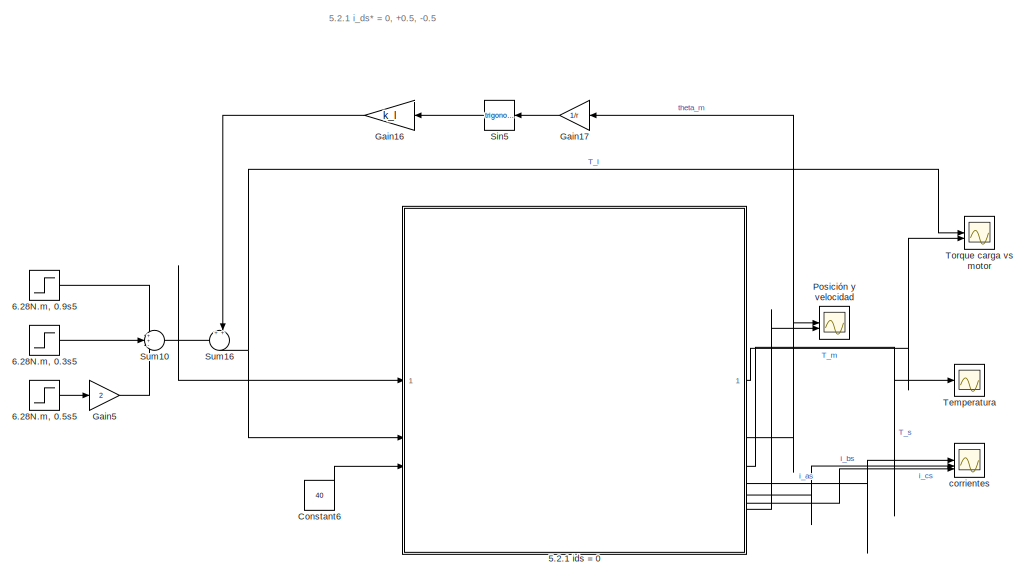
[diagram: root canvas - part 1/4, left side, full height]
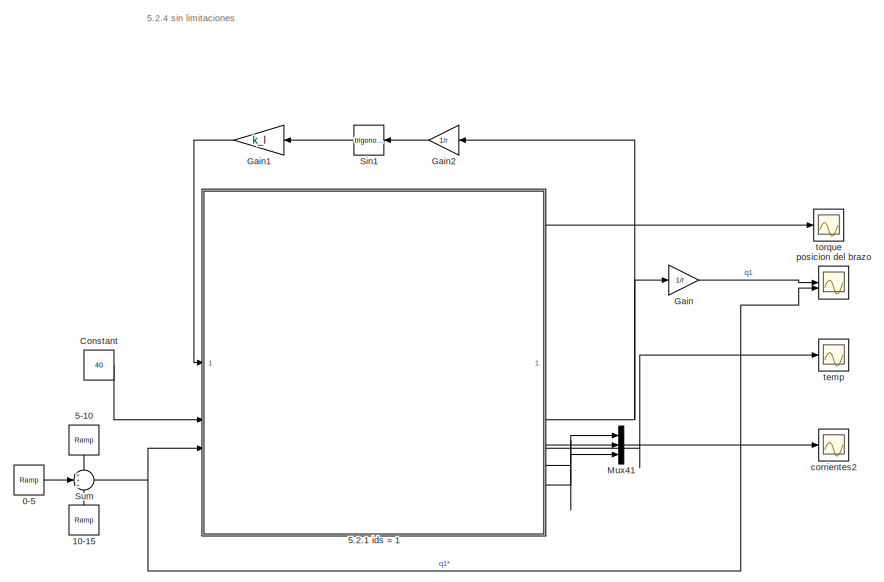
[diagram: root canvas - part 2/4, center side, full height]
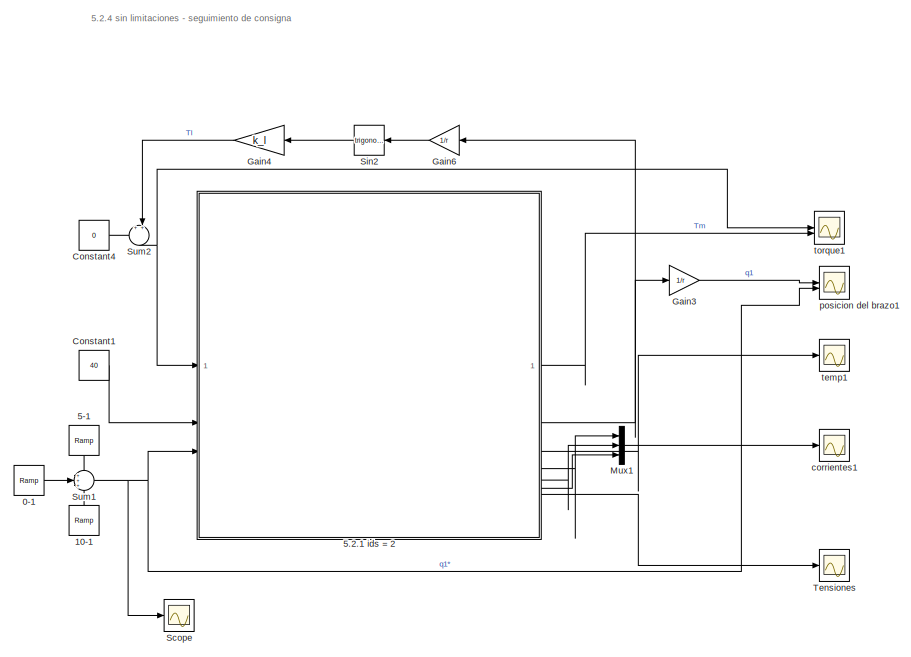
[diagram: root canvas - part 3/4, right side, full height]
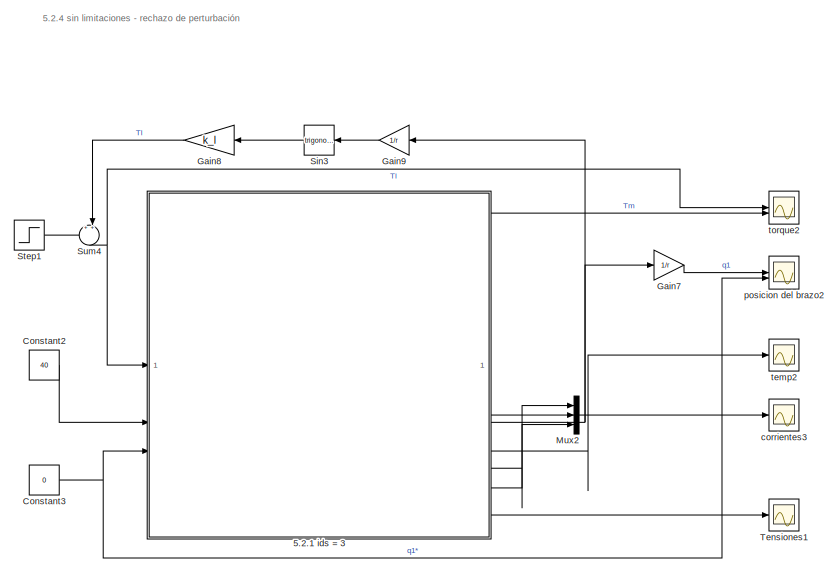
[diagram: root canvas - part 4/4, right side, full height]
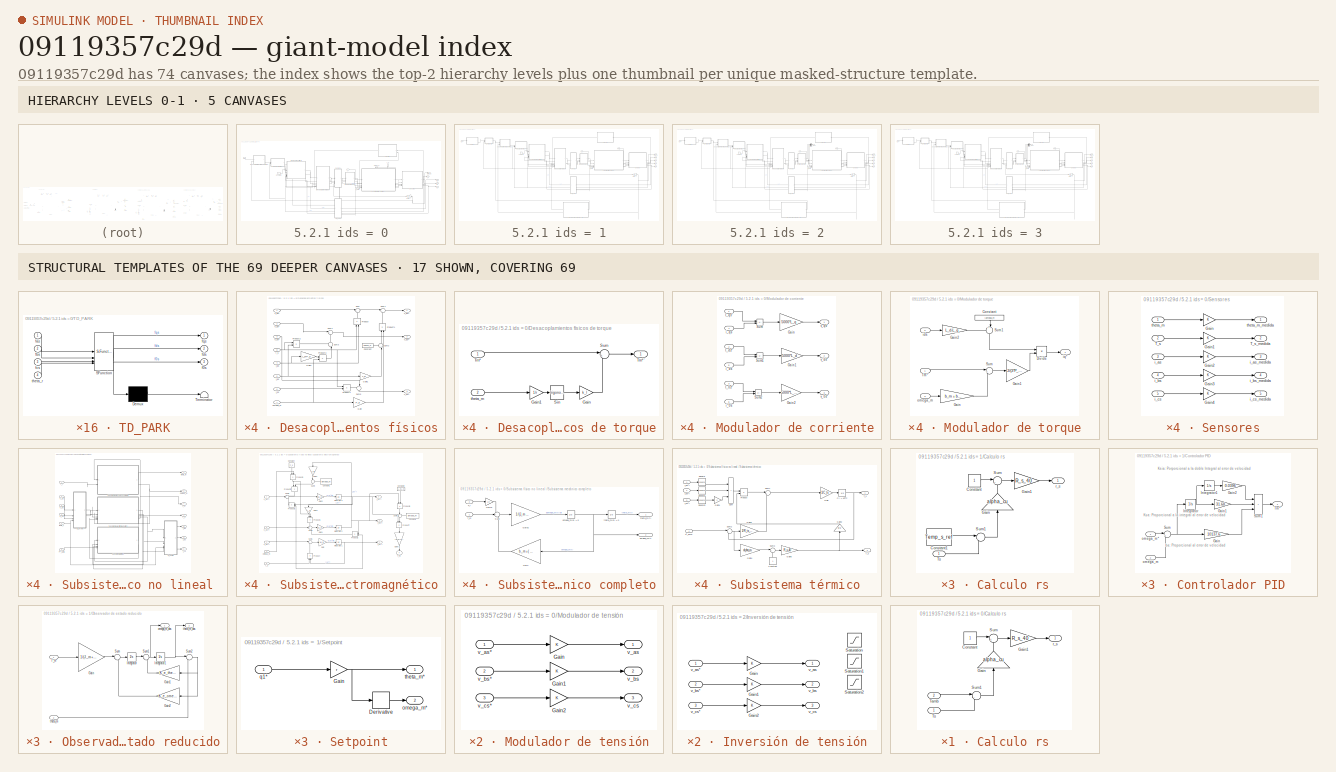
[diagram: thumbnail index - top-2 hierarchy levels (5 canvases) + 17 structural-template representatives of the remaining 69 canvases]
MODEL slx_09119357c29d
KIND model
CONFIG AbsTol = auto
CONFIG EnableMultiTasking = off
CONFIG FixedStep = auto
CONFIG InitFcn = parametros\n
CONFIG MaxStep = 1e-4
CONFIG MinStep = auto
CONFIG RelTol = 1e-3
CONFIG SampleTimeConstraint = Unconstrained
CONFIG SolverName = ode15s
CONFIG StartTime = 0.0
CONFIG StopTime = 15
BLOCK [Reference] 0-1  REF=simulink/Sources/Ramp
  Commented = on
  SourceBlock = simulink/Sources/Ramp
  SourceType = Ramp
BLOCK [Reference] 0-5  REF=simulink/Sources/Ramp
  Commented = on
  SourceBlock = simulink/Sources/Ramp
  SourceType = Ramp
BLOCK [Reference] 10-1  REF=simulink/Sources/Ramp
  Commented = on
  NameLocation = right
  SourceBlock = simulink/Sources/Ramp
  SourceType = Ramp
BLOCK [Reference] 10-15  REF=simulink/Sources/Ramp
  Commented = on
  NameLocation = right
  SourceBlock = simulink/Sources/Ramp
  SourceType = Ramp
BLOCK [Reference] 5-1  REF=simulink/Sources/Ramp
  Commented = on
  NameLocation = left
  SourceBlock = simulink/Sources/Ramp
  SourceType = Ramp
BLOCK [Reference] 5-10  REF=simulink/Sources/Ramp
  Commented = on
  NameLocation = left
  SourceBlock = simulink/Sources/Ramp
  SourceType = Ramp
BLOCK [SubSystem] 5.2.1 ids = 0
  Commented = on
BLOCK [SubSystem] 5.2.1 ids = 0/Calculo rs
  NameLocation = top
BLOCK [Constant] 5.2.1 ids = 0/Calculo rs/Constant
BLOCK [Gain] 5.2.1 ids = 0/Calculo rs/Gain
  Gain = alpha_cu
  NameLocation = right
BLOCK [Gain] 5.2.1 ids = 0/Calculo rs/Gain1
  Gain = R_s_40
BLOCK [Sum] 5.2.1 ids = 0/Calculo rs/Sum
  Inputs = |++
BLOCK [Sum] 5.2.1 ids = 0/Calculo rs/Sum1
  Inputs = |-+
BLOCK [Inport] 5.2.1 ids = 0/Calculo rs/Tamb
  Port = 2
BLOCK [Inport] 5.2.1 ids = 0/Calculo rs/Ts
BLOCK [Outport] 5.2.1 ids = 0/Calculo rs/r_s
BLOCK [Constant] 5.2.1 ids = 0/Constant5
  Value = 0
BLOCK [SubSystem] 5.2.1 ids = 0/Desacoplamientos físicos
BLOCK [SubSystem] 5.2.1 ids = 0/Desacoplamientos físicos de torque
BLOCK [Gain] 5.2.1 ids = 0/Desacoplamientos físicos de torque/Gain
  Gain = k_l
BLOCK [Gain] 5.2.1 ids = 0/Desacoplamientos físicos de torque/Gain1
  Gain = 1/r
BLOCK [Trigonometry] 5.2.1 ids = 0/Desacoplamientos físicos de torque/Sin
BLOCK [Sum] 5.2.1 ids = 0/Desacoplamientos físicos de torque/Sum
  Inputs = |++
BLOCK [Inport] 5.2.1 ids = 0/Desacoplamientos físicos de torque/Tm*
BLOCK [Outport] 5.2.1 ids = 0/Desacoplamientos físicos de torque/Tm*'
BLOCK [Inport] 5.2.1 ids = 0/Desacoplamientos físicos de torque/theta_m
  Port = 2
BLOCK [Constant] 5.2.1 ids = 0/Desacoplamientos físicos/Constant
  Value = lambda_m
BLOCK [Gain] 5.2.1 ids = 0/Desacoplamientos físicos/Gain
  Gain = P_p
BLOCK [Gain] 5.2.1 ids = 0/Desacoplamientos físicos/Gain1
  Gain = L_d
BLOCK [Gain] 5.2.1 ids = 0/Desacoplamientos físicos/Gain2
  Gain = L_q*P_p
BLOCK [Product] 5.2.1 ids = 0/Desacoplamientos físicos/Product
  NameLocation = right
BLOCK [Product] 5.2.1 ids = 0/Desacoplamientos físicos/Product1
  NameLocation = right
BLOCK [Product] 5.2.1 ids = 0/Desacoplamientos físicos/Product2
BLOCK [Product] 5.2.1 ids = 0/Desacoplamientos físicos/Product3
BLOCK [Product] 5.2.1 ids = 0/Desacoplamientos físicos/Product4
BLOCK [Sum] 5.2.1 ids = 0/Desacoplamientos físicos/Sum
  Inputs = |++
BLOCK [Sum] 5.2.1 ids = 0/Desacoplamientos físicos/Sum1
  Inputs = |++
BLOCK [Sum] 5.2.1 ids = 0/Desacoplamientos físicos/Sum2
  Inputs = ++|
  NameLocation = right
BLOCK [Sum] 5.2.1 ids = 0/Desacoplamientos físicos/Sum3
  Inputs = +-|
  NameLocation = right
BLOCK [Sum] 5.2.1 ids = 0/Desacoplamientos físicos/Sum4
  Inputs = |++
BLOCK [Sum] 5.2.1 ids = 0/Desacoplamientos físicos/Sum5
  Inputs = ++|
  NameLocation = left
BLOCK [Inport] 5.2.1 ids = 0/Desacoplamientos físicos/i_0s
  Port = 6
BLOCK [Inport] 5.2.1 ids = 0/Desacoplamientos físicos/i_ds
  Port = 5
BLOCK [Inport] 5.2.1 ids = 0/Desacoplamientos físicos/i_qs
  Port = 4
BLOCK [Inport] 5.2.1 ids = 0/Desacoplamientos físicos/omega_m
  Port = 7
BLOCK [Inport] 5.2.1 ids = 0/Desacoplamientos físicos/r_s
  Port = 8
BLOCK [Inport] 5.2.1 ids = 0/Desacoplamientos físicos/v_0s*
  Port = 3
BLOCK [Outport] 5.2.1 ids = 0/Desacoplamientos físicos/v_0s*'
  Port = 3
BLOCK [Inport] 5.2.1 ids = 0/Desacoplamientos físicos/v_ds*
  Port = 2
BLOCK [Outport] 5.2.1 ids = 0/Desacoplamientos físicos/v_ds*'
  Port = 2
BLOCK [Inport] 5.2.1 ids = 0/Desacoplamientos físicos/v_qs*
BLOCK [Outport] 5.2.1 ids = 0/Desacoplamientos físicos/v_qs*'
BLOCK [Gain] 5.2.1 ids = 0/Gain5
  Gain = P_p
  NameLocation = top
BLOCK [SubSystem] 5.2.1 ids = 0/Modulador de corriente
BLOCK [Gain] 5.2.1 ids = 0/Modulador de corriente/Gain
  Gain = 5000*L_q
BLOCK [Gain] 5.2.1 ids = 0/Modulador de corriente/Gain1
  Gain = 5000*L_d
BLOCK [Gain] 5.2.1 ids = 0/Modulador de corriente/Gain2
  Gain = 5000*L_ls
BLOCK [Inport] 5.2.1 ids = 0/Modulador de corriente/I_0s*
  Port = 3
BLOCK [Inport] 5.2.1 ids = 0/Modulador de corriente/I_ds*
  Port = 2
BLOCK [Inport] 5.2.1 ids = 0/Modulador de corriente/I_qs*
BLOCK [Sum] 5.2.1 ids = 0/Modulador de corriente/Sum
  IconShape = rectangular
  Inputs = +-
BLOCK [Sum] 5.2.1 ids = 0/Modulador de corriente/Sum1
  IconShape = rectangular
  Inputs = +-
BLOCK [Sum] 5.2.1 ids = 0/Modulador de corriente/Sum2
  IconShape = rectangular
  Inputs = +-
BLOCK [Inport] 5.2.1 ids = 0/Modulador de corriente/i_0s
  Port = 6
BLOCK [Inport] 5.2.1 ids = 0/Modulador de corriente/i_ds
  Port = 5
BLOCK [Inport] 5.2.1 ids = 0/Modulador de corriente/i_qs
  Port = 4
BLOCK [Outport] 5.2.1 ids = 0/Modulador de corriente/v_0s*
  Port = 3
BLOCK [Outport] 5.2.1 ids = 0/Modulador de corriente/v_ds*
  Port = 2
BLOCK [Outport] 5.2.1 ids = 0/Modulador de corriente/v_qs*
BLOCK [SubSystem] 5.2.1 ids = 0/Modulador de tensión
BLOCK [Gain] 5.2.1 ids = 0/Modulador de tensión/Gain
BLOCK [Gain] 5.2.1 ids = 0/Modulador de tensión/Gain1
BLOCK [Gain] 5.2.1 ids = 0/Modulador de tensión/Gain2
BLOCK [Outport] 5.2.1 ids = 0/Modulador de tensión/v_as
BLOCK [Inport] 5.2.1 ids = 0/Modulador de tensión/v_as*
BLOCK [Outport] 5.2.1 ids = 0/Modulador de tensión/v_bs
  Port = 2
BLOCK [Inport] 5.2.1 ids = 0/Modulador de tensión/v_bs*
  Port = 2
BLOCK [Outport] 5.2.1 ids = 0/Modulador de tensión/v_cs
  Port = 3
BLOCK [Inport] 5.2.1 ids = 0/Modulador de tensión/v_cs*
  Port = 3
BLOCK [SubSystem] 5.2.1 ids = 0/Modulador de torque
BLOCK [Constant] 5.2.1 ids = 0/Modulador de torque/Constant
  NameLocation = left
  Value = lambda_m
BLOCK [Product] 5.2.1 ids = 0/Modulador de torque/Divide
  Inputs = /*
BLOCK [Gain] 5.2.1 ids = 0/Modulador de torque/Gain
  Gain = b_m + b_l/r^2
BLOCK [Gain] 5.2.1 ids = 0/Modulador de torque/Gain1
  Gain = 2/(3*P_p)
BLOCK [Gain] 5.2.1 ids = 0/Modulador de torque/Gain2
  Gain = L_d-L_q
BLOCK [Sum] 5.2.1 ids = 0/Modulador de torque/Sum
  Inputs = |++
BLOCK [Sum] 5.2.1 ids = 0/Modulador de torque/Sum1
  Inputs = ++|
  NameLocation = right
BLOCK [Inport] 5.2.1 ids = 0/Modulador de torque/Tm*
BLOCK [Inport] 5.2.1 ids = 0/Modulador de torque/ids
  Port = 2
BLOCK [Outport] 5.2.1 ids = 0/Modulador de torque/iq*
BLOCK [Inport] 5.2.1 ids = 0/Modulador de torque/omega_m
  Port = 3
BLOCK [SubSystem] 5.2.1 ids = 0/Sensores
BLOCK [Gain] 5.2.1 ids = 0/Sensores/Gain
BLOCK [Gain] 5.2.1 ids = 0/Sensores/Gain1
BLOCK [Gain] 5.2.1 ids = 0/Sensores/Gain2
BLOCK [Gain] 5.2.1 ids = 0/Sensores/Gain3
BLOCK [Gain] 5.2.1 ids = 0/Sensores/Gain4
BLOCK [Inport] 5.2.1 ids = 0/Sensores/T_s
  Port = 2
BLOCK [Outport] 5.2.1 ids = 0/Sensores/T_s_medida
  Port = 2
BLOCK [Inport] 5.2.1 ids = 0/Sensores/i_as
  Port = 3
BLOCK [Outport] 5.2.1 ids = 0/Sensores/i_as_medida
  Port = 3
BLOCK [Inport] 5.2.1 ids = 0/Sensores/i_bs
  Port = 4
BLOCK [Outport] 5.2.1 ids = 0/Sensores/i_bs_medida
  Port = 4
BLOCK [Inport] 5.2.1 ids = 0/Sensores/i_cs
  Port = 5
BLOCK [Outport] 5.2.1 ids = 0/Sensores/i_cs_medida
  Port = 5
BLOCK [Inport] 5.2.1 ids = 0/Sensores/theta_m
BLOCK [Outport] 5.2.1 ids = 0/Sensores/theta_m_medida
BLOCK [SubSystem] 5.2.1 ids = 0/Subsistema físico no lineal 
  PortSchema = {"entries":[{"content":{"sides":[{"content":{"connectorIds":["In1","In2","In3","In4","In5","In6"]},"type":"ConnectorPlacement.EquallySpacedRectSide","uuid":"df16c937-5b0d-437b-9581-4e7e4443d731"},{"content":{"connectorIds":["Out1","Out2","Out3","Out4","Out5"],"side":"RIGHT"},"type":"ConnectorPlacement.EquallySpacedRectSide","uuid":"58799b56-1bb2-4861-ad63-3fa3f8181ad5"},{"content":{"connectorIds":...<+311ch>  <repeated x4 — deduplicated; at blocks: Subsistema físico no lineal>
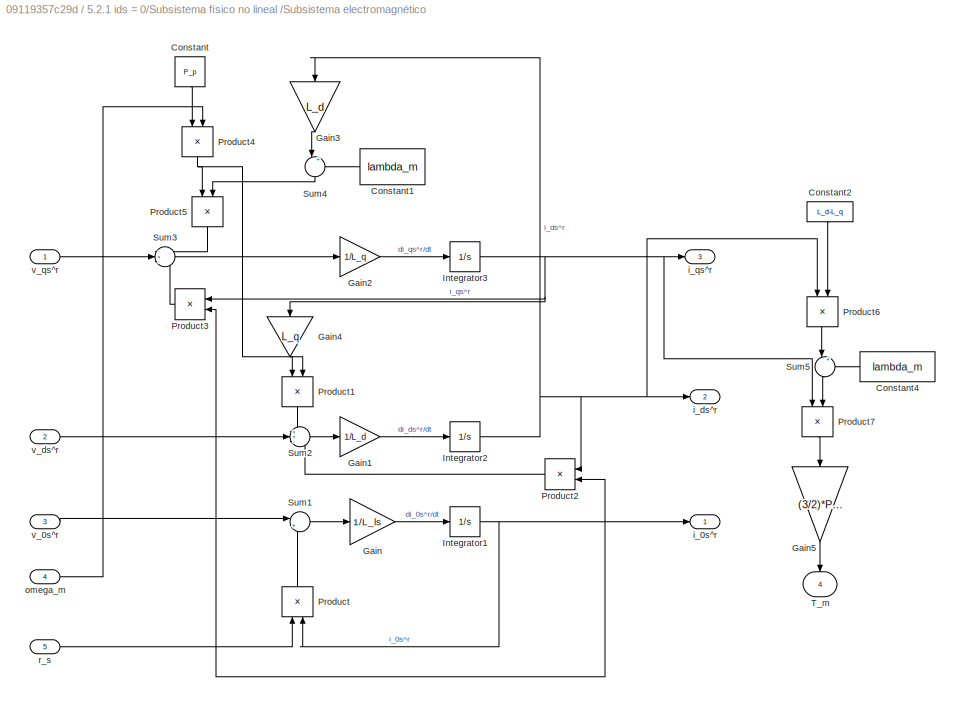
BLOCK [SubSystem] 5.2.1 ids = 0/Subsistema físico no lineal /Subsistema electromagnético
BLOCK [Constant] 5.2.1 ids = 0/Subsistema físico no lineal /Subsistema electromagnético/Constant
  NameLocation = left
  Value = P_p
BLOCK [Constant] 5.2.1 ids = 0/Subsistema físico no lineal /Subsistema electromagnético/Constant1
  NameLocation = top
  Value = lambda_m
BLOCK [Constant] 5.2.1 ids = 0/Subsistema físico no lineal /Subsistema electromagnético/Constant2
  NameLocation = left
  Value = L_d-L_q
BLOCK [Constant] 5.2.1 ids = 0/Subsistema físico no lineal /Subsistema electromagnético/Constant4
  NameLocation = top
  Value = lambda_m
BLOCK [Gain] 5.2.1 ids = 0/Subsistema físico no lineal /Subsistema electromagnético/Gain
  Gain = 1/L_ls
BLOCK [Gain] 5.2.1 ids = 0/Subsistema físico no lineal /Subsistema electromagnético/Gain1
  Gain = 1/L_d
BLOCK [Gain] 5.2.1 ids = 0/Subsistema físico no lineal /Subsistema electromagnético/Gain2
  Gain = 1/L_q
BLOCK [Gain] 5.2.1 ids = 0/Subsistema físico no lineal /Subsistema electromagnético/Gain3
  Gain = L_d
  NameLocation = left
BLOCK [Gain] 5.2.1 ids = 0/Subsistema físico no lineal /Subsistema electromagnético/Gain4
  Gain = L_q
  NameLocation = left
BLOCK [Gain] 5.2.1 ids = 0/Subsistema físico no lineal /Subsistema electromagnético/Gain5
  Gain = (3/2)*P_p
  NameLocation = left
BLOCK [Integrator] 5.2.1 ids = 0/Subsistema físico no lineal /Subsistema electromagnético/Integrator1
BLOCK [Integrator] 5.2.1 ids = 0/Subsistema físico no lineal /Subsistema electromagnético/Integrator2
BLOCK [Integrator] 5.2.1 ids = 0/Subsistema físico no lineal /Subsistema electromagnético/Integrator3
BLOCK [Product] 5.2.1 ids = 0/Subsistema físico no lineal /Subsistema electromagnético/Product
  NameLocation = right
BLOCK [Product] 5.2.1 ids = 0/Subsistema físico no lineal /Subsistema electromagnético/Product1
  NameLocation = left
BLOCK [Product] 5.2.1 ids = 0/Subsistema físico no lineal /Subsistema electromagnético/Product2
  NameLocation = top
BLOCK [Product] 5.2.1 ids = 0/Subsistema físico no lineal /Subsistema electromagnético/Product3
  NameLocation = top
BLOCK [Product] 5.2.1 ids = 0/Subsistema físico no lineal /Subsistema electromagnético/Product4
  NameLocation = left
BLOCK [Product] 5.2.1 ids = 0/Subsistema físico no lineal /Subsistema electromagnético/Product5
  NameLocation = left
BLOCK [Product] 5.2.1 ids = 0/Subsistema físico no lineal /Subsistema electromagnético/Product6
  NameLocation = left
BLOCK [Product] 5.2.1 ids = 0/Subsistema físico no lineal /Subsistema electromagnético/Product7
  NameLocation = left
BLOCK [Sum] 5.2.1 ids = 0/Subsistema físico no lineal /Subsistema electromagnético/Sum1
  Inputs = |+-
BLOCK [Sum] 5.2.1 ids = 0/Subsistema físico no lineal /Subsistema electromagnético/Sum2
  Inputs = ++-
BLOCK [Sum] 5.2.1 ids = 0/Subsistema físico no lineal /Subsistema electromagnético/Sum3
  Inputs = -+-
BLOCK [Sum] 5.2.1 ids = 0/Subsistema físico no lineal /Subsistema electromagnético/Sum4
  Inputs = |++
  NameLocation = left
BLOCK [Sum] 5.2.1 ids = 0/Subsistema físico no lineal /Subsistema electromagnético/Sum5
  Inputs = |++
  NameLocation = left
BLOCK [Outport] 5.2.1 ids = 0/Subsistema físico no lineal /Subsistema electromagnético/T_m
  NameLocation = left
  Port = 4
BLOCK [Outport] 5.2.1 ids = 0/Subsistema físico no lineal /Subsistema electromagnético/i_0s^r
BLOCK [Outport] 5.2.1 ids = 0/Subsistema físico no lineal /Subsistema electromagnético/i_ds^r
  Port = 2
BLOCK [Outport] 5.2.1 ids = 0/Subsistema físico no lineal /Subsistema electromagnético/i_qs^r
  Port = 3
BLOCK [Inport] 5.2.1 ids = 0/Subsistema físico no lineal /Subsistema electromagnético/omega_m
  Port = 4
BLOCK [Inport] 5.2.1 ids = 0/Subsistema físico no lineal /Subsistema electromagnético/r_s
  Port = 5
BLOCK [Inport] 5.2.1 ids = 0/Subsistema físico no lineal /Subsistema electromagnético/v_0s^r
  Port = 3
BLOCK [Inport] 5.2.1 ids = 0/Subsistema físico no lineal /Subsistema electromagnético/v_ds^r
  Port = 2
BLOCK [Inport] 5.2.1 ids = 0/Subsistema físico no lineal /Subsistema electromagnético/v_qs^r
BLOCK [SubSystem] 5.2.1 ids = 0/Subsistema físico no lineal /Subsistema mecánico completo
BLOCK [Gain] 5.2.1 ids = 0/Subsistema físico no lineal /Subsistema mecánico completo/Gain
  Gain = b_m +( b_l / (r^2))
  NameLocation = top
BLOCK [Gain] 5.2.1 ids = 0/Subsistema físico no lineal /Subsistema mecánico completo/Gain1
  Gain = 1/r
BLOCK [Gain] 5.2.1 ids = 0/Subsistema físico no lineal /Subsistema mecánico completo/Gain2
  Gain = 1/(J_m + J_l / (r^2))
BLOCK [Sum] 5.2.1 ids = 0/Subsistema físico no lineal /Subsistema mecánico completo/Sum
  Inputs = -+-
BLOCK [Inport] 5.2.1 ids = 0/Subsistema físico no lineal /Subsistema mecánico completo/T_l
  Port = 2
BLOCK [Inport] 5.2.1 ids = 0/Subsistema físico no lineal /Subsistema mecánico completo/T_m
BLOCK [Integrator] 5.2.1 ids = 0/Subsistema físico no lineal /Subsistema mecánico completo/omega_m(0) = 0
BLOCK [Outport] 5.2.1 ids = 0/Subsistema físico no lineal /Subsistema mecánico completo/omega_m(t)
  Port = 2
BLOCK [Integrator] 5.2.1 ids = 0/Subsistema físico no lineal /Subsistema mecánico completo/theta_m(0) = 0
BLOCK [Outport] 5.2.1 ids = 0/Subsistema físico no lineal /Subsistema mecánico completo/theta_m(t)
BLOCK [SubSystem] 5.2.1 ids = 0/Subsistema físico no lineal /Subsistema térmico
BLOCK [Integrator] 5.2.1 ids = 0/Subsistema físico no lineal /Subsistema térmico/CI = 40ºC
  InitialCondition = 40
BLOCK [Constant] 5.2.1 ids = 0/Subsistema físico no lineal /Subsistema térmico/Constant
  NameLocation = right
BLOCK [Gain] 5.2.1 ids = 0/Subsistema físico no lineal /Subsistema térmico/Gain
  Gain = 1/C_ts
BLOCK [Gain] 5.2.1 ids = 0/Subsistema físico no lineal /Subsistema térmico/Gain1
  Gain = 2
BLOCK [Gain] 5.2.1 ids = 0/Subsistema físico no lineal /Subsistema térmico/Gain2
  Gain = 3/2
  NameLocation = right
BLOCK [Gain] 5.2.1 ids = 0/Subsistema físico no lineal /Subsistema térmico/Gain3
  Gain = 1/R_ts_amb
BLOCK [Gain] 5.2.1 ids = 0/Subsistema físico no lineal /Subsistema térmico/Gain4
  Gain = alpha_cu
BLOCK [Gain] 5.2.1 ids = 0/Subsistema físico no lineal /Subsistema térmico/Gain5
  Gain = R_s_40
BLOCK [Product] 5.2.1 ids = 0/Subsistema físico no lineal /Subsistema térmico/Product
BLOCK [Math] 5.2.1 ids = 0/Subsistema físico no lineal /Subsistema térmico/Square
  Operator = square
BLOCK [Math] 5.2.1 ids = 0/Subsistema físico no lineal /Subsistema térmico/Square1
  Operator = square
BLOCK [Math] 5.2.1 ids = 0/Subsistema físico no lineal /Subsistema térmico/Square2
  Operator = square
BLOCK [Sum] 5.2.1 ids = 0/Subsistema físico no lineal /Subsistema térmico/Sum
  IconShape = rectangular
  Inputs = +++
BLOCK [Sum] 5.2.1 ids = 0/Subsistema físico no lineal /Subsistema térmico/Sum1
  Inputs = |+-
BLOCK [Sum] 5.2.1 ids = 0/Subsistema físico no lineal /Subsistema térmico/Sum2
  Inputs = |-+
BLOCK [Sum] 5.2.1 ids = 0/Subsistema físico no lineal /Subsistema térmico/Sum3
  Inputs = |++
BLOCK [Outport] 5.2.1 ids = 0/Subsistema físico no lineal /Subsistema térmico/T_s
BLOCK [Inport] 5.2.1 ids = 0/Subsistema físico no lineal /Subsistema térmico/Tº_amb
  Port = 4
BLOCK [Inport] 5.2.1 ids = 0/Subsistema físico no lineal /Subsistema térmico/i_0s^r
  Port = 3
BLOCK [Inport] 5.2.1 ids = 0/Subsistema físico no lineal /Subsistema térmico/i_ds^r
  Port = 2
BLOCK [Inport] 5.2.1 ids = 0/Subsistema físico no lineal /Subsistema térmico/i_qs^r
BLOCK [Outport] 5.2.1 ids = 0/Subsistema físico no lineal /Subsistema térmico/r_s
  Port = 2
BLOCK [SubSystem] 5.2.1 ids = 0/Subsistema físico no lineal /TD_PARK
  ErrorFcn = Stateflow.Translate.translate
  LibrarySourceBlock = simulink/User-Defined\nFunctions/MATLAB Function
  PermitHierarchicalResolution = ExplicitOnly
  SFBlockType = MATLAB Function
  TreatAsAtomicUnit = on
BLOCK [Demux] 5.2.1 ids = 0/Subsistema físico no lineal /TD_PARK/ Demux 
  Outputs = 1
BLOCK [S-Function] 5.2.1 ids = 0/Subsistema físico no lineal /TD_PARK/ SFunction 
  EnableBusSupport = on
  FunctionName = sf_sfun
  PortCounts = [4 4]
  SFcnIsStateOwnerBlock = off
  SFunctionDeploymentMode = off
  Tag = Stateflow S-Function 1
BLOCK [Terminator] 5.2.1 ids = 0/Subsistema físico no lineal /TD_PARK/ Terminator 
BLOCK [Outport] 5.2.1 ids = 0/Subsistema físico no lineal /TD_PARK/f0s
  Port = 3
BLOCK [Inport] 5.2.1 ids = 0/Subsistema físico no lineal /TD_PARK/fas
BLOCK [Inport] 5.2.1 ids = 0/Subsistema físico no lineal /TD_PARK/fbs
  Port = 2
BLOCK [Inport] 5.2.1 ids = 0/Subsistema físico no lineal /TD_PARK/fcs
  Port = 3
BLOCK [Outport] 5.2.1 ids = 0/Subsistema físico no lineal /TD_PARK/fds
  Port = 2
BLOCK [Outport] 5.2.1 ids = 0/Subsistema físico no lineal /TD_PARK/fqs
BLOCK [Inport] 5.2.1 ids = 0/Subsistema físico no lineal /TD_PARK/theta_r
  Port = 4
BLOCK [SubSystem] 5.2.1 ids = 0/Subsistema físico no lineal /TI_PARK
  ErrorFcn = Stateflow.Translate.translate
  LibrarySourceBlock = simulink/User-Defined\nFunctions/MATLAB Function
  PermitHierarchicalResolution = ExplicitOnly
  SFBlockType = MATLAB Function
  TreatAsAtomicUnit = on
BLOCK [Demux] 5.2.1 ids = 0/Subsistema físico no lineal /TI_PARK/ Demux 
  Outputs = 1
BLOCK [S-Function] 5.2.1 ids = 0/Subsistema físico no lineal /TI_PARK/ SFunction 
  EnableBusSupport = on
  FunctionName = sf_sfun
  PortCounts = [4 4]
  SFcnIsStateOwnerBlock = off
  SFunctionDeploymentMode = off
  Tag = Stateflow S-Function 2
BLOCK [Terminator] 5.2.1 ids = 0/Subsistema físico no lineal /TI_PARK/ Terminator 
BLOCK [Inport] 5.2.1 ids = 0/Subsistema físico no lineal /TI_PARK/f0s
  Port = 3
BLOCK [Outport] 5.2.1 ids = 0/Subsistema físico no lineal /TI_PARK/fas
BLOCK [Outport] 5.2.1 ids = 0/Subsistema físico no lineal /TI_PARK/fbs
  Port = 2
BLOCK [Outport] 5.2.1 ids = 0/Subsistema físico no lineal /TI_PARK/fcs
  Port = 3
BLOCK [Inport] 5.2.1 ids = 0/Subsistema físico no lineal /TI_PARK/fds
  Port = 2
BLOCK [Inport] 5.2.1 ids = 0/Subsistema físico no lineal /TI_PARK/fqs
BLOCK [Inport] 5.2.1 ids = 0/Subsistema físico no lineal /TI_PARK/theta_r
  Port = 4
BLOCK [Inport] 5.2.1 ids = 0/Subsistema físico no lineal /T_l
BLOCK [Outport] 5.2.1 ids = 0/Subsistema físico no lineal /T_m
  NameLocation = top
  Port = 7
BLOCK [Outport] 5.2.1 ids = 0/Subsistema físico no lineal /T_s
  NameLocation = top
  Port = 2
BLOCK [Inport] 5.2.1 ids = 0/Subsistema físico no lineal /Tº_amb
  Port = 6
BLOCK [Outport] 5.2.1 ids = 0/Subsistema físico no lineal /i_as
  Port = 3
BLOCK [Outport] 5.2.1 ids = 0/Subsistema físico no lineal /i_bs
  Port = 4
BLOCK [Outport] 5.2.1 ids = 0/Subsistema físico no lineal /i_cs
  Port = 5
BLOCK [Outport] 5.2.1 ids = 0/Subsistema físico no lineal /omega_m
  Port = 6
BLOCK [Outport] 5.2.1 ids = 0/Subsistema físico no lineal /theta_m
BLOCK [Inport] 5.2.1 ids = 0/Subsistema físico no lineal /theta_r
  Port = 5
BLOCK [Inport] 5.2.1 ids = 0/Subsistema físico no lineal /v_as
  Port = 2
BLOCK [Inport] 5.2.1 ids = 0/Subsistema físico no lineal /v_bs
  Port = 3
BLOCK [Inport] 5.2.1 ids = 0/Subsistema físico no lineal /v_cs
  Port = 4
BLOCK [SubSystem] 5.2.1 ids = 0/TD_PARK
  ErrorFcn = Stateflow.Translate.translate
  LibrarySourceBlock = simulink/User-Defined\nFunctions/MATLAB Function
  PermitHierarchicalResolution = ExplicitOnly
  SFBlockType = MATLAB Function
  TreatAsAtomicUnit = on
BLOCK [Demux] 5.2.1 ids = 0/TD_PARK/ Demux 
  Outputs = 1
BLOCK [S-Function] 5.2.1 ids = 0/TD_PARK/ SFunction 
  EnableBusSupport = on
  FunctionName = sf_sfun
  PortCounts = [4 4]
  SFcnIsStateOwnerBlock = off
  SFunctionDeploymentMode = off
  Tag = Stateflow S-Function 38
BLOCK [Terminator] 5.2.1 ids = 0/TD_PARK/ Terminator 
BLOCK [Outport] 5.2.1 ids = 0/TD_PARK/f0s
  Port = 3
BLOCK [Inport] 5.2.1 ids = 0/TD_PARK/fas
BLOCK [Inport] 5.2.1 ids = 0/TD_PARK/fbs
  Port = 2
BLOCK [Inport] 5.2.1 ids = 0/TD_PARK/fcs
  Port = 3
BLOCK [Outport] 5.2.1 ids = 0/TD_PARK/fds
  Port = 2
BLOCK [Outport] 5.2.1 ids = 0/TD_PARK/fqs
BLOCK [Inport] 5.2.1 ids = 0/TD_PARK/theta_r
  Port = 4
BLOCK [SubSystem] 5.2.1 ids = 0/TI_PARK1
  ErrorFcn = Stateflow.Translate.translate
  LibrarySourceBlock = simulink/User-Defined\nFunctions/MATLAB Function
  PermitHierarchicalResolution = ExplicitOnly
  SFBlockType = MATLAB Function
  TreatAsAtomicUnit = on
BLOCK [Demux] 5.2.1 ids = 0/TI_PARK1/ Demux 
  Outputs = 1
BLOCK [S-Function] 5.2.1 ids = 0/TI_PARK1/ SFunction 
  EnableBusSupport = on
  FunctionName = sf_sfun
  PortCounts = [4 4]
  SFcnIsStateOwnerBlock = off
  SFunctionDeploymentMode = off
  Tag = Stateflow S-Function 37
BLOCK [Terminator] 5.2.1 ids = 0/TI_PARK1/ Terminator 
BLOCK [Inport] 5.2.1 ids = 0/TI_PARK1/f0s
  Port = 3
BLOCK [Outport] 5.2.1 ids = 0/TI_PARK1/fas
BLOCK [Outport] 5.2.1 ids = 0/TI_PARK1/fbs
  Port = 2
BLOCK [Outport] 5.2.1 ids = 0/TI_PARK1/fcs
  Port = 3
BLOCK [Inport] 5.2.1 ids = 0/TI_PARK1/fds
  Port = 2
BLOCK [Inport] 5.2.1 ids = 0/TI_PARK1/fqs
BLOCK [Inport] 5.2.1 ids = 0/TI_PARK1/theta_r
  Port = 4
BLOCK [Inport] 5.2.1 ids = 0/T_l
  Port = 2
BLOCK [Outport] 5.2.1 ids = 0/T_m
  NameLocation = right
BLOCK [Outport] 5.2.1 ids = 0/T_s
  Port = 3
BLOCK [Inport] 5.2.1 ids = 0/Tm*
BLOCK [Inport] 5.2.1 ids = 0/Tº_amb
  Port = 3
BLOCK [Outport] 5.2.1 ids = 0/fas
  Port = 4
BLOCK [Outport] 5.2.1 ids = 0/fbs
  Port = 5
BLOCK [Outport] 5.2.1 ids = 0/fcs
  Port = 6
BLOCK [Outport] 5.2.1 ids = 0/omega_m
  Port = 7
BLOCK [Outport] 5.2.1 ids = 0/theta_m 
  Port = 2
BLOCK [SubSystem] 5.2.1 ids = 1
  Commented = on
BLOCK [SubSystem] 5.2.1 ids = 1/Calculo rs
  NameLocation = top
BLOCK [Constant] 5.2.1 ids = 1/Calculo rs/Constant
BLOCK [Constant] 5.2.1 ids = 1/Calculo rs/Constant1
  Value = Temp_s_ref
BLOCK [Gain] 5.2.1 ids = 1/Calculo rs/Gain
  Gain = alpha_cu
  NameLocation = right
BLOCK [Gain] 5.2.1 ids = 1/Calculo rs/Gain1
  Gain = R_s_40
BLOCK [Sum] 5.2.1 ids = 1/Calculo rs/Sum
  Inputs = |++
BLOCK [Sum] 5.2.1 ids = 1/Calculo rs/Sum1
  Inputs = |-+
BLOCK [Inport] 5.2.1 ids = 1/Calculo rs/Ts
BLOCK [Outport] 5.2.1 ids = 1/Calculo rs/r_s
BLOCK [Constant] 5.2.1 ids = 1/Constant5
  Value = 0
BLOCK [SubSystem] 5.2.1 ids = 1/Controlador PID
BLOCK [Gain] 5.2.1 ids = 1/Controlador PID/Gain
  Gain = 10137.6
BLOCK [Gain] 5.2.1 ids = 1/Controlador PID/Gain1
  Gain = 31.68
BLOCK [Gain] 5.2.1 ids = 1/Controlador PID/Gain2
  Gain = 0.0396
BLOCK [Integrator] 5.2.1 ids = 1/Controlador PID/Integrator
BLOCK [Integrator] 5.2.1 ids = 1/Controlador PID/Integrator1
BLOCK [Sum] 5.2.1 ids = 1/Controlador PID/Sum
  Inputs = |+-
BLOCK [Sum] 5.2.1 ids = 1/Controlador PID/Sum1
  IconShape = rectangular
  Inputs = +++
BLOCK [Outport] 5.2.1 ids = 1/Controlador PID/Tm*
BLOCK [Inport] 5.2.1 ids = 1/Controlador PID/omega_m
  Port = 2
BLOCK [Inport] 5.2.1 ids = 1/Controlador PID/omega_m*
BLOCK [SubSystem] 5.2.1 ids = 1/Desacoplamientos físicos
BLOCK [SubSystem] 5.2.1 ids = 1/Desacoplamientos físicos de torque
BLOCK [Gain] 5.2.1 ids = 1/Desacoplamientos físicos de torque/Gain
  Gain = k_l
BLOCK [Gain] 5.2.1 ids = 1/Desacoplamientos físicos de torque/Gain1
  Gain = 1/r
BLOCK [Trigonometry] 5.2.1 ids = 1/Desacoplamientos físicos de torque/Sin
BLOCK [Sum] 5.2.1 ids = 1/Desacoplamientos físicos de torque/Sum
  Inputs = |++
BLOCK [Inport] 5.2.1 ids = 1/Desacoplamientos físicos de torque/Tm*
BLOCK [Outport] 5.2.1 ids = 1/Desacoplamientos físicos de torque/Tm*'
BLOCK [Inport] 5.2.1 ids = 1/Desacoplamientos físicos de torque/theta_m
  Port = 2
BLOCK [Constant] 5.2.1 ids = 1/Desacoplamientos físicos/Constant
  Value = lambda_m
BLOCK [Gain] 5.2.1 ids = 1/Desacoplamientos físicos/Gain
  Gain = P_p
BLOCK [Gain] 5.2.1 ids = 1/Desacoplamientos físicos/Gain1
  Gain = L_d
BLOCK [Gain] 5.2.1 ids = 1/Desacoplamientos físicos/Gain2
  Gain = L_q*P_p
BLOCK [Product] 5.2.1 ids = 1/Desacoplamientos físicos/Product
  NameLocation = right
BLOCK [Product] 5.2.1 ids = 1/Desacoplamientos físicos/Product1
  NameLocation = right
BLOCK [Product] 5.2.1 ids = 1/Desacoplamientos físicos/Product2
BLOCK [Product] 5.2.1 ids = 1/Desacoplamientos físicos/Product3
BLOCK [Product] 5.2.1 ids = 1/Desacoplamientos físicos/Product4
BLOCK [Sum] 5.2.1 ids = 1/Desacoplamientos físicos/Sum
  Inputs = |++
BLOCK [Sum] 5.2.1 ids = 1/Desacoplamientos físicos/Sum1
  Inputs = |++
BLOCK [Sum] 5.2.1 ids = 1/Desacoplamientos físicos/Sum2
  Inputs = ++|
  NameLocation = right
BLOCK [Sum] 5.2.1 ids = 1/Desacoplamientos físicos/Sum3
  Inputs = +-|
  NameLocation = right
BLOCK [Sum] 5.2.1 ids = 1/Desacoplamientos físicos/Sum4
  Inputs = |++
BLOCK [Sum] 5.2.1 ids = 1/Desacoplamientos físicos/Sum5
  Inputs = ++|
  NameLocation = left
BLOCK [Inport] 5.2.1 ids = 1/Desacoplamientos físicos/i_0s
  Port = 6
BLOCK [Inport] 5.2.1 ids = 1/Desacoplamientos físicos/i_ds
  Port = 5
BLOCK [Inport] 5.2.1 ids = 1/Desacoplamientos físicos/i_qs
  Port = 4
BLOCK [Inport] 5.2.1 ids = 1/Desacoplamientos físicos/omega_m
  Port = 7
BLOCK [Inport] 5.2.1 ids = 1/Desacoplamientos físicos/r_s
  Port = 8
BLOCK [Inport] 5.2.1 ids = 1/Desacoplamientos físicos/v_0s*
  Port = 3
BLOCK [Outport] 5.2.1 ids = 1/Desacoplamientos físicos/v_0s*'
  Port = 3
BLOCK [Inport] 5.2.1 ids = 1/Desacoplamientos físicos/v_ds*
  Port = 2
BLOCK [Outport] 5.2.1 ids = 1/Desacoplamientos físicos/v_ds*'
  Port = 2
BLOCK [Inport] 5.2.1 ids = 1/Desacoplamientos físicos/v_qs*
BLOCK [Outport] 5.2.1 ids = 1/Desacoplamientos físicos/v_qs*'
BLOCK [Gain] 5.2.1 ids = 1/Gain5
  Gain = P_p
  NameLocation = top
BLOCK [SubSystem] 5.2.1 ids = 1/Modulador de corriente
BLOCK [Gain] 5.2.1 ids = 1/Modulador de corriente/Gain
  Gain = 5000*L_q
BLOCK [Gain] 5.2.1 ids = 1/Modulador de corriente/Gain1
  Gain = 5000*L_d
BLOCK [Gain] 5.2.1 ids = 1/Modulador de corriente/Gain2
  Gain = 5000*L_ls
BLOCK [Inport] 5.2.1 ids = 1/Modulador de corriente/I_0s*
  Port = 3
BLOCK [Inport] 5.2.1 ids = 1/Modulador de corriente/I_ds*
  Port = 2
BLOCK [Inport] 5.2.1 ids = 1/Modulador de corriente/I_qs*
BLOCK [Sum] 5.2.1 ids = 1/Modulador de corriente/Sum
  IconShape = rectangular
  Inputs = +-
BLOCK [Sum] 5.2.1 ids = 1/Modulador de corriente/Sum1
  IconShape = rectangular
  Inputs = +-
BLOCK [Sum] 5.2.1 ids = 1/Modulador de corriente/Sum2
  IconShape = rectangular
  Inputs = +-
BLOCK [Inport] 5.2.1 ids = 1/Modulador de corriente/i_0s
  Port = 6
BLOCK [Inport] 5.2.1 ids = 1/Modulador de corriente/i_ds
  Port = 5
BLOCK [Inport] 5.2.1 ids = 1/Modulador de corriente/i_qs
  Port = 4
BLOCK [Outport] 5.2.1 ids = 1/Modulador de corriente/v_0s*
  Port = 3
BLOCK [Outport] 5.2.1 ids = 1/Modulador de corriente/v_ds*
  Port = 2
BLOCK [Outport] 5.2.1 ids = 1/Modulador de corriente/v_qs*
BLOCK [SubSystem] 5.2.1 ids = 1/Modulador de tensión
BLOCK [Gain] 5.2.1 ids = 1/Modulador de tensión/Gain
BLOCK [Gain] 5.2.1 ids = 1/Modulador de tensión/Gain1
BLOCK [Gain] 5.2.1 ids = 1/Modulador de tensión/Gain2
BLOCK [Outport] 5.2.1 ids = 1/Modulador de tensión/v_as
BLOCK [Inport] 5.2.1 ids = 1/Modulador de tensión/v_as*
BLOCK [Outport] 5.2.1 ids = 1/Modulador de tensión/v_bs
  Port = 2
BLOCK [Inport] 5.2.1 ids = 1/Modulador de tensión/v_bs*
  Port = 2
BLOCK [Outport] 5.2.1 ids = 1/Modulador de tensión/v_cs
  Port = 3
BLOCK [Inport] 5.2.1 ids = 1/Modulador de tensión/v_cs*
  Port = 3
BLOCK [SubSystem] 5.2.1 ids = 1/Modulador de torque
BLOCK [Constant] 5.2.1 ids = 1/Modulador de torque/Constant
  NameLocation = left
  Value = lambda_m
BLOCK [Product] 5.2.1 ids = 1/Modulador de torque/Divide
  Inputs = /*
BLOCK [Gain] 5.2.1 ids = 1/Modulador de torque/Gain
  Gain = b_m + b_l/r^2
BLOCK [Gain] 5.2.1 ids = 1/Modulador de torque/Gain1
  Gain = 2/(3*P_p)
BLOCK [Gain] 5.2.1 ids = 1/Modulador de torque/Gain2
  Gain = L_d-L_q
BLOCK [Sum] 5.2.1 ids = 1/Modulador de torque/Sum
  Inputs = |++
BLOCK [Sum] 5.2.1 ids = 1/Modulador de torque/Sum1
  Inputs = ++|
  NameLocation = right
BLOCK [Inport] 5.2.1 ids = 1/Modulador de torque/Tm*
BLOCK [Inport] 5.2.1 ids = 1/Modulador de torque/ids
  Port = 2
BLOCK [Outport] 5.2.1 ids = 1/Modulador de torque/iq*
BLOCK [Inport] 5.2.1 ids = 1/Modulador de torque/omega_m
  Port = 3
BLOCK [SubSystem] 5.2.1 ids = 1/Observador de estado reducido
BLOCK [Gain] 5.2.1 ids = 1/Observador de estado reducido/Gain
  Gain = 1/(J_m+(J_l/r^2))
BLOCK [Gain] 5.2.1 ids = 1/Observador de estado reducido/Gain1
  Gain = K_e_theta
  NameLocation = top
BLOCK [Gain] 5.2.1 ids = 1/Observador de estado reducido/Gain2
  Gain = K_e_omega
  NameLocation = top
BLOCK [Integrator] 5.2.1 ids = 1/Observador de estado reducido/Integrator
BLOCK [Integrator] 5.2.1 ids = 1/Observador de estado reducido/Integrator1
BLOCK [Sum] 5.2.1 ids = 1/Observador de estado reducido/Sum
  Inputs = |++
BLOCK [Sum] 5.2.1 ids = 1/Observador de estado reducido/Sum1
  Inputs = |++
BLOCK [Sum] 5.2.1 ids = 1/Observador de estado reducido/Sum2
  Inputs = |-+
BLOCK [Inport] 5.2.1 ids = 1/Observador de estado reducido/T_m*
BLOCK [Outport] 5.2.1 ids = 1/Observador de estado reducido/omega_m_obs
BLOCK [Inport] 5.2.1 ids = 1/Observador de estado reducido/theta_m
  Port = 2
BLOCK [Outport] 5.2.1 ids = 1/Observador de estado reducido/theta_m_obs
  Port = 2
BLOCK [SubSystem] 5.2.1 ids = 1/Sensores
BLOCK [Gain] 5.2.1 ids = 1/Sensores/Gain
BLOCK [Gain] 5.2.1 ids = 1/Sensores/Gain1
BLOCK [Gain] 5.2.1 ids = 1/Sensores/Gain2
BLOCK [Gain] 5.2.1 ids = 1/Sensores/Gain3
BLOCK [Gain] 5.2.1 ids = 1/Sensores/Gain4
BLOCK [Inport] 5.2.1 ids = 1/Sensores/T_s
  Port = 2
BLOCK [Outport] 5.2.1 ids = 1/Sensores/T_s_medida
  Port = 2
BLOCK [Inport] 5.2.1 ids = 1/Sensores/i_as
  Port = 3
BLOCK [Outport] 5.2.1 ids = 1/Sensores/i_as_medida
  Port = 3
BLOCK [Inport] 5.2.1 ids = 1/Sensores/i_bs
  Port = 4
BLOCK [Outport] 5.2.1 ids = 1/Sensores/i_bs_medida
  Port = 4
BLOCK [Inport] 5.2.1 ids = 1/Sensores/i_cs
  Port = 5
BLOCK [Outport] 5.2.1 ids = 1/Sensores/i_cs_medida
  Port = 5
BLOCK [Inport] 5.2.1 ids = 1/Sensores/theta_m
BLOCK [Outport] 5.2.1 ids = 1/Sensores/theta_m_medida
BLOCK [SubSystem] 5.2.1 ids = 1/Setpoint
BLOCK [Derivative] 5.2.1 ids = 1/Setpoint/Derivative
BLOCK [Gain] 5.2.1 ids = 1/Setpoint/Gain
  Gain = r
BLOCK [Outport] 5.2.1 ids = 1/Setpoint/omega_m*
  Port = 2
BLOCK [Inport] 5.2.1 ids = 1/Setpoint/q1*
BLOCK [Outport] 5.2.1 ids = 1/Setpoint/theta_m*
BLOCK [SubSystem] 5.2.1 ids = 1/Subsistema físico no lineal 
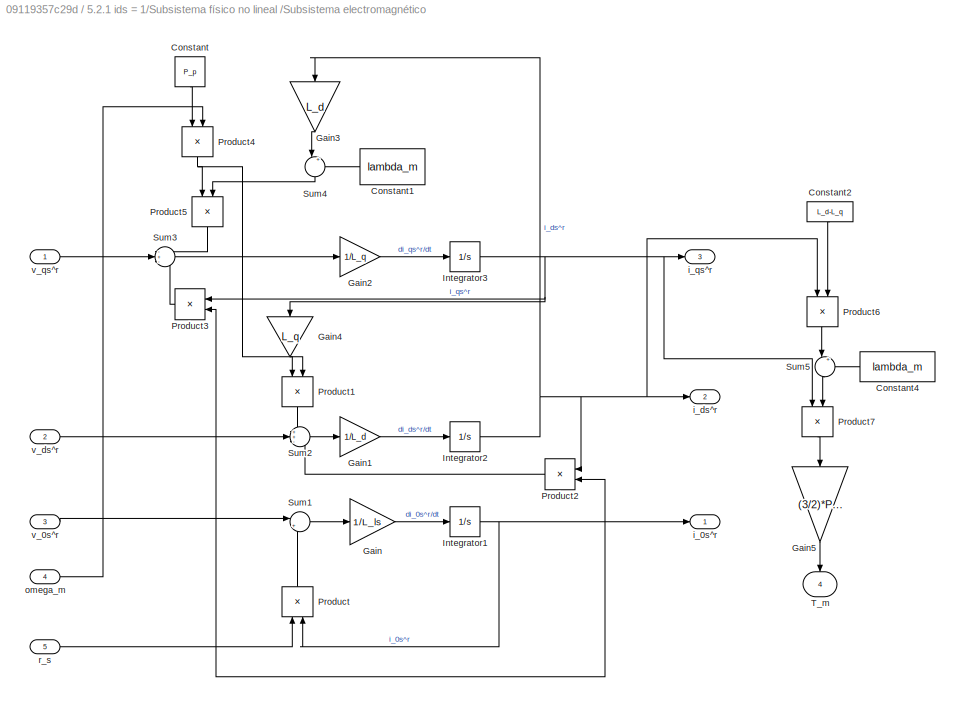
BLOCK [SubSystem] 5.2.1 ids = 1/Subsistema físico no lineal /Subsistema electromagnético
BLOCK [Constant] 5.2.1 ids = 1/Subsistema físico no lineal /Subsistema electromagnético/Constant
  NameLocation = left
  Value = P_p
BLOCK [Constant] 5.2.1 ids = 1/Subsistema físico no lineal /Subsistema electromagnético/Constant1
  NameLocation = top
  Value = lambda_m
BLOCK [Constant] 5.2.1 ids = 1/Subsistema físico no lineal /Subsistema electromagnético/Constant2
  NameLocation = left
  Value = L_d-L_q
BLOCK [Constant] 5.2.1 ids = 1/Subsistema físico no lineal /Subsistema electromagnético/Constant4
  NameLocation = top
  Value = lambda_m
BLOCK [Gain] 5.2.1 ids = 1/Subsistema físico no lineal /Subsistema electromagnético/Gain
  Gain = 1/L_ls
BLOCK [Gain] 5.2.1 ids = 1/Subsistema físico no lineal /Subsistema electromagnético/Gain1
  Gain = 1/L_d
BLOCK [Gain] 5.2.1 ids = 1/Subsistema físico no lineal /Subsistema electromagnético/Gain2
  Gain = 1/L_q
BLOCK [Gain] 5.2.1 ids = 1/Subsistema físico no lineal /Subsistema electromagnético/Gain3
  Gain = L_d
  NameLocation = left
BLOCK [Gain] 5.2.1 ids = 1/Subsistema físico no lineal /Subsistema electromagnético/Gain4
  Gain = L_q
  NameLocation = left
BLOCK [Gain] 5.2.1 ids = 1/Subsistema físico no lineal /Subsistema electromagnético/Gain5
  Gain = (3/2)*P_p
  NameLocation = left
BLOCK [Integrator] 5.2.1 ids = 1/Subsistema físico no lineal /Subsistema electromagnético/Integrator1
BLOCK [Integrator] 5.2.1 ids = 1/Subsistema físico no lineal /Subsistema electromagnético/Integrator2
BLOCK [Integrator] 5.2.1 ids = 1/Subsistema físico no lineal /Subsistema electromagnético/Integrator3
BLOCK [Product] 5.2.1 ids = 1/Subsistema físico no lineal /Subsistema electromagnético/Product
  NameLocation = right
BLOCK [Product] 5.2.1 ids = 1/Subsistema físico no lineal /Subsistema electromagnético/Product1
  NameLocation = left
BLOCK [Product] 5.2.1 ids = 1/Subsistema físico no lineal /Subsistema electromagnético/Product2
  NameLocation = top
BLOCK [Product] 5.2.1 ids = 1/Subsistema físico no lineal /Subsistema electromagnético/Product3
  NameLocation = top
BLOCK [Product] 5.2.1 ids = 1/Subsistema físico no lineal /Subsistema electromagnético/Product4
  NameLocation = left
BLOCK [Product] 5.2.1 ids = 1/Subsistema físico no lineal /Subsistema electromagnético/Product5
  NameLocation = left
BLOCK [Product] 5.2.1 ids = 1/Subsistema físico no lineal /Subsistema electromagnético/Product6
  NameLocation = left
BLOCK [Product] 5.2.1 ids = 1/Subsistema físico no lineal /Subsistema electromagnético/Product7
  NameLocation = left
BLOCK [Sum] 5.2.1 ids = 1/Subsistema físico no lineal /Subsistema electromagnético/Sum1
  Inputs = |+-
BLOCK [Sum] 5.2.1 ids = 1/Subsistema físico no lineal /Subsistema electromagnético/Sum2
  Inputs = ++-
BLOCK [Sum] 5.2.1 ids = 1/Subsistema físico no lineal /Subsistema electromagnético/Sum3
  Inputs = -+-
BLOCK [Sum] 5.2.1 ids = 1/Subsistema físico no lineal /Subsistema electromagnético/Sum4
  Inputs = |++
  NameLocation = left
BLOCK [Sum] 5.2.1 ids = 1/Subsistema físico no lineal /Subsistema electromagnético/Sum5
  Inputs = |++
  NameLocation = left
BLOCK [Outport] 5.2.1 ids = 1/Subsistema físico no lineal /Subsistema electromagnético/T_m
  NameLocation = left
  Port = 4
BLOCK [Outport] 5.2.1 ids = 1/Subsistema físico no lineal /Subsistema electromagnético/i_0s^r
BLOCK [Outport] 5.2.1 ids = 1/Subsistema físico no lineal /Subsistema electromagnético/i_ds^r
  Port = 2
BLOCK [Outport] 5.2.1 ids = 1/Subsistema físico no lineal /Subsistema electromagnético/i_qs^r
  Port = 3
BLOCK [Inport] 5.2.1 ids = 1/Subsistema físico no lineal /Subsistema electromagnético/omega_m
  Port = 4
BLOCK [Inport] 5.2.1 ids = 1/Subsistema físico no lineal /Subsistema electromagnético/r_s
  Port = 5
BLOCK [Inport] 5.2.1 ids = 1/Subsistema físico no lineal /Subsistema electromagnético/v_0s^r
  Port = 3
BLOCK [Inport] 5.2.1 ids = 1/Subsistema físico no lineal /Subsistema electromagnético/v_ds^r
  Port = 2
BLOCK [Inport] 5.2.1 ids = 1/Subsistema físico no lineal /Subsistema electromagnético/v_qs^r
BLOCK [SubSystem] 5.2.1 ids = 1/Subsistema físico no lineal /Subsistema mecánico completo
BLOCK [Gain] 5.2.1 ids = 1/Subsistema físico no lineal /Subsistema mecánico completo/Gain
  Gain = b_m +( b_l / (r^2))
  NameLocation = top
BLOCK [Gain] 5.2.1 ids = 1/Subsistema físico no lineal /Subsistema mecánico completo/Gain1
  Gain = 1/r
BLOCK [Gain] 5.2.1 ids = 1/Subsistema físico no lineal /Subsistema mecánico completo/Gain2
  Gain = 1/(J_m + J_l / (r^2))
BLOCK [Sum] 5.2.1 ids = 1/Subsistema físico no lineal /Subsistema mecánico completo/Sum
  Inputs = -+-
BLOCK [Inport] 5.2.1 ids = 1/Subsistema físico no lineal /Subsistema mecánico completo/T_l
  Port = 2
BLOCK [Inport] 5.2.1 ids = 1/Subsistema físico no lineal /Subsistema mecánico completo/T_m
BLOCK [Integrator] 5.2.1 ids = 1/Subsistema físico no lineal /Subsistema mecánico completo/omega_m(0) = 0
BLOCK [Outport] 5.2.1 ids = 1/Subsistema físico no lineal /Subsistema mecánico completo/omega_m(t)
  Port = 2
BLOCK [Integrator] 5.2.1 ids = 1/Subsistema físico no lineal /Subsistema mecánico completo/theta_m(0) = 0
BLOCK [Outport] 5.2.1 ids = 1/Subsistema físico no lineal /Subsistema mecánico completo/theta_m(t)
BLOCK [SubSystem] 5.2.1 ids = 1/Subsistema físico no lineal /Subsistema térmico
BLOCK [Integrator] 5.2.1 ids = 1/Subsistema físico no lineal /Subsistema térmico/CI = 40ºC
  InitialCondition = 40
BLOCK [Constant] 5.2.1 ids = 1/Subsistema físico no lineal /Subsistema térmico/Constant
  NameLocation = right
BLOCK [Gain] 5.2.1 ids = 1/Subsistema físico no lineal /Subsistema térmico/Gain
  Gain = 1/C_ts
BLOCK [Gain] 5.2.1 ids = 1/Subsistema físico no lineal /Subsistema térmico/Gain1
  Gain = 2
BLOCK [Gain] 5.2.1 ids = 1/Subsistema físico no lineal /Subsistema térmico/Gain2
  Gain = 3/2
  NameLocation = right
BLOCK [Gain] 5.2.1 ids = 1/Subsistema físico no lineal /Subsistema térmico/Gain3
  Gain = 1/R_ts_amb
BLOCK [Gain] 5.2.1 ids = 1/Subsistema físico no lineal /Subsistema térmico/Gain4
  Gain = alpha_cu
BLOCK [Gain] 5.2.1 ids = 1/Subsistema físico no lineal /Subsistema térmico/Gain5
  Gain = R_s_40
BLOCK [Product] 5.2.1 ids = 1/Subsistema físico no lineal /Subsistema térmico/Product
BLOCK [Math] 5.2.1 ids = 1/Subsistema físico no lineal /Subsistema térmico/Square
  Operator = square
BLOCK [Math] 5.2.1 ids = 1/Subsistema físico no lineal /Subsistema térmico/Square1
  Operator = square
BLOCK [Math] 5.2.1 ids = 1/Subsistema físico no lineal /Subsistema térmico/Square2
  Operator = square
BLOCK [Sum] 5.2.1 ids = 1/Subsistema físico no lineal /Subsistema térmico/Sum
  IconShape = rectangular
  Inputs = +++
BLOCK [Sum] 5.2.1 ids = 1/Subsistema físico no lineal /Subsistema térmico/Sum1
  Inputs = |+-
BLOCK [Sum] 5.2.1 ids = 1/Subsistema físico no lineal /Subsistema térmico/Sum2
  Inputs = |-+
BLOCK [Sum] 5.2.1 ids = 1/Subsistema físico no lineal /Subsistema térmico/Sum3
  Inputs = |++
BLOCK [Outport] 5.2.1 ids = 1/Subsistema físico no lineal /Subsistema térmico/T_s
BLOCK [Inport] 5.2.1 ids = 1/Subsistema físico no lineal /Subsistema térmico/Tº_amb
  Port = 4
BLOCK [Inport] 5.2.1 ids = 1/Subsistema físico no lineal /Subsistema térmico/i_0s^r
  Port = 3
BLOCK [Inport] 5.2.1 ids = 1/Subsistema físico no lineal /Subsistema térmico/i_ds^r
  Port = 2
BLOCK [Inport] 5.2.1 ids = 1/Subsistema físico no lineal /Subsistema térmico/i_qs^r
BLOCK [Outport] 5.2.1 ids = 1/Subsistema físico no lineal /Subsistema térmico/r_s
  Port = 2
BLOCK [SubSystem] 5.2.1 ids = 1/Subsistema físico no lineal /TD_PARK
  ErrorFcn = Stateflow.Translate.translate
  LibrarySourceBlock = simulink/User-Defined\nFunctions/MATLAB Function
  PermitHierarchicalResolution = ExplicitOnly
  SFBlockType = MATLAB Function
  TreatAsAtomicUnit = on
BLOCK [Demux] 5.2.1 ids = 1/Subsistema físico no lineal /TD_PARK/ Demux 
  Outputs = 1
BLOCK [S-Function] 5.2.1 ids = 1/Subsistema físico no lineal /TD_PARK/ SFunction 
  EnableBusSupport = on
  FunctionName = sf_sfun
  PortCounts = [4 4]
  SFcnIsStateOwnerBlock = off
  SFunctionDeploymentMode = off
  Tag = Stateflow S-Function 11
BLOCK [Terminator] 5.2.1 ids = 1/Subsistema físico no lineal /TD_PARK/ Terminator 
BLOCK [Outport] 5.2.1 ids = 1/Subsistema físico no lineal /TD_PARK/f0s
  Port = 3
BLOCK [Inport] 5.2.1 ids = 1/Subsistema físico no lineal /TD_PARK/fas
BLOCK [Inport] 5.2.1 ids = 1/Subsistema físico no lineal /TD_PARK/fbs
  Port = 2
BLOCK [Inport] 5.2.1 ids = 1/Subsistema físico no lineal /TD_PARK/fcs
  Port = 3
BLOCK [Outport] 5.2.1 ids = 1/Subsistema físico no lineal /TD_PARK/fds
  Port = 2
BLOCK [Outport] 5.2.1 ids = 1/Subsistema físico no lineal /TD_PARK/fqs
BLOCK [Inport] 5.2.1 ids = 1/Subsistema físico no lineal /TD_PARK/theta_r
  Port = 4
BLOCK [SubSystem] 5.2.1 ids = 1/Subsistema físico no lineal /TI_PARK
  ErrorFcn = Stateflow.Translate.translate
  LibrarySourceBlock = simulink/User-Defined\nFunctions/MATLAB Function
  PermitHierarchicalResolution = ExplicitOnly
  SFBlockType = MATLAB Function
  TreatAsAtomicUnit = on
BLOCK [Demux] 5.2.1 ids = 1/Subsistema físico no lineal /TI_PARK/ Demux 
  Outputs = 1
BLOCK [S-Function] 5.2.1 ids = 1/Subsistema físico no lineal /TI_PARK/ SFunction 
  EnableBusSupport = on
  FunctionName = sf_sfun
  PortCounts = [4 4]
  SFcnIsStateOwnerBlock = off
  SFunctionDeploymentMode = off
  Tag = Stateflow S-Function 12
BLOCK [Terminator] 5.2.1 ids = 1/Subsistema físico no lineal /TI_PARK/ Terminator 
BLOCK [Inport] 5.2.1 ids = 1/Subsistema físico no lineal /TI_PARK/f0s
  Port = 3
BLOCK [Outport] 5.2.1 ids = 1/Subsistema físico no lineal /TI_PARK/fas
BLOCK [Outport] 5.2.1 ids = 1/Subsistema físico no lineal /TI_PARK/fbs
  Port = 2
BLOCK [Outport] 5.2.1 ids = 1/Subsistema físico no lineal /TI_PARK/fcs
  Port = 3
BLOCK [Inport] 5.2.1 ids = 1/Subsistema físico no lineal /TI_PARK/fds
  Port = 2
BLOCK [Inport] 5.2.1 ids = 1/Subsistema físico no lineal /TI_PARK/fqs
BLOCK [Inport] 5.2.1 ids = 1/Subsistema físico no lineal /TI_PARK/theta_r
  Port = 4
BLOCK [Inport] 5.2.1 ids = 1/Subsistema físico no lineal /T_l
BLOCK [Outport] 5.2.1 ids = 1/Subsistema físico no lineal /T_m
  NameLocation = top
  Port = 7
BLOCK [Outport] 5.2.1 ids = 1/Subsistema físico no lineal /T_s
  NameLocation = top
  Port = 2
BLOCK [Inport] 5.2.1 ids = 1/Subsistema físico no lineal /Tº_amb
  Port = 6
BLOCK [Outport] 5.2.1 ids = 1/Subsistema físico no lineal /i_as
  Port = 3
BLOCK [Outport] 5.2.1 ids = 1/Subsistema físico no lineal /i_bs
  Port = 4
BLOCK [Outport] 5.2.1 ids = 1/Subsistema físico no lineal /i_cs
  Port = 5
BLOCK [Outport] 5.2.1 ids = 1/Subsistema físico no lineal /omega_m
  Port = 6
BLOCK [Outport] 5.2.1 ids = 1/Subsistema físico no lineal /theta_m
BLOCK [Inport] 5.2.1 ids = 1/Subsistema físico no lineal /theta_r
  Port = 5
BLOCK [Inport] 5.2.1 ids = 1/Subsistema físico no lineal /v_as
  Port = 2
BLOCK [Inport] 5.2.1 ids = 1/Subsistema físico no lineal /v_bs
  Port = 3
BLOCK [Inport] 5.2.1 ids = 1/Subsistema físico no lineal /v_cs
  Port = 4
BLOCK [SubSystem] 5.2.1 ids = 1/TD_PARK
  ErrorFcn = Stateflow.Translate.translate
  LibrarySourceBlock = simulink/User-Defined\nFunctions/MATLAB Function
  NameLocation = top
  PermitHierarchicalResolution = ExplicitOnly
  SFBlockType = MATLAB Function
  TreatAsAtomicUnit = on
BLOCK [Demux] 5.2.1 ids = 1/TD_PARK/ Demux 
  Outputs = 1
BLOCK [S-Function] 5.2.1 ids = 1/TD_PARK/ SFunction 
  EnableBusSupport = on
  FunctionName = sf_sfun
  PortCounts = [4 4]
  SFcnIsStateOwnerBlock = off
  SFunctionDeploymentMode = off
  Tag = Stateflow S-Function 41
BLOCK [Terminator] 5.2.1 ids = 1/TD_PARK/ Terminator 
BLOCK [Outport] 5.2.1 ids = 1/TD_PARK/f0s
  Port = 3
BLOCK [Inport] 5.2.1 ids = 1/TD_PARK/fas
BLOCK [Inport] 5.2.1 ids = 1/TD_PARK/fbs
  Port = 2
BLOCK [Inport] 5.2.1 ids = 1/TD_PARK/fcs
  Port = 3
BLOCK [Outport] 5.2.1 ids = 1/TD_PARK/fds
  Port = 2
BLOCK [Outport] 5.2.1 ids = 1/TD_PARK/fqs
BLOCK [Inport] 5.2.1 ids = 1/TD_PARK/theta_r
  Port = 4
BLOCK [SubSystem] 5.2.1 ids = 1/TI_PARK1
  ErrorFcn = Stateflow.Translate.translate
  LibrarySourceBlock = simulink/User-Defined\nFunctions/MATLAB Function
  PermitHierarchicalResolution = ExplicitOnly
  SFBlockType = MATLAB Function
  TreatAsAtomicUnit = on
BLOCK [Demux] 5.2.1 ids = 1/TI_PARK1/ Demux 
  Outputs = 1
BLOCK [S-Function] 5.2.1 ids = 1/TI_PARK1/ SFunction 
  EnableBusSupport = on
  FunctionName = sf_sfun
  PortCounts = [4 4]
  SFcnIsStateOwnerBlock = off
  SFunctionDeploymentMode = off
  Tag = Stateflow S-Function 42
BLOCK [Terminator] 5.2.1 ids = 1/TI_PARK1/ Terminator 
BLOCK [Inport] 5.2.1 ids = 1/TI_PARK1/f0s
  Port = 3
BLOCK [Outport] 5.2.1 ids = 1/TI_PARK1/fas
BLOCK [Outport] 5.2.1 ids = 1/TI_PARK1/fbs
  Port = 2
BLOCK [Outport] 5.2.1 ids = 1/TI_PARK1/fcs
  Port = 3
BLOCK [Inport] 5.2.1 ids = 1/TI_PARK1/fds
  Port = 2
BLOCK [Inport] 5.2.1 ids = 1/TI_PARK1/fqs
BLOCK [Inport] 5.2.1 ids = 1/TI_PARK1/theta_r
  Port = 4
BLOCK [Inport] 5.2.1 ids = 1/T_l
BLOCK [Outport] 5.2.1 ids = 1/T_m
BLOCK [Outport] 5.2.1 ids = 1/T_s
  Port = 3
BLOCK [Inport] 5.2.1 ids = 1/Tº_amb
  Port = 2
BLOCK [Outport] 5.2.1 ids = 1/fas
  Port = 4
BLOCK [Outport] 5.2.1 ids = 1/fbs
  Port = 5
BLOCK [Outport] 5.2.1 ids = 1/fcs
  Port = 6
BLOCK [Inport] 5.2.1 ids = 1/q1*
  Port = 3
BLOCK [Outport] 5.2.1 ids = 1/theta_m 
  Port = 2
BLOCK [SubSystem] 5.2.1 ids = 2
  Commented = on
BLOCK [SubSystem] 5.2.1 ids = 2/Calculo rs
  NameLocation = top
BLOCK [Constant] 5.2.1 ids = 2/Calculo rs/Constant
BLOCK [Constant] 5.2.1 ids = 2/Calculo rs/Constant1
  Value = Temp_s_ref
BLOCK [Gain] 5.2.1 ids = 2/Calculo rs/Gain
  Gain = alpha_cu
  NameLocation = right
BLOCK [Gain] 5.2.1 ids = 2/Calculo rs/Gain1
  Gain = R_s_40
BLOCK [Sum] 5.2.1 ids = 2/Calculo rs/Sum
  Inputs = |++
BLOCK [Sum] 5.2.1 ids = 2/Calculo rs/Sum1
  Inputs = |-+
BLOCK [Inport] 5.2.1 ids = 2/Calculo rs/Ts
BLOCK [Outport] 5.2.1 ids = 2/Calculo rs/r_s
BLOCK [Constant] 5.2.1 ids = 2/Constant5
  Value = 0
BLOCK [SubSystem] 5.2.1 ids = 2/Controlador PID
BLOCK [Gain] 5.2.1 ids = 2/Controlador PID/Gain
  Gain = 10137.6
BLOCK [Gain] 5.2.1 ids = 2/Controlador PID/Gain1
  Gain = 31.68
BLOCK [Gain] 5.2.1 ids = 2/Controlador PID/Gain2
  Gain = 0.0396
BLOCK [Integrator] 5.2.1 ids = 2/Controlador PID/Integrator
BLOCK [Integrator] 5.2.1 ids = 2/Controlador PID/Integrator1
BLOCK [Sum] 5.2.1 ids = 2/Controlador PID/Sum
  Inputs = |+-
BLOCK [Sum] 5.2.1 ids = 2/Controlador PID/Sum1
  IconShape = rectangular
  Inputs = +++
BLOCK [Outport] 5.2.1 ids = 2/Controlador PID/Tm*
BLOCK [Inport] 5.2.1 ids = 2/Controlador PID/omega_m
  Port = 2
BLOCK [Inport] 5.2.1 ids = 2/Controlador PID/omega_m*
BLOCK [SubSystem] 5.2.1 ids = 2/Desacoplamiento de torque de gravedad
BLOCK [Gain] 5.2.1 ids = 2/Desacoplamiento de torque de gravedad/Gain
  Gain = k_l
BLOCK [Gain] 5.2.1 ids = 2/Desacoplamiento de torque de gravedad/Gain1
  Gain = 1/r
BLOCK [Trigonometry] 5.2.1 ids = 2/Desacoplamiento de torque de gravedad/Sin
BLOCK [Sum] 5.2.1 ids = 2/Desacoplamiento de torque de gravedad/Sum
  Inputs = |++
BLOCK [Inport] 5.2.1 ids = 2/Desacoplamiento de torque de gravedad/Tm*
BLOCK [Outport] 5.2.1 ids = 2/Desacoplamiento de torque de gravedad/Tm*'
BLOCK [Inport] 5.2.1 ids = 2/Desacoplamiento de torque de gravedad/theta_m
  Port = 2
BLOCK [SubSystem] 5.2.1 ids = 2/Desacoplamientos físicos
BLOCK [Constant] 5.2.1 ids = 2/Desacoplamientos físicos/Constant
  Value = lambda_m
BLOCK [Gain] 5.2.1 ids = 2/Desacoplamientos físicos/Gain
  Gain = P_p
BLOCK [Gain] 5.2.1 ids = 2/Desacoplamientos físicos/Gain1
  Gain = L_d
BLOCK [Gain] 5.2.1 ids = 2/Desacoplamientos físicos/Gain2
  Gain = L_q*P_p
BLOCK [Product] 5.2.1 ids = 2/Desacoplamientos físicos/Product
  NameLocation = right
BLOCK [Product] 5.2.1 ids = 2/Desacoplamientos físicos/Product1
  NameLocation = right
BLOCK [Product] 5.2.1 ids = 2/Desacoplamientos físicos/Product2
BLOCK [Product] 5.2.1 ids = 2/Desacoplamientos físicos/Product3
BLOCK [Product] 5.2.1 ids = 2/Desacoplamientos físicos/Product4
BLOCK [Sum] 5.2.1 ids = 2/Desacoplamientos físicos/Sum
  Inputs = |++
BLOCK [Sum] 5.2.1 ids = 2/Desacoplamientos físicos/Sum1
  Inputs = |++
BLOCK [Sum] 5.2.1 ids = 2/Desacoplamientos físicos/Sum2
  Inputs = ++|
  NameLocation = right
BLOCK [Sum] 5.2.1 ids = 2/Desacoplamientos físicos/Sum3
  Inputs = +-|
  NameLocation = right
BLOCK [Sum] 5.2.1 ids = 2/Desacoplamientos físicos/Sum4
  Inputs = |++
BLOCK [Sum] 5.2.1 ids = 2/Desacoplamientos físicos/Sum5
  Inputs = ++|
  NameLocation = left
BLOCK [Inport] 5.2.1 ids = 2/Desacoplamientos físicos/i_0s
  Port = 6
BLOCK [Inport] 5.2.1 ids = 2/Desacoplamientos físicos/i_ds
  Port = 5
BLOCK [Inport] 5.2.1 ids = 2/Desacoplamientos físicos/i_qs
  Port = 4
BLOCK [Inport] 5.2.1 ids = 2/Desacoplamientos físicos/omega_m
  Port = 7
BLOCK [Inport] 5.2.1 ids = 2/Desacoplamientos físicos/r_s
  Port = 8
BLOCK [Inport] 5.2.1 ids = 2/Desacoplamientos físicos/v_0s*
  Port = 3
BLOCK [Outport] 5.2.1 ids = 2/Desacoplamientos físicos/v_0s*'
  Port = 3
BLOCK [Inport] 5.2.1 ids = 2/Desacoplamientos físicos/v_ds*
  Port = 2
BLOCK [Outport] 5.2.1 ids = 2/Desacoplamientos físicos/v_ds*'
  Port = 2
BLOCK [Inport] 5.2.1 ids = 2/Desacoplamientos físicos/v_qs*
BLOCK [Outport] 5.2.1 ids = 2/Desacoplamientos físicos/v_qs*'
BLOCK [Gain] 5.2.1 ids = 2/Gain5
  Gain = P_p
  NameLocation = top
BLOCK [SubSystem] 5.2.1 ids = 2/Inversión de tensión
BLOCK [Gain] 5.2.1 ids = 2/Inversión de tensión/Gain
BLOCK [Gain] 5.2.1 ids = 2/Inversión de tensión/Gain1
BLOCK [Gain] 5.2.1 ids = 2/Inversión de tensión/Gain2
BLOCK [Saturate] 5.2.1 ids = 2/Inversión de tensión/Saturation
  Commented = on
  LowerLimit = -20
  UpperLimit = 20
BLOCK [Saturate] 5.2.1 ids = 2/Inversión de tensión/Saturation1
  Commented = on
  LowerLimit = -20
  UpperLimit = 20
BLOCK [Saturate] 5.2.1 ids = 2/Inversión de tensión/Saturation2
  Commented = on
  LowerLimit = -20
  UpperLimit = 20
BLOCK [Outport] 5.2.1 ids = 2/Inversión de tensión/v_as
BLOCK [Inport] 5.2.1 ids = 2/Inversión de tensión/v_as*
BLOCK [Outport] 5.2.1 ids = 2/Inversión de tensión/v_bs
  Port = 2
BLOCK [Inport] 5.2.1 ids = 2/Inversión de tensión/v_bs*
  Port = 2
BLOCK [Outport] 5.2.1 ids = 2/Inversión de tensión/v_cs
  Port = 3
BLOCK [Inport] 5.2.1 ids = 2/Inversión de tensión/v_cs*
  Port = 3
BLOCK [SubSystem] 5.2.1 ids = 2/Modulador de corriente
BLOCK [Gain] 5.2.1 ids = 2/Modulador de corriente/Gain
  Gain = 5000*L_q
BLOCK [Gain] 5.2.1 ids = 2/Modulador de corriente/Gain1
  Gain = 5000*L_d
BLOCK [Gain] 5.2.1 ids = 2/Modulador de corriente/Gain2
  Gain = 5000*L_ls
BLOCK [Inport] 5.2.1 ids = 2/Modulador de corriente/I_0s*
  Port = 3
BLOCK [Inport] 5.2.1 ids = 2/Modulador de corriente/I_ds*
  Port = 2
BLOCK [Inport] 5.2.1 ids = 2/Modulador de corriente/I_qs*
BLOCK [Sum] 5.2.1 ids = 2/Modulador de corriente/Sum
  IconShape = rectangular
  Inputs = +-
BLOCK [Sum] 5.2.1 ids = 2/Modulador de corriente/Sum1
  IconShape = rectangular
  Inputs = +-
BLOCK [Sum] 5.2.1 ids = 2/Modulador de corriente/Sum2
  IconShape = rectangular
  Inputs = +-
BLOCK [Inport] 5.2.1 ids = 2/Modulador de corriente/i_0s
  Port = 6
BLOCK [Inport] 5.2.1 ids = 2/Modulador de corriente/i_ds
  Port = 5
BLOCK [Inport] 5.2.1 ids = 2/Modulador de corriente/i_qs
  Port = 4
BLOCK [Outport] 5.2.1 ids = 2/Modulador de corriente/v_0s*
  Port = 3
BLOCK [Outport] 5.2.1 ids = 2/Modulador de corriente/v_ds*
  Port = 2
BLOCK [Outport] 5.2.1 ids = 2/Modulador de corriente/v_qs*
BLOCK [SubSystem] 5.2.1 ids = 2/Modulador de torque
BLOCK [Constant] 5.2.1 ids = 2/Modulador de torque/Constant
  NameLocation = left
  Value = lambda_m
BLOCK [Product] 5.2.1 ids = 2/Modulador de torque/Divide
  Inputs = /*
BLOCK [Gain] 5.2.1 ids = 2/Modulador de torque/Gain
  Gain = b_m + b_l/r^2
BLOCK [Gain] 5.2.1 ids = 2/Modulador de torque/Gain1
  Gain = 2/(3*P_p)
BLOCK [Gain] 5.2.1 ids = 2/Modulador de torque/Gain2
  Gain = L_d-L_q
BLOCK [Sum] 5.2.1 ids = 2/Modulador de torque/Sum
  Inputs = |++
BLOCK [Sum] 5.2.1 ids = 2/Modulador de torque/Sum1
  Inputs = ++|
  NameLocation = right
BLOCK [Inport] 5.2.1 ids = 2/Modulador de torque/Tm*
BLOCK [Inport] 5.2.1 ids = 2/Modulador de torque/ids
  Port = 2
BLOCK [Outport] 5.2.1 ids = 2/Modulador de torque/iq*
BLOCK [Inport] 5.2.1 ids = 2/Modulador de torque/omega_m
  Port = 3
BLOCK [Mux] 5.2.1 ids = 2/Mux
  DisplayOption = bar
  Inputs = 3
BLOCK [SubSystem] 5.2.1 ids = 2/Observador de estado reducido
BLOCK [Gain] 5.2.1 ids = 2/Observador de estado reducido/Gain
  Gain = 1/(J_m+(J_l/r^2))
BLOCK [Gain] 5.2.1 ids = 2/Observador de estado reducido/Gain1
  Gain = K_e_theta
  NameLocation = top
BLOCK [Gain] 5.2.1 ids = 2/Observador de estado reducido/Gain2
  Gain = K_e_omega
  NameLocation = top
BLOCK [Integrator] 5.2.1 ids = 2/Observador de estado reducido/Integrator
BLOCK [Integrator] 5.2.1 ids = 2/Observador de estado reducido/Integrator1
BLOCK [Sum] 5.2.1 ids = 2/Observador de estado reducido/Sum
  Inputs = |++
BLOCK [Sum] 5.2.1 ids = 2/Observador de estado reducido/Sum1
  Inputs = |++
BLOCK [Sum] 5.2.1 ids = 2/Observador de estado reducido/Sum2
  Inputs = |-+
BLOCK [Inport] 5.2.1 ids = 2/Observador de estado reducido/T_m*
BLOCK [Outport] 5.2.1 ids = 2/Observador de estado reducido/omega_m_obs
BLOCK [Inport] 5.2.1 ids = 2/Observador de estado reducido/theta_m
  Port = 2
BLOCK [Outport] 5.2.1 ids = 2/Observador de estado reducido/theta_m_obs
  Port = 2
BLOCK [SubSystem] 5.2.1 ids = 2/Sensores
BLOCK [Gain] 5.2.1 ids = 2/Sensores/Gain
BLOCK [Gain] 5.2.1 ids = 2/Sensores/Gain1
BLOCK [Gain] 5.2.1 ids = 2/Sensores/Gain2
BLOCK [Gain] 5.2.1 ids = 2/Sensores/Gain3
BLOCK [Gain] 5.2.1 ids = 2/Sensores/Gain4
BLOCK [Inport] 5.2.1 ids = 2/Sensores/T_s
  Port = 2
BLOCK [Outport] 5.2.1 ids = 2/Sensores/T_s_medida
  Port = 2
BLOCK [Inport] 5.2.1 ids = 2/Sensores/i_as
  Port = 3
BLOCK [Outport] 5.2.1 ids = 2/Sensores/i_as_medida
  Port = 3
BLOCK [Inport] 5.2.1 ids = 2/Sensores/i_bs
  Port = 4
BLOCK [Outport] 5.2.1 ids = 2/Sensores/i_bs_medida
  Port = 4
BLOCK [Inport] 5.2.1 ids = 2/Sensores/i_cs
  Port = 5
BLOCK [Outport] 5.2.1 ids = 2/Sensores/i_cs_medida
  Port = 5
BLOCK [Inport] 5.2.1 ids = 2/Sensores/theta_m
BLOCK [Outport] 5.2.1 ids = 2/Sensores/theta_m_medida
BLOCK [SubSystem] 5.2.1 ids = 2/Setpoint
BLOCK [Derivative] 5.2.1 ids = 2/Setpoint/Derivative
BLOCK [Gain] 5.2.1 ids = 2/Setpoint/Gain
  Gain = r
BLOCK [Outport] 5.2.1 ids = 2/Setpoint/omega_m*
  Port = 2
BLOCK [Inport] 5.2.1 ids = 2/Setpoint/q1*
BLOCK [Outport] 5.2.1 ids = 2/Setpoint/theta_m*
BLOCK [SubSystem] 5.2.1 ids = 2/Subsistema físico no lineal 
BLOCK [SubSystem] 5.2.1 ids = 2/Subsistema físico no lineal /Subsistema electromagnético
BLOCK [Constant] 5.2.1 ids = 2/Subsistema físico no lineal /Subsistema electromagnético/Constant
  NameLocation = left
  Value = P_p
BLOCK [Constant] 5.2.1 ids = 2/Subsistema físico no lineal /Subsistema electromagnético/Constant1
  NameLocation = top
  Value = lambda_m
BLOCK [Constant] 5.2.1 ids = 2/Subsistema físico no lineal /Subsistema electromagnético/Constant2
  NameLocation = left
  Value = L_d-L_q
BLOCK [Constant] 5.2.1 ids = 2/Subsistema físico no lineal /Subsistema electromagnético/Constant4
  NameLocation = top
  Value = lambda_m
BLOCK [Gain] 5.2.1 ids = 2/Subsistema físico no lineal /Subsistema electromagnético/Gain
  Gain = 1/L_ls
BLOCK [Gain] 5.2.1 ids = 2/Subsistema físico no lineal /Subsistema electromagnético/Gain1
  Gain = 1/L_d
BLOCK [Gain] 5.2.1 ids = 2/Subsistema físico no lineal /Subsistema electromagnético/Gain2
  Gain = 1/L_q
BLOCK [Gain] 5.2.1 ids = 2/Subsistema físico no lineal /Subsistema electromagnético/Gain3
  Gain = L_d
  NameLocation = left
BLOCK [Gain] 5.2.1 ids = 2/Subsistema físico no lineal /Subsistema electromagnético/Gain4
  Gain = L_q
  NameLocation = left
BLOCK [Gain] 5.2.1 ids = 2/Subsistema físico no lineal /Subsistema electromagnético/Gain5
  Gain = (3/2)*P_p
  NameLocation = left
BLOCK [Integrator] 5.2.1 ids = 2/Subsistema físico no lineal /Subsistema electromagnético/Integrator1
BLOCK [Integrator] 5.2.1 ids = 2/Subsistema físico no lineal /Subsistema electromagnético/Integrator2
BLOCK [Integrator] 5.2.1 ids = 2/Subsistema físico no lineal /Subsistema electromagnético/Integrator3
BLOCK [Product] 5.2.1 ids = 2/Subsistema físico no lineal /Subsistema electromagnético/Product
  NameLocation = right
BLOCK [Product] 5.2.1 ids = 2/Subsistema físico no lineal /Subsistema electromagnético/Product1
  NameLocation = left
BLOCK [Product] 5.2.1 ids = 2/Subsistema físico no lineal /Subsistema electromagnético/Product2
  NameLocation = top
BLOCK [Product] 5.2.1 ids = 2/Subsistema físico no lineal /Subsistema electromagnético/Product3
  NameLocation = top
BLOCK [Product] 5.2.1 ids = 2/Subsistema físico no lineal /Subsistema electromagnético/Product4
  NameLocation = left
BLOCK [Product] 5.2.1 ids = 2/Subsistema físico no lineal /Subsistema electromagnético/Product5
  NameLocation = left
BLOCK [Product] 5.2.1 ids = 2/Subsistema físico no lineal /Subsistema electromagnético/Product6
  NameLocation = left
BLOCK [Product] 5.2.1 ids = 2/Subsistema físico no lineal /Subsistema electromagnético/Product7
  NameLocation = left
BLOCK [Sum] 5.2.1 ids = 2/Subsistema físico no lineal /Subsistema electromagnético/Sum1
  Inputs = |+-
BLOCK [Sum] 5.2.1 ids = 2/Subsistema físico no lineal /Subsistema electromagnético/Sum2
  Inputs = ++-
BLOCK [Sum] 5.2.1 ids = 2/Subsistema físico no lineal /Subsistema electromagnético/Sum3
  Inputs = -+-
BLOCK [Sum] 5.2.1 ids = 2/Subsistema físico no lineal /Subsistema electromagnético/Sum4
  Inputs = |++
  NameLocation = left
BLOCK [Sum] 5.2.1 ids = 2/Subsistema físico no lineal /Subsistema electromagnético/Sum5
  Inputs = |++
  NameLocation = left
BLOCK [Outport] 5.2.1 ids = 2/Subsistema físico no lineal /Subsistema electromagnético/T_m
  NameLocation = left
  Port = 4
BLOCK [Outport] 5.2.1 ids = 2/Subsistema físico no lineal /Subsistema electromagnético/i_0s^r
BLOCK [Outport] 5.2.1 ids = 2/Subsistema físico no lineal /Subsistema electromagnético/i_ds^r
  Port = 2
BLOCK [Outport] 5.2.1 ids = 2/Subsistema físico no lineal /Subsistema electromagnético/i_qs^r
  Port = 3
BLOCK [Inport] 5.2.1 ids = 2/Subsistema físico no lineal /Subsistema electromagnético/omega_m
  Port = 4
BLOCK [Inport] 5.2.1 ids = 2/Subsistema físico no lineal /Subsistema electromagnético/r_s
  Port = 5
BLOCK [Inport] 5.2.1 ids = 2/Subsistema físico no lineal /Subsistema electromagnético/v_0s^r
  Port = 3
BLOCK [Inport] 5.2.1 ids = 2/Subsistema físico no lineal /Subsistema electromagnético/v_ds^r
  Port = 2
BLOCK [Inport] 5.2.1 ids = 2/Subsistema físico no lineal /Subsistema electromagnético/v_qs^r
BLOCK [SubSystem] 5.2.1 ids = 2/Subsistema físico no lineal /Subsistema mecánico completo
BLOCK [Gain] 5.2.1 ids = 2/Subsistema físico no lineal /Subsistema mecánico completo/Gain
  Gain = b_m +( b_l / (r^2))
  NameLocation = top
BLOCK [Gain] 5.2.1 ids = 2/Subsistema físico no lineal /Subsistema mecánico completo/Gain1
  Gain = 1/r
BLOCK [Gain] 5.2.1 ids = 2/Subsistema físico no lineal /Subsistema mecánico completo/Gain2
  Gain = 1/(J_m + J_l / (r^2))
BLOCK [Sum] 5.2.1 ids = 2/Subsistema físico no lineal /Subsistema mecánico completo/Sum
  Inputs = -+-
BLOCK [Inport] 5.2.1 ids = 2/Subsistema físico no lineal /Subsistema mecánico completo/T_l
  Port = 2
BLOCK [Inport] 5.2.1 ids = 2/Subsistema físico no lineal /Subsistema mecánico completo/T_m
BLOCK [Integrator] 5.2.1 ids = 2/Subsistema físico no lineal /Subsistema mecánico completo/omega_m(0) = 0
BLOCK [Outport] 5.2.1 ids = 2/Subsistema físico no lineal /Subsistema mecánico completo/omega_m(t)
  Port = 2
BLOCK [Integrator] 5.2.1 ids = 2/Subsistema físico no lineal /Subsistema mecánico completo/theta_m(0) = 0
BLOCK [Outport] 5.2.1 ids = 2/Subsistema físico no lineal /Subsistema mecánico completo/theta_m(t)
BLOCK [SubSystem] 5.2.1 ids = 2/Subsistema físico no lineal /Subsistema térmico
BLOCK [Integrator] 5.2.1 ids = 2/Subsistema físico no lineal /Subsistema térmico/CI = 40ºC
  InitialCondition = 40
BLOCK [Constant] 5.2.1 ids = 2/Subsistema físico no lineal /Subsistema térmico/Constant
  NameLocation = right
BLOCK [Gain] 5.2.1 ids = 2/Subsistema físico no lineal /Subsistema térmico/Gain
  Gain = 1/C_ts
BLOCK [Gain] 5.2.1 ids = 2/Subsistema físico no lineal /Subsistema térmico/Gain1
  Gain = 2
BLOCK [Gain] 5.2.1 ids = 2/Subsistema físico no lineal /Subsistema térmico/Gain2
  Gain = 3/2
  NameLocation = right
BLOCK [Gain] 5.2.1 ids = 2/Subsistema físico no lineal /Subsistema térmico/Gain3
  Gain = 1/R_ts_amb
BLOCK [Gain] 5.2.1 ids = 2/Subsistema físico no lineal /Subsistema térmico/Gain4
  Gain = alpha_cu
BLOCK [Gain] 5.2.1 ids = 2/Subsistema físico no lineal /Subsistema térmico/Gain5
  Gain = R_s_40
BLOCK [Product] 5.2.1 ids = 2/Subsistema físico no lineal /Subsistema térmico/Product
BLOCK [Math] 5.2.1 ids = 2/Subsistema físico no lineal /Subsistema térmico/Square
  Operator = square
BLOCK [Math] 5.2.1 ids = 2/Subsistema físico no lineal /Subsistema térmico/Square1
  Operator = square
BLOCK [Math] 5.2.1 ids = 2/Subsistema físico no lineal /Subsistema térmico/Square2
  Operator = square
BLOCK [Sum] 5.2.1 ids = 2/Subsistema físico no lineal /Subsistema térmico/Sum
  IconShape = rectangular
  Inputs = +++
BLOCK [Sum] 5.2.1 ids = 2/Subsistema físico no lineal /Subsistema térmico/Sum1
  Inputs = |+-
BLOCK [Sum] 5.2.1 ids = 2/Subsistema físico no lineal /Subsistema térmico/Sum2
  Inputs = |-+
BLOCK [Sum] 5.2.1 ids = 2/Subsistema físico no lineal /Subsistema térmico/Sum3
  Inputs = |++
BLOCK [Outport] 5.2.1 ids = 2/Subsistema físico no lineal /Subsistema térmico/T_s
BLOCK [Inport] 5.2.1 ids = 2/Subsistema físico no lineal /Subsistema térmico/Tº_amb
  Port = 4
BLOCK [Inport] 5.2.1 ids = 2/Subsistema físico no lineal /Subsistema térmico/i_0s^r
  Port = 3
BLOCK [Inport] 5.2.1 ids = 2/Subsistema físico no lineal /Subsistema térmico/i_ds^r
  Port = 2
BLOCK [Inport] 5.2.1 ids = 2/Subsistema físico no lineal /Subsistema térmico/i_qs^r
BLOCK [Outport] 5.2.1 ids = 2/Subsistema físico no lineal /Subsistema térmico/r_s
  Port = 2
BLOCK [SubSystem] 5.2.1 ids = 2/Subsistema físico no lineal /TD_PARK
  ErrorFcn = Stateflow.Translate.translate
  LibrarySourceBlock = simulink/User-Defined\nFunctions/MATLAB Function
  PermitHierarchicalResolution = ExplicitOnly
  SFBlockType = MATLAB Function
  TreatAsAtomicUnit = on
BLOCK [Demux] 5.2.1 ids = 2/Subsistema físico no lineal /TD_PARK/ Demux 
  Outputs = 1
BLOCK [S-Function] 5.2.1 ids = 2/Subsistema físico no lineal /TD_PARK/ SFunction 
  EnableBusSupport = on
  FunctionName = sf_sfun
  PortCounts = [4 4]
  SFcnIsStateOwnerBlock = off
  SFunctionDeploymentMode = off
  Tag = Stateflow S-Function 3
BLOCK [Terminator] 5.2.1 ids = 2/Subsistema físico no lineal /TD_PARK/ Terminator 
BLOCK [Outport] 5.2.1 ids = 2/Subsistema físico no lineal /TD_PARK/f0s
  Port = 3
BLOCK [Inport] 5.2.1 ids = 2/Subsistema físico no lineal /TD_PARK/fas
BLOCK [Inport] 5.2.1 ids = 2/Subsistema físico no lineal /TD_PARK/fbs
  Port = 2
BLOCK [Inport] 5.2.1 ids = 2/Subsistema físico no lineal /TD_PARK/fcs
  Port = 3
BLOCK [Outport] 5.2.1 ids = 2/Subsistema físico no lineal /TD_PARK/fds
  Port = 2
BLOCK [Outport] 5.2.1 ids = 2/Subsistema físico no lineal /TD_PARK/fqs
BLOCK [Inport] 5.2.1 ids = 2/Subsistema físico no lineal /TD_PARK/theta_r
  Port = 4
BLOCK [SubSystem] 5.2.1 ids = 2/Subsistema físico no lineal /TI_PARK
  ErrorFcn = Stateflow.Translate.translate
  LibrarySourceBlock = simulink/User-Defined\nFunctions/MATLAB Function
  PermitHierarchicalResolution = ExplicitOnly
  SFBlockType = MATLAB Function
  TreatAsAtomicUnit = on
BLOCK [Demux] 5.2.1 ids = 2/Subsistema físico no lineal /TI_PARK/ Demux 
  Outputs = 1
BLOCK [S-Function] 5.2.1 ids = 2/Subsistema físico no lineal /TI_PARK/ SFunction 
  EnableBusSupport = on
  FunctionName = sf_sfun
  PortCounts = [4 4]
  SFcnIsStateOwnerBlock = off
  SFunctionDeploymentMode = off
  Tag = Stateflow S-Function 4
BLOCK [Terminator] 5.2.1 ids = 2/Subsistema físico no lineal /TI_PARK/ Terminator 
BLOCK [Inport] 5.2.1 ids = 2/Subsistema físico no lineal /TI_PARK/f0s
  Port = 3
BLOCK [Outport] 5.2.1 ids = 2/Subsistema físico no lineal /TI_PARK/fas
BLOCK [Outport] 5.2.1 ids = 2/Subsistema físico no lineal /TI_PARK/fbs
  Port = 2
BLOCK [Outport] 5.2.1 ids = 2/Subsistema físico no lineal /TI_PARK/fcs
  Port = 3
BLOCK [Inport] 5.2.1 ids = 2/Subsistema físico no lineal /TI_PARK/fds
  Port = 2
BLOCK [Inport] 5.2.1 ids = 2/Subsistema físico no lineal /TI_PARK/fqs
BLOCK [Inport] 5.2.1 ids = 2/Subsistema físico no lineal /TI_PARK/theta_r
  Port = 4
BLOCK [Inport] 5.2.1 ids = 2/Subsistema físico no lineal /T_l
BLOCK [Outport] 5.2.1 ids = 2/Subsistema físico no lineal /T_m
  NameLocation = top
  Port = 7
BLOCK [Outport] 5.2.1 ids = 2/Subsistema físico no lineal /T_s
  NameLocation = top
  Port = 2
BLOCK [Inport] 5.2.1 ids = 2/Subsistema físico no lineal /Tº_amb
  Port = 6
BLOCK [Outport] 5.2.1 ids = 2/Subsistema físico no lineal /i_as
  Port = 3
BLOCK [Outport] 5.2.1 ids = 2/Subsistema físico no lineal /i_bs
  Port = 4
BLOCK [Outport] 5.2.1 ids = 2/Subsistema físico no lineal /i_cs
  Port = 5
BLOCK [Outport] 5.2.1 ids = 2/Subsistema físico no lineal /omega_m
  Port = 6
BLOCK [Outport] 5.2.1 ids = 2/Subsistema físico no lineal /theta_m
BLOCK [Inport] 5.2.1 ids = 2/Subsistema físico no lineal /theta_r
  Port = 5
BLOCK [Inport] 5.2.1 ids = 2/Subsistema físico no lineal /v_as
  Port = 2
BLOCK [Inport] 5.2.1 ids = 2/Subsistema físico no lineal /v_bs
  Port = 3
BLOCK [Inport] 5.2.1 ids = 2/Subsistema físico no lineal /v_cs
  Port = 4
BLOCK [SubSystem] 5.2.1 ids = 2/TD_PARK
  ErrorFcn = Stateflow.Translate.translate
  LibrarySourceBlock = simulink/User-Defined\nFunctions/MATLAB Function
  NameLocation = top
  PermitHierarchicalResolution = ExplicitOnly
  SFBlockType = MATLAB Function
  TreatAsAtomicUnit = on
BLOCK [Demux] 5.2.1 ids = 2/TD_PARK/ Demux 
  Outputs = 1
BLOCK [S-Function] 5.2.1 ids = 2/TD_PARK/ SFunction 
  EnableBusSupport = on
  FunctionName = sf_sfun
  PortCounts = [4 4]
  SFcnIsStateOwnerBlock = off
  SFunctionDeploymentMode = off
  Tag = Stateflow S-Function 5
BLOCK [Terminator] 5.2.1 ids = 2/TD_PARK/ Terminator 
BLOCK [Outport] 5.2.1 ids = 2/TD_PARK/f0s
  Port = 3
BLOCK [Inport] 5.2.1 ids = 2/TD_PARK/fas
BLOCK [Inport] 5.2.1 ids = 2/TD_PARK/fbs
  Port = 2
BLOCK [Inport] 5.2.1 ids = 2/TD_PARK/fcs
  Port = 3
BLOCK [Outport] 5.2.1 ids = 2/TD_PARK/fds
  Port = 2
BLOCK [Outport] 5.2.1 ids = 2/TD_PARK/fqs
BLOCK [Inport] 5.2.1 ids = 2/TD_PARK/theta_r
  Port = 4
BLOCK [SubSystem] 5.2.1 ids = 2/TI_PARK1
  ErrorFcn = Stateflow.Translate.translate
  LibrarySourceBlock = simulink/User-Defined\nFunctions/MATLAB Function
  PermitHierarchicalResolution = ExplicitOnly
  SFBlockType = MATLAB Function
  TreatAsAtomicUnit = on
BLOCK [Demux] 5.2.1 ids = 2/TI_PARK1/ Demux 
  Outputs = 1
BLOCK [S-Function] 5.2.1 ids = 2/TI_PARK1/ SFunction 
  EnableBusSupport = on
  FunctionName = sf_sfun
  PortCounts = [4 4]
  SFcnIsStateOwnerBlock = off
  SFunctionDeploymentMode = off
  Tag = Stateflow S-Function 6
BLOCK [Terminator] 5.2.1 ids = 2/TI_PARK1/ Terminator 
BLOCK [Inport] 5.2.1 ids = 2/TI_PARK1/f0s
  Port = 3
BLOCK [Outport] 5.2.1 ids = 2/TI_PARK1/fas
BLOCK [Outport] 5.2.1 ids = 2/TI_PARK1/fbs
  Port = 2
BLOCK [Outport] 5.2.1 ids = 2/TI_PARK1/fcs
  Port = 3
BLOCK [Inport] 5.2.1 ids = 2/TI_PARK1/fds
  Port = 2
BLOCK [Inport] 5.2.1 ids = 2/TI_PARK1/fqs
BLOCK [Inport] 5.2.1 ids = 2/TI_PARK1/theta_r
  Port = 4
BLOCK [Inport] 5.2.1 ids = 2/T_l
BLOCK [Outport] 5.2.1 ids = 2/T_m
BLOCK [Outport] 5.2.1 ids = 2/T_s
  Port = 3
BLOCK [Inport] 5.2.1 ids = 2/Tº_amb
  Port = 2
BLOCK [Outport] 5.2.1 ids = 2/fas
  Port = 4
BLOCK [Outport] 5.2.1 ids = 2/fbs
  Port = 5
BLOCK [Outport] 5.2.1 ids = 2/fcs
  Port = 6
BLOCK [Inport] 5.2.1 ids = 2/q1*
  Port = 3
BLOCK [Outport] 5.2.1 ids = 2/theta_m 
  Port = 2
BLOCK [Outport] 5.2.1 ids = 2/v_abcs
  Port = 7
BLOCK [SubSystem] 5.2.1 ids = 3
BLOCK [SubSystem] 5.2.1 ids = 3/Calculo rs
  NameLocation = top
BLOCK [Constant] 5.2.1 ids = 3/Calculo rs/Constant
BLOCK [Constant] 5.2.1 ids = 3/Calculo rs/Constant1
  Value = Temp_s_ref
BLOCK [Gain] 5.2.1 ids = 3/Calculo rs/Gain
  Gain = alpha_cu
  NameLocation = right
BLOCK [Gain] 5.2.1 ids = 3/Calculo rs/Gain1
  Gain = R_s_40
BLOCK [Sum] 5.2.1 ids = 3/Calculo rs/Sum
  Inputs = |++
BLOCK [Sum] 5.2.1 ids = 3/Calculo rs/Sum1
  Inputs = |-+
BLOCK [Inport] 5.2.1 ids = 3/Calculo rs/Ts
BLOCK [Outport] 5.2.1 ids = 3/Calculo rs/r_s
BLOCK [Constant] 5.2.1 ids = 3/Constant5
  Value = 0
BLOCK [SubSystem] 5.2.1 ids = 3/Controlador PID
BLOCK [Gain] 5.2.1 ids = 3/Controlador PID/Gain
  Gain = 10137.6
BLOCK [Gain] 5.2.1 ids = 3/Controlador PID/Gain1
  Gain = 31.68
BLOCK [Gain] 5.2.1 ids = 3/Controlador PID/Gain2
  Gain = 0.0396
BLOCK [Integrator] 5.2.1 ids = 3/Controlador PID/Integrator
BLOCK [Integrator] 5.2.1 ids = 3/Controlador PID/Integrator1
BLOCK [Sum] 5.2.1 ids = 3/Controlador PID/Sum
  Inputs = |+-
BLOCK [Sum] 5.2.1 ids = 3/Controlador PID/Sum1
  IconShape = rectangular
  Inputs = +++
BLOCK [Outport] 5.2.1 ids = 3/Controlador PID/Tm*
BLOCK [Inport] 5.2.1 ids = 3/Controlador PID/omega_m
  Port = 2
BLOCK [Inport] 5.2.1 ids = 3/Controlador PID/omega_m*
BLOCK [SubSystem] 5.2.1 ids = 3/Desacoplamiento de torque de gravedad
BLOCK [Gain] 5.2.1 ids = 3/Desacoplamiento de torque de gravedad/Gain
  Gain = k_l
BLOCK [Gain] 5.2.1 ids = 3/Desacoplamiento de torque de gravedad/Gain1
  Gain = 1/r
BLOCK [Trigonometry] 5.2.1 ids = 3/Desacoplamiento de torque de gravedad/Sin
BLOCK [Sum] 5.2.1 ids = 3/Desacoplamiento de torque de gravedad/Sum
  Inputs = |++
BLOCK [Inport] 5.2.1 ids = 3/Desacoplamiento de torque de gravedad/Tm*
BLOCK [Outport] 5.2.1 ids = 3/Desacoplamiento de torque de gravedad/Tm*'
BLOCK [Inport] 5.2.1 ids = 3/Desacoplamiento de torque de gravedad/theta_m
  Port = 2
BLOCK [SubSystem] 5.2.1 ids = 3/Desacoplamientos físicos
BLOCK [Constant] 5.2.1 ids = 3/Desacoplamientos físicos/Constant
  Value = lambda_m
BLOCK [Gain] 5.2.1 ids = 3/Desacoplamientos físicos/Gain
  Gain = P_p
BLOCK [Gain] 5.2.1 ids = 3/Desacoplamientos físicos/Gain1
  Gain = L_d
BLOCK [Gain] 5.2.1 ids = 3/Desacoplamientos físicos/Gain2
  Gain = L_q*P_p
BLOCK [Product] 5.2.1 ids = 3/Desacoplamientos físicos/Product
  NameLocation = right
BLOCK [Product] 5.2.1 ids = 3/Desacoplamientos físicos/Product1
  NameLocation = right
BLOCK [Product] 5.2.1 ids = 3/Desacoplamientos físicos/Product2
BLOCK [Product] 5.2.1 ids = 3/Desacoplamientos físicos/Product3
BLOCK [Product] 5.2.1 ids = 3/Desacoplamientos físicos/Product4
BLOCK [Sum] 5.2.1 ids = 3/Desacoplamientos físicos/Sum
  Inputs = |++
BLOCK [Sum] 5.2.1 ids = 3/Desacoplamientos físicos/Sum1
  Inputs = |++
BLOCK [Sum] 5.2.1 ids = 3/Desacoplamientos físicos/Sum2
  Inputs = ++|
  NameLocation = right
BLOCK [Sum] 5.2.1 ids = 3/Desacoplamientos físicos/Sum3
  Inputs = +-|
  NameLocation = right
BLOCK [Sum] 5.2.1 ids = 3/Desacoplamientos físicos/Sum4
  Inputs = |++
BLOCK [Sum] 5.2.1 ids = 3/Desacoplamientos físicos/Sum5
  Inputs = ++|
  NameLocation = left
BLOCK [Inport] 5.2.1 ids = 3/Desacoplamientos físicos/i_0s
  Port = 6
BLOCK [Inport] 5.2.1 ids = 3/Desacoplamientos físicos/i_ds
  Port = 5
BLOCK [Inport] 5.2.1 ids = 3/Desacoplamientos físicos/i_qs
  Port = 4
BLOCK [Inport] 5.2.1 ids = 3/Desacoplamientos físicos/omega_m
  Port = 7
BLOCK [Inport] 5.2.1 ids = 3/Desacoplamientos físicos/r_s
  Port = 8
BLOCK [Inport] 5.2.1 ids = 3/Desacoplamientos físicos/v_0s*
  Port = 3
BLOCK [Outport] 5.2.1 ids = 3/Desacoplamientos físicos/v_0s*'
  Port = 3
BLOCK [Inport] 5.2.1 ids = 3/Desacoplamientos físicos/v_ds*
  Port = 2
BLOCK [Outport] 5.2.1 ids = 3/Desacoplamientos físicos/v_ds*'
  Port = 2
BLOCK [Inport] 5.2.1 ids = 3/Desacoplamientos físicos/v_qs*
BLOCK [Outport] 5.2.1 ids = 3/Desacoplamientos físicos/v_qs*'
BLOCK [Gain] 5.2.1 ids = 3/Gain5
  Gain = P_p
  NameLocation = top
BLOCK [SubSystem] 5.2.1 ids = 3/Inversión de tensión
BLOCK [Gain] 5.2.1 ids = 3/Inversión de tensión/Gain
BLOCK [Gain] 5.2.1 ids = 3/Inversión de tensión/Gain1
BLOCK [Gain] 5.2.1 ids = 3/Inversión de tensión/Gain2
BLOCK [Saturate] 5.2.1 ids = 3/Inversión de tensión/Saturation
  Commented = on
  LowerLimit = -20
  UpperLimit = 20
BLOCK [Saturate] 5.2.1 ids = 3/Inversión de tensión/Saturation1
  Commented = on
  LowerLimit = -20
  UpperLimit = 20
BLOCK [Saturate] 5.2.1 ids = 3/Inversión de tensión/Saturation2
  Commented = on
  LowerLimit = -20
  UpperLimit = 20
BLOCK [Outport] 5.2.1 ids = 3/Inversión de tensión/v_as
BLOCK [Inport] 5.2.1 ids = 3/Inversión de tensión/v_as*
BLOCK [Outport] 5.2.1 ids = 3/Inversión de tensión/v_bs
  Port = 2
BLOCK [Inport] 5.2.1 ids = 3/Inversión de tensión/v_bs*
  Port = 2
BLOCK [Outport] 5.2.1 ids = 3/Inversión de tensión/v_cs
  Port = 3
BLOCK [Inport] 5.2.1 ids = 3/Inversión de tensión/v_cs*
  Port = 3
BLOCK [SubSystem] 5.2.1 ids = 3/Modulador de corriente
BLOCK [Gain] 5.2.1 ids = 3/Modulador de corriente/Gain
  Gain = 5000*L_q
BLOCK [Gain] 5.2.1 ids = 3/Modulador de corriente/Gain1
  Gain = 5000*L_d
BLOCK [Gain] 5.2.1 ids = 3/Modulador de corriente/Gain2
  Gain = 5000*L_ls
BLOCK [Inport] 5.2.1 ids = 3/Modulador de corriente/I_0s*
  Port = 3
BLOCK [Inport] 5.2.1 ids = 3/Modulador de corriente/I_ds*
  Port = 2
BLOCK [Inport] 5.2.1 ids = 3/Modulador de corriente/I_qs*
BLOCK [Sum] 5.2.1 ids = 3/Modulador de corriente/Sum
  IconShape = rectangular
  Inputs = +-
BLOCK [Sum] 5.2.1 ids = 3/Modulador de corriente/Sum1
  IconShape = rectangular
  Inputs = +-
BLOCK [Sum] 5.2.1 ids = 3/Modulador de corriente/Sum2
  IconShape = rectangular
  Inputs = +-
BLOCK [Inport] 5.2.1 ids = 3/Modulador de corriente/i_0s
  Port = 6
BLOCK [Inport] 5.2.1 ids = 3/Modulador de corriente/i_ds
  Port = 5
BLOCK [Inport] 5.2.1 ids = 3/Modulador de corriente/i_qs
  Port = 4
BLOCK [Outport] 5.2.1 ids = 3/Modulador de corriente/v_0s*
  Port = 3
BLOCK [Outport] 5.2.1 ids = 3/Modulador de corriente/v_ds*
  Port = 2
BLOCK [Outport] 5.2.1 ids = 3/Modulador de corriente/v_qs*
BLOCK [SubSystem] 5.2.1 ids = 3/Modulador de torque
BLOCK [Constant] 5.2.1 ids = 3/Modulador de torque/Constant
  NameLocation = left
  Value = lambda_m
BLOCK [Product] 5.2.1 ids = 3/Modulador de torque/Divide
  Inputs = /*
BLOCK [Gain] 5.2.1 ids = 3/Modulador de torque/Gain
  Gain = b_m + b_l/r^2
BLOCK [Gain] 5.2.1 ids = 3/Modulador de torque/Gain1
  Gain = 2/(3*P_p)
BLOCK [Gain] 5.2.1 ids = 3/Modulador de torque/Gain2
  Gain = L_d-L_q
BLOCK [Sum] 5.2.1 ids = 3/Modulador de torque/Sum
  Inputs = |++
BLOCK [Sum] 5.2.1 ids = 3/Modulador de torque/Sum1
  Inputs = ++|
  NameLocation = right
BLOCK [Inport] 5.2.1 ids = 3/Modulador de torque/Tm*
BLOCK [Inport] 5.2.1 ids = 3/Modulador de torque/ids
  Port = 2
BLOCK [Outport] 5.2.1 ids = 3/Modulador de torque/iq*
BLOCK [Inport] 5.2.1 ids = 3/Modulador de torque/omega_m
  Port = 3
BLOCK [Mux] 5.2.1 ids = 3/Mux
  DisplayOption = bar
  Inputs = 3
BLOCK [SubSystem] 5.2.1 ids = 3/Observador de estado reducido
BLOCK [Gain] 5.2.1 ids = 3/Observador de estado reducido/Gain
  Gain = 1/(J_m+(J_l/r^2))
BLOCK [Gain] 5.2.1 ids = 3/Observador de estado reducido/Gain1
  Gain = K_e_theta
  NameLocation = top
BLOCK [Gain] 5.2.1 ids = 3/Observador de estado reducido/Gain2
  Gain = K_e_omega
  NameLocation = top
BLOCK [Integrator] 5.2.1 ids = 3/Observador de estado reducido/Integrator
BLOCK [Integrator] 5.2.1 ids = 3/Observador de estado reducido/Integrator1
BLOCK [Sum] 5.2.1 ids = 3/Observador de estado reducido/Sum
  Inputs = |++
BLOCK [Sum] 5.2.1 ids = 3/Observador de estado reducido/Sum1
  Inputs = |++
BLOCK [Sum] 5.2.1 ids = 3/Observador de estado reducido/Sum2
  Inputs = |-+
BLOCK [Inport] 5.2.1 ids = 3/Observador de estado reducido/T_m*
BLOCK [Outport] 5.2.1 ids = 3/Observador de estado reducido/omega_m_obs
BLOCK [Inport] 5.2.1 ids = 3/Observador de estado reducido/theta_m
  Port = 2
BLOCK [Outport] 5.2.1 ids = 3/Observador de estado reducido/theta_m_obs
  Port = 2
BLOCK [SubSystem] 5.2.1 ids = 3/Sensores
BLOCK [Gain] 5.2.1 ids = 3/Sensores/Gain
BLOCK [Gain] 5.2.1 ids = 3/Sensores/Gain1
BLOCK [Gain] 5.2.1 ids = 3/Sensores/Gain2
BLOCK [Gain] 5.2.1 ids = 3/Sensores/Gain3
BLOCK [Gain] 5.2.1 ids = 3/Sensores/Gain4
BLOCK [Inport] 5.2.1 ids = 3/Sensores/T_s
  Port = 2
BLOCK [Outport] 5.2.1 ids = 3/Sensores/T_s_medida
  Port = 2
BLOCK [Inport] 5.2.1 ids = 3/Sensores/i_as
  Port = 3
BLOCK [Outport] 5.2.1 ids = 3/Sensores/i_as_medida
  Port = 3
BLOCK [Inport] 5.2.1 ids = 3/Sensores/i_bs
  Port = 4
BLOCK [Outport] 5.2.1 ids = 3/Sensores/i_bs_medida
  Port = 4
BLOCK [Inport] 5.2.1 ids = 3/Sensores/i_cs
  Port = 5
BLOCK [Outport] 5.2.1 ids = 3/Sensores/i_cs_medida
  Port = 5
BLOCK [Inport] 5.2.1 ids = 3/Sensores/theta_m
BLOCK [Outport] 5.2.1 ids = 3/Sensores/theta_m_medida
BLOCK [SubSystem] 5.2.1 ids = 3/Setpoint
BLOCK [Derivative] 5.2.1 ids = 3/Setpoint/Derivative
BLOCK [Gain] 5.2.1 ids = 3/Setpoint/Gain
  Gain = r
BLOCK [Outport] 5.2.1 ids = 3/Setpoint/omega_m*
  Port = 2
BLOCK [Inport] 5.2.1 ids = 3/Setpoint/q1*
BLOCK [Outport] 5.2.1 ids = 3/Setpoint/theta_m*
BLOCK [SubSystem] 5.2.1 ids = 3/Subsistema físico no lineal 
BLOCK [SubSystem] 5.2.1 ids = 3/Subsistema físico no lineal /Subsistema electromagnético
BLOCK [Constant] 5.2.1 ids = 3/Subsistema físico no lineal /Subsistema electromagnético/Constant
  NameLocation = left
  Value = P_p
BLOCK [Constant] 5.2.1 ids = 3/Subsistema físico no lineal /Subsistema electromagnético/Constant1
  NameLocation = top
  Value = lambda_m
BLOCK [Constant] 5.2.1 ids = 3/Subsistema físico no lineal /Subsistema electromagnético/Constant2
  NameLocation = left
  Value = L_d-L_q
BLOCK [Constant] 5.2.1 ids = 3/Subsistema físico no lineal /Subsistema electromagnético/Constant4
  NameLocation = top
  Value = lambda_m
BLOCK [Gain] 5.2.1 ids = 3/Subsistema físico no lineal /Subsistema electromagnético/Gain
  Gain = 1/L_ls
BLOCK [Gain] 5.2.1 ids = 3/Subsistema físico no lineal /Subsistema electromagnético/Gain1
  Gain = 1/L_d
BLOCK [Gain] 5.2.1 ids = 3/Subsistema físico no lineal /Subsistema electromagnético/Gain2
  Gain = 1/L_q
BLOCK [Gain] 5.2.1 ids = 3/Subsistema físico no lineal /Subsistema electromagnético/Gain3
  Gain = L_d
  NameLocation = left
BLOCK [Gain] 5.2.1 ids = 3/Subsistema físico no lineal /Subsistema electromagnético/Gain4
  Gain = L_q
  NameLocation = left
BLOCK [Gain] 5.2.1 ids = 3/Subsistema físico no lineal /Subsistema electromagnético/Gain5
  Gain = (3/2)*P_p
  NameLocation = left
BLOCK [Integrator] 5.2.1 ids = 3/Subsistema físico no lineal /Subsistema electromagnético/Integrator1
BLOCK [Integrator] 5.2.1 ids = 3/Subsistema físico no lineal /Subsistema electromagnético/Integrator2
BLOCK [Integrator] 5.2.1 ids = 3/Subsistema físico no lineal /Subsistema electromagnético/Integrator3
BLOCK [Product] 5.2.1 ids = 3/Subsistema físico no lineal /Subsistema electromagnético/Product
  NameLocation = right
BLOCK [Product] 5.2.1 ids = 3/Subsistema físico no lineal /Subsistema electromagnético/Product1
  NameLocation = left
BLOCK [Product] 5.2.1 ids = 3/Subsistema físico no lineal /Subsistema electromagnético/Product2
  NameLocation = top
BLOCK [Product] 5.2.1 ids = 3/Subsistema físico no lineal /Subsistema electromagnético/Product3
  NameLocation = top
BLOCK [Product] 5.2.1 ids = 3/Subsistema físico no lineal /Subsistema electromagnético/Product4
  NameLocation = left
BLOCK [Product] 5.2.1 ids = 3/Subsistema físico no lineal /Subsistema electromagnético/Product5
  NameLocation = left
BLOCK [Product] 5.2.1 ids = 3/Subsistema físico no lineal /Subsistema electromagnético/Product6
  NameLocation = left
BLOCK [Product] 5.2.1 ids = 3/Subsistema físico no lineal /Subsistema electromagnético/Product7
  NameLocation = left
BLOCK [Sum] 5.2.1 ids = 3/Subsistema físico no lineal /Subsistema electromagnético/Sum1
  Inputs = |+-
BLOCK [Sum] 5.2.1 ids = 3/Subsistema físico no lineal /Subsistema electromagnético/Sum2
  Inputs = ++-
BLOCK [Sum] 5.2.1 ids = 3/Subsistema físico no lineal /Subsistema electromagnético/Sum3
  Inputs = -+-
BLOCK [Sum] 5.2.1 ids = 3/Subsistema físico no lineal /Subsistema electromagnético/Sum4
  Inputs = |++
  NameLocation = left
BLOCK [Sum] 5.2.1 ids = 3/Subsistema físico no lineal /Subsistema electromagnético/Sum5
  Inputs = |++
  NameLocation = left
BLOCK [Outport] 5.2.1 ids = 3/Subsistema físico no lineal /Subsistema electromagnético/T_m
  NameLocation = left
  Port = 4
BLOCK [Outport] 5.2.1 ids = 3/Subsistema físico no lineal /Subsistema electromagnético/i_0s^r
BLOCK [Outport] 5.2.1 ids = 3/Subsistema físico no lineal /Subsistema electromagnético/i_ds^r
  Port = 2
BLOCK [Outport] 5.2.1 ids = 3/Subsistema físico no lineal /Subsistema electromagnético/i_qs^r
  Port = 3
BLOCK [Inport] 5.2.1 ids = 3/Subsistema físico no lineal /Subsistema electromagnético/omega_m
  Port = 4
BLOCK [Inport] 5.2.1 ids = 3/Subsistema físico no lineal /Subsistema electromagnético/r_s
  Port = 5
BLOCK [Inport] 5.2.1 ids = 3/Subsistema físico no lineal /Subsistema electromagnético/v_0s^r
  Port = 3
BLOCK [Inport] 5.2.1 ids = 3/Subsistema físico no lineal /Subsistema electromagnético/v_ds^r
  Port = 2
BLOCK [Inport] 5.2.1 ids = 3/Subsistema físico no lineal /Subsistema electromagnético/v_qs^r
BLOCK [SubSystem] 5.2.1 ids = 3/Subsistema físico no lineal /Subsistema mecánico completo
BLOCK [Gain] 5.2.1 ids = 3/Subsistema físico no lineal /Subsistema mecánico completo/Gain
  Gain = b_m +( b_l / (r^2))
  NameLocation = top
BLOCK [Gain] 5.2.1 ids = 3/Subsistema físico no lineal /Subsistema mecánico completo/Gain1
  Gain = 1/r
BLOCK [Gain] 5.2.1 ids = 3/Subsistema físico no lineal /Subsistema mecánico completo/Gain2
  Gain = 1/(J_m + J_l / (r^2))
BLOCK [Sum] 5.2.1 ids = 3/Subsistema físico no lineal /Subsistema mecánico completo/Sum
  Inputs = -+-
BLOCK [Inport] 5.2.1 ids = 3/Subsistema físico no lineal /Subsistema mecánico completo/T_l
  Port = 2
BLOCK [Inport] 5.2.1 ids = 3/Subsistema físico no lineal /Subsistema mecánico completo/T_m
BLOCK [Integrator] 5.2.1 ids = 3/Subsistema físico no lineal /Subsistema mecánico completo/omega_m(0) = 0
BLOCK [Outport] 5.2.1 ids = 3/Subsistema físico no lineal /Subsistema mecánico completo/omega_m(t)
  Port = 2
BLOCK [Integrator] 5.2.1 ids = 3/Subsistema físico no lineal /Subsistema mecánico completo/theta_m(0) = 0
BLOCK [Outport] 5.2.1 ids = 3/Subsistema físico no lineal /Subsistema mecánico completo/theta_m(t)
BLOCK [SubSystem] 5.2.1 ids = 3/Subsistema físico no lineal /Subsistema térmico
BLOCK [Integrator] 5.2.1 ids = 3/Subsistema físico no lineal /Subsistema térmico/CI = 40ºC
  InitialCondition = 40
BLOCK [Constant] 5.2.1 ids = 3/Subsistema físico no lineal /Subsistema térmico/Constant
  NameLocation = right
BLOCK [Gain] 5.2.1 ids = 3/Subsistema físico no lineal /Subsistema térmico/Gain
  Gain = 1/C_ts
BLOCK [Gain] 5.2.1 ids = 3/Subsistema físico no lineal /Subsistema térmico/Gain1
  Gain = 2
BLOCK [Gain] 5.2.1 ids = 3/Subsistema físico no lineal /Subsistema térmico/Gain2
  Gain = 3/2
  NameLocation = right
BLOCK [Gain] 5.2.1 ids = 3/Subsistema físico no lineal /Subsistema térmico/Gain3
  Gain = 1/R_ts_amb
BLOCK [Gain] 5.2.1 ids = 3/Subsistema físico no lineal /Subsistema térmico/Gain4
  Gain = alpha_cu
BLOCK [Gain] 5.2.1 ids = 3/Subsistema físico no lineal /Subsistema térmico/Gain5
  Gain = R_s_40
BLOCK [Product] 5.2.1 ids = 3/Subsistema físico no lineal /Subsistema térmico/Product
BLOCK [Math] 5.2.1 ids = 3/Subsistema físico no lineal /Subsistema térmico/Square
  Operator = square
BLOCK [Math] 5.2.1 ids = 3/Subsistema físico no lineal /Subsistema térmico/Square1
  Operator = square
BLOCK [Math] 5.2.1 ids = 3/Subsistema físico no lineal /Subsistema térmico/Square2
  Operator = square
BLOCK [Sum] 5.2.1 ids = 3/Subsistema físico no lineal /Subsistema térmico/Sum
  IconShape = rectangular
  Inputs = +++
BLOCK [Sum] 5.2.1 ids = 3/Subsistema físico no lineal /Subsistema térmico/Sum1
  Inputs = |+-
BLOCK [Sum] 5.2.1 ids = 3/Subsistema físico no lineal /Subsistema térmico/Sum2
  Inputs = |-+
BLOCK [Sum] 5.2.1 ids = 3/Subsistema físico no lineal /Subsistema térmico/Sum3
  Inputs = |++
BLOCK [Outport] 5.2.1 ids = 3/Subsistema físico no lineal /Subsistema térmico/T_s
BLOCK [Inport] 5.2.1 ids = 3/Subsistema físico no lineal /Subsistema térmico/Tº_amb
  Port = 4
BLOCK [Inport] 5.2.1 ids = 3/Subsistema físico no lineal /Subsistema térmico/i_0s^r
  Port = 3
BLOCK [Inport] 5.2.1 ids = 3/Subsistema físico no lineal /Subsistema térmico/i_ds^r
  Port = 2
BLOCK [Inport] 5.2.1 ids = 3/Subsistema físico no lineal /Subsistema térmico/i_qs^r
BLOCK [Outport] 5.2.1 ids = 3/Subsistema físico no lineal /Subsistema térmico/r_s
  Port = 2
BLOCK [SubSystem] 5.2.1 ids = 3/Subsistema físico no lineal /TD_PARK
  ErrorFcn = Stateflow.Translate.translate
  LibrarySourceBlock = simulink/User-Defined\nFunctions/MATLAB Function
  PermitHierarchicalResolution = ExplicitOnly
  SFBlockType = MATLAB Function
  TreatAsAtomicUnit = on
BLOCK [Demux] 5.2.1 ids = 3/Subsistema físico no lineal /TD_PARK/ Demux 
  Outputs = 1
BLOCK [S-Function] 5.2.1 ids = 3/Subsistema físico no lineal /TD_PARK/ SFunction 
  EnableBusSupport = on
  FunctionName = sf_sfun
  PortCounts = [4 4]
  SFcnIsStateOwnerBlock = off
  SFunctionDeploymentMode = off
  Tag = Stateflow S-Function 7
BLOCK [Terminator] 5.2.1 ids = 3/Subsistema físico no lineal /TD_PARK/ Terminator 
BLOCK [Outport] 5.2.1 ids = 3/Subsistema físico no lineal /TD_PARK/f0s
  Port = 3
BLOCK [Inport] 5.2.1 ids = 3/Subsistema físico no lineal /TD_PARK/fas
BLOCK [Inport] 5.2.1 ids = 3/Subsistema físico no lineal /TD_PARK/fbs
  Port = 2
BLOCK [Inport] 5.2.1 ids = 3/Subsistema físico no lineal /TD_PARK/fcs
  Port = 3
BLOCK [Outport] 5.2.1 ids = 3/Subsistema físico no lineal /TD_PARK/fds
  Port = 2
BLOCK [Outport] 5.2.1 ids = 3/Subsistema físico no lineal /TD_PARK/fqs
BLOCK [Inport] 5.2.1 ids = 3/Subsistema físico no lineal /TD_PARK/theta_r
  Port = 4
BLOCK [SubSystem] 5.2.1 ids = 3/Subsistema físico no lineal /TI_PARK
  ErrorFcn = Stateflow.Translate.translate
  LibrarySourceBlock = simulink/User-Defined\nFunctions/MATLAB Function
  PermitHierarchicalResolution = ExplicitOnly
  SFBlockType = MATLAB Function
  TreatAsAtomicUnit = on
BLOCK [Demux] 5.2.1 ids = 3/Subsistema físico no lineal /TI_PARK/ Demux 
  Outputs = 1
BLOCK [S-Function] 5.2.1 ids = 3/Subsistema físico no lineal /TI_PARK/ SFunction 
  EnableBusSupport = on
  FunctionName = sf_sfun
  PortCounts = [4 4]
  SFcnIsStateOwnerBlock = off
  SFunctionDeploymentMode = off
  Tag = Stateflow S-Function 8
BLOCK [Terminator] 5.2.1 ids = 3/Subsistema físico no lineal /TI_PARK/ Terminator 
BLOCK [Inport] 5.2.1 ids = 3/Subsistema físico no lineal /TI_PARK/f0s
  Port = 3
BLOCK [Outport] 5.2.1 ids = 3/Subsistema físico no lineal /TI_PARK/fas
BLOCK [Outport] 5.2.1 ids = 3/Subsistema físico no lineal /TI_PARK/fbs
  Port = 2
BLOCK [Outport] 5.2.1 ids = 3/Subsistema físico no lineal /TI_PARK/fcs
  Port = 3
BLOCK [Inport] 5.2.1 ids = 3/Subsistema físico no lineal /TI_PARK/fds
  Port = 2
BLOCK [Inport] 5.2.1 ids = 3/Subsistema físico no lineal /TI_PARK/fqs
BLOCK [Inport] 5.2.1 ids = 3/Subsistema físico no lineal /TI_PARK/theta_r
  Port = 4
BLOCK [Inport] 5.2.1 ids = 3/Subsistema físico no lineal /T_l
BLOCK [Outport] 5.2.1 ids = 3/Subsistema físico no lineal /T_m
  NameLocation = top
  Port = 7
BLOCK [Outport] 5.2.1 ids = 3/Subsistema físico no lineal /T_s
  NameLocation = top
  Port = 2
BLOCK [Inport] 5.2.1 ids = 3/Subsistema físico no lineal /Tº_amb
  Port = 6
BLOCK [Outport] 5.2.1 ids = 3/Subsistema físico no lineal /i_as
  Port = 3
BLOCK [Outport] 5.2.1 ids = 3/Subsistema físico no lineal /i_bs
  Port = 4
BLOCK [Outport] 5.2.1 ids = 3/Subsistema físico no lineal /i_cs
  Port = 5
BLOCK [Outport] 5.2.1 ids = 3/Subsistema físico no lineal /omega_m
  Port = 6
BLOCK [Outport] 5.2.1 ids = 3/Subsistema físico no lineal /theta_m
BLOCK [Inport] 5.2.1 ids = 3/Subsistema físico no lineal /theta_r
  Port = 5
BLOCK [Inport] 5.2.1 ids = 3/Subsistema físico no lineal /v_as
  Port = 2
BLOCK [Inport] 5.2.1 ids = 3/Subsistema físico no lineal /v_bs
  Port = 3
BLOCK [Inport] 5.2.1 ids = 3/Subsistema físico no lineal /v_cs
  Port = 4
BLOCK [SubSystem] 5.2.1 ids = 3/TD_PARK
  ErrorFcn = Stateflow.Translate.translate
  LibrarySourceBlock = simulink/User-Defined\nFunctions/MATLAB Function
  NameLocation = top
  PermitHierarchicalResolution = ExplicitOnly
  SFBlockType = MATLAB Function
  TreatAsAtomicUnit = on
BLOCK [Demux] 5.2.1 ids = 3/TD_PARK/ Demux 
  Outputs = 1
BLOCK [S-Function] 5.2.1 ids = 3/TD_PARK/ SFunction 
  EnableBusSupport = on
  FunctionName = sf_sfun
  PortCounts = [4 4]
  SFcnIsStateOwnerBlock = off
  SFunctionDeploymentMode = off
  Tag = Stateflow S-Function 9
BLOCK [Terminator] 5.2.1 ids = 3/TD_PARK/ Terminator 
BLOCK [Outport] 5.2.1 ids = 3/TD_PARK/f0s
  Port = 3
BLOCK [Inport] 5.2.1 ids = 3/TD_PARK/fas
BLOCK [Inport] 5.2.1 ids = 3/TD_PARK/fbs
  Port = 2
BLOCK [Inport] 5.2.1 ids = 3/TD_PARK/fcs
  Port = 3
BLOCK [Outport] 5.2.1 ids = 3/TD_PARK/fds
  Port = 2
BLOCK [Outport] 5.2.1 ids = 3/TD_PARK/fqs
BLOCK [Inport] 5.2.1 ids = 3/TD_PARK/theta_r
  Port = 4
BLOCK [SubSystem] 5.2.1 ids = 3/TI_PARK1
  ErrorFcn = Stateflow.Translate.translate
  LibrarySourceBlock = simulink/User-Defined\nFunctions/MATLAB Function
  PermitHierarchicalResolution = ExplicitOnly
  SFBlockType = MATLAB Function
  TreatAsAtomicUnit = on
BLOCK [Demux] 5.2.1 ids = 3/TI_PARK1/ Demux 
  Outputs = 1
BLOCK [S-Function] 5.2.1 ids = 3/TI_PARK1/ SFunction 
  EnableBusSupport = on
  FunctionName = sf_sfun
  PortCounts = [4 4]
  SFcnIsStateOwnerBlock = off
  SFunctionDeploymentMode = off
  Tag = Stateflow S-Function 10
BLOCK [Terminator] 5.2.1 ids = 3/TI_PARK1/ Terminator 
BLOCK [Inport] 5.2.1 ids = 3/TI_PARK1/f0s
  Port = 3
BLOCK [Outport] 5.2.1 ids = 3/TI_PARK1/fas
BLOCK [Outport] 5.2.1 ids = 3/TI_PARK1/fbs
  Port = 2
BLOCK [Outport] 5.2.1 ids = 3/TI_PARK1/fcs
  Port = 3
BLOCK [Inport] 5.2.1 ids = 3/TI_PARK1/fds
  Port = 2
BLOCK [Inport] 5.2.1 ids = 3/TI_PARK1/fqs
BLOCK [Inport] 5.2.1 ids = 3/TI_PARK1/theta_r
  Port = 4
BLOCK [Inport] 5.2.1 ids = 3/T_l
BLOCK [Outport] 5.2.1 ids = 3/T_m
BLOCK [Outport] 5.2.1 ids = 3/T_s
  Port = 3
BLOCK [Inport] 5.2.1 ids = 3/Tº_amb
  Port = 2
BLOCK [Outport] 5.2.1 ids = 3/fas
  Port = 4
BLOCK [Outport] 5.2.1 ids = 3/fbs
  Port = 5
BLOCK [Outport] 5.2.1 ids = 3/fcs
  Port = 6
BLOCK [Inport] 5.2.1 ids = 3/q1*
  Port = 3
BLOCK [Outport] 5.2.1 ids = 3/theta_m 
  Port = 2
BLOCK [Outport] 5.2.1 ids = 3/v_abcs
  Port = 7
BLOCK [Step] 6.28N.m, 0.3s5
  After = 6.28
  Commented = on
  SampleTime = 0
  Time = 0.3
BLOCK [Step] 6.28N.m, 0.5s5
  After = 6.28
  Commented = on
  SampleTime = 0
  Time = .5
BLOCK [Step] 6.28N.m, 0.9s5
  After = 6.28
  Commented = on
  SampleTime = 0
  Time = .9
BLOCK [Constant] Constant
  Commented = on
  Value = 40
BLOCK [Constant] Constant1
  Commented = on
  Value = 40
BLOCK [Constant] Constant2
  Value = 40
BLOCK [Constant] Constant3
  Value = 0
BLOCK [Constant] Constant4
  Commented = on
  Value = 0
BLOCK [Constant] Constant6
  Commented = on
  Value = 40
BLOCK [Gain] Gain
  Commented = on
  Gain = 1/r
BLOCK [Gain] Gain1
  Commented = on
  Gain = k_l
  NameLocation = top
BLOCK [Gain] Gain16
  Commented = on
  Gain = k_l
  NameLocation = top
BLOCK [Gain] Gain17
  Commented = on
  Gain = 1/r
  NameLocation = top
BLOCK [Gain] Gain2
  Commented = on
  Gain = 1/r
  NameLocation = top
BLOCK [Gain] Gain3
  Commented = on
  Gain = 1/r
BLOCK [Gain] Gain4
  Commented = on
  Gain = k_l
  NameLocation = top
BLOCK [Gain] Gain5
  Commented = on
  Gain = 2
BLOCK [Gain] Gain6
  Commented = on
  Gain = 1/r
  NameLocation = top
BLOCK [Gain] Gain7
  Gain = 1/r
BLOCK [Gain] Gain8
  Gain = k_l
  NameLocation = top
BLOCK [Gain] Gain9
  Gain = 1/r
  NameLocation = top
BLOCK [Mux] Mux1
  Commented = on
  DisplayOption = bar
  Inputs = 3
BLOCK [Mux] Mux2
  DisplayOption = bar
  Inputs = 3
BLOCK [Mux] Mux41
  Commented = on
  DisplayOption = bar
  Inputs = 3
BLOCK [Scope] Posición y velocidad
  Commented = on
  Floating = off
  NumInputPorts = 2
  ScopeSpecificationString = Simulink.scopes.TimeScopeBlockCfg('CurrentConfiguration', extmgr.ConfigurationSet(extmgr.Configuration('Core','General UI',true),extmgr.Configuration('Core','Source UI',true),extmgr.Configuration('Sources','WiredSimulink',true,'DataLoggingVariableName','ScopeData4'),extmgr.Configuration('Visuals','Time Domain',true,'SerializedDisplays',{struct('MinYLimReal','-91845.12325','MaxYLimReal','88115.5921...<+1560ch>
BLOCK [Scope] Scope
  Commented = on
  Floating = off
  NumInputPorts = 1
  ScopeSpecificationString = Simulink.scopes.TimeScopeBlockCfg('CurrentConfiguration', extmgr.ConfigurationSet(extmgr.Configuration('Core','General UI',true),extmgr.Configuration('Core','Source UI',true),extmgr.Configuration('Sources','WiredSimulink',true,'DataLoggingVariableName','ScopeData2'),extmgr.Configuration('Visuals','Time Domain',true,'SerializedDisplays',{struct('MinYLimReal','-0.125','MaxYLimReal','1.125','YLabelRe...<+1463ch>
BLOCK [Trigonometry] Sin1
  Commented = on
  NameLocation = top
BLOCK [Trigonometry] Sin2
  Commented = on
  NameLocation = top
BLOCK [Trigonometry] Sin3
  NameLocation = top
BLOCK [Trigonometry] Sin5
  Commented = on
  NameLocation = top
BLOCK [Step] Step1
  After = 2*pi
  SampleTime = 0
  Time = 7.5
BLOCK [Sum] Sum
  Commented = on
  Inputs = +++
BLOCK [Sum] Sum1
  Commented = on
  Inputs = +++
BLOCK [Sum] Sum10
  Commented = on
  Inputs = ++-
BLOCK [Sum] Sum16
  Commented = on
  Inputs = ++|
  NameLocation = left
BLOCK [Sum] Sum2
  Commented = on
  Inputs = ++|
  NameLocation = left
BLOCK [Sum] Sum4
  Inputs = ++|
  NameLocation = left
BLOCK [Scope] Temperatura
  Commented = on
  Floating = off
  NumInputPorts = 1
  ScopeSpecificationString = Simulink.scopes.TimeScopeBlockCfg('CurrentConfiguration', extmgr.ConfigurationSet(extmgr.Configuration('Core','General UI',true),extmgr.Configuration('Core','Source UI',true),extmgr.Configuration('Sources','WiredSimulink',true,'DataLoggingVariableName','ScopeData5'),extmgr.Configuration('Visuals','Time Domain',true,'SerializedDisplays',{struct('MinYLimReal','7.92964','MaxYLimReal','328.63325','YLa...<+1457ch>
BLOCK [Scope] Tensiones
  Commented = on
  Floating = off
  NumInputPorts = 1
  ScopeSpecificationString = Simulink.scopes.TimeScopeBlockCfg('CurrentConfiguration', extmgr.ConfigurationSet(extmgr.Configuration('Core','General UI',true),extmgr.Configuration('Core','Source UI',true),extmgr.Configuration('Sources','WiredSimulink',true,'DataLoggingVariableName','ScopeData1'),extmgr.Configuration('Visuals','Time Domain',true,'SerializedDisplays',{struct('MinYLimReal','-121352544.40344','MaxYLimReal','122368...<+1618ch>
BLOCK [Scope] Tensiones1
  Floating = off
  NumInputPorts = 1
  ScopeSpecificationString = Simulink.scopes.TimeScopeBlockCfg('CurrentConfiguration', extmgr.ConfigurationSet(extmgr.Configuration('Core','General UI',true),extmgr.Configuration('Core','Source UI',true),extmgr.Configuration('Sources','WiredSimulink',true,'DataLoggingVariableName','ScopeData2'),extmgr.Configuration('Visuals','Time Domain',true,'SerializedDisplays',{struct('MinYLimReal','-121352544.40344','MaxYLimReal','122368...<+1618ch>
BLOCK [Scope] Torque carga vs motor
  Commented = on
  Floating = off
  NumInputPorts = 2
  ScopeSpecificationString = Simulink.scopes.TimeScopeBlockCfg('CurrentConfiguration', extmgr.ConfigurationSet(extmgr.Configuration('Core','General UI',true),extmgr.Configuration('Core','Source UI',true),extmgr.Configuration('Sources','WiredSimulink',true,'DataLoggingVariableName','ScopeData6'),extmgr.Configuration('Visuals','Time Domain',true,'SerializedDisplays',{struct('MinYLimReal','-11.93978','MaxYLimReal','11.75356','YL...<+1531ch>
BLOCK [Scope] corrientes
  Commented = on
  Floating = off
  NumInputPorts = 3
  ScopeSpecificationString = Simulink.scopes.TimeScopeBlockCfg('CurrentConfiguration', extmgr.ConfigurationSet(extmgr.Configuration('Core','General UI',true),extmgr.Configuration('Core','Source UI',true),extmgr.Configuration('Sources','WiredSimulink',true),extmgr.Configuration('Visuals','Time Domain',true,'SerializedDisplays',{struct('MinYLimReal','-144.10656','MaxYLimReal','144.38814','YLabelReal','','MinYLimMag',' 0.00000',...<+3023ch>
BLOCK [Scope] corrientes1
  Commented = on
  Floating = off
  NumInputPorts = 1
  ScopeSpecificationString = Simulink.scopes.TimeScopeBlockCfg('CurrentConfiguration', extmgr.ConfigurationSet(extmgr.Configuration('Core','General UI',true),extmgr.Configuration('Core','Source UI',true),extmgr.Configuration('Sources','WiredSimulink',true,'DataLoggingVariableName','ScopeData2'),extmgr.Configuration('Visuals','Time Domain',true,'SerializedDisplays',{struct('MinYLimReal','-41.58308','MaxYLimReal','42.59875','YL...<+1575ch>
BLOCK [Scope] corrientes2
  Commented = on
  Floating = off
  NumInputPorts = 1
  ScopeSpecificationString = Simulink.scopes.TimeScopeBlockCfg('CurrentConfiguration', extmgr.ConfigurationSet(extmgr.Configuration('Core','General UI',true),extmgr.Configuration('Core','Source UI',true),extmgr.Configuration('Sources','WiredSimulink',true,'DataLoggingVariableName','ScopeData2'),extmgr.Configuration('Visuals','Time Domain',true,'SerializedDisplays',{struct('MinYLimReal','-235.82448','MaxYLimReal','130.91187','...<+1583ch>
BLOCK [Scope] corrientes3
  Floating = off
  NumInputPorts = 1
  ScopeSpecificationString = Simulink.scopes.TimeScopeBlockCfg('CurrentConfiguration', extmgr.ConfigurationSet(extmgr.Configuration('Core','General UI',true),extmgr.Configuration('Core','Source UI',true),extmgr.Configuration('Sources','WiredSimulink',true,'DataLoggingVariableName','ScopeData3'),extmgr.Configuration('Visuals','Time Domain',true,'SerializedDisplays',{struct('MinYLimReal','-41.58308','MaxYLimReal','42.59875','YL...<+1575ch>
BLOCK [Scope] posicion del brazo
  Commented = on
  Floating = off
  NumInputPorts = 2
  ScopeSpecificationString = Simulink.scopes.TimeScopeBlockCfg('CurrentConfiguration', extmgr.ConfigurationSet(extmgr.Configuration('Core','General UI',true),extmgr.Configuration('Core','Source UI',true),extmgr.Configuration('Sources','WiredSimulink',true,'DataLoggingVariableName','ScopeData1'),extmgr.Configuration('Visuals','Time Domain',true,'SerializedDisplays',{struct('MinYLimReal','6.28263','MaxYLimReal','6.28325','YLabe...<+1568ch>
BLOCK [Scope] posicion del brazo1
  Commented = on
  Floating = off
  NumInputPorts = 2
  ScopeSpecificationString = Simulink.scopes.TimeScopeBlockCfg('CurrentConfiguration', extmgr.ConfigurationSet(extmgr.Configuration('Core','General UI',true),extmgr.Configuration('Core','Source UI',true),extmgr.Configuration('Sources','WiredSimulink',true,'DataLoggingVariableName','ScopeData3'),extmgr.Configuration('Visuals','Time Domain',true,'SerializedDisplays',{struct('MinYLimReal','-0.12501','MaxYLimReal','1.12512','YLab...<+1569ch>
BLOCK [Scope] posicion del brazo2
  Floating = off
  NumInputPorts = 2
  ScopeSpecificationString = Simulink.scopes.TimeScopeBlockCfg('CurrentConfiguration', extmgr.ConfigurationSet(extmgr.Configuration('Core','General UI',true),extmgr.Configuration('Core','Source UI',true),extmgr.Configuration('Sources','WiredSimulink',true,'DataLoggingVariableName','ScopeData4'),extmgr.Configuration('Visuals','Time Domain',true,'SerializedDisplays',{struct('MinYLimReal','-0.0000027','MaxYLimReal','0.0000003','...<+1585ch>
BLOCK [Scope] temp
  Commented = on
  Floating = off
  NumInputPorts = 1
  ScopeSpecificationString = Simulink.scopes.TimeScopeBlockCfg('CurrentConfiguration', extmgr.ConfigurationSet(extmgr.Configuration('Core','General UI',true),extmgr.Configuration('Core','Source UI',true),extmgr.Configuration('Sources','WiredSimulink',true,'DataLoggingVariableName','ScopeData3'),extmgr.Configuration('Visuals','Time Domain',true,'SerializedDisplays',{struct('MinYLimReal','28.81381','MaxYLimReal','140.67575','YL...<+1498ch>
BLOCK [Scope] temp1
  Commented = on
  Floating = off
  NumInputPorts = 1
  ScopeSpecificationString = Simulink.scopes.TimeScopeBlockCfg('CurrentConfiguration', extmgr.ConfigurationSet(extmgr.Configuration('Core','General UI',true),extmgr.Configuration('Core','Source UI',true),extmgr.Configuration('Sources','WiredSimulink',true,'DataLoggingVariableName','ScopeData4'),extmgr.Configuration('Visuals','Time Domain',true,'SerializedDisplays',{struct('MinYLimReal','28.81385','MaxYLimReal','140.67536','YL...<+1498ch>
BLOCK [Scope] temp2
  Floating = off
  NumInputPorts = 1
  ScopeSpecificationString = Simulink.scopes.TimeScopeBlockCfg('CurrentConfiguration', extmgr.ConfigurationSet(extmgr.Configuration('Core','General UI',true),extmgr.Configuration('Core','Source UI',true),extmgr.Configuration('Sources','WiredSimulink',true,'DataLoggingVariableName','ScopeData5'),extmgr.Configuration('Visuals','Time Domain',true,'SerializedDisplays',{struct('MinYLimReal','39.08802','MaxYLimReal','48.20786','YLa...<+1494ch>
BLOCK [Scope] torque
  Commented = on
  Floating = off
  NumInputPorts = 1
  ScopeSpecificationString = Simulink.scopes.TimeScopeBlockCfg('CurrentConfiguration', extmgr.ConfigurationSet(extmgr.Configuration('Core','General UI',true),extmgr.Configuration('Core','Source UI',true),extmgr.Configuration('Sources','WiredSimulink',true,'DataLoggingVariableName','ScopeData1'),extmgr.Configuration('Visuals','Time Domain',true,'SerializedDisplays',{struct('MinYLimReal','-18.64705','MaxYLimReal','18.65488','YL...<+1469ch>
BLOCK [Scope] torque1
  Commented = on
  Floating = off
  NumInputPorts = 2
  ScopeSpecificationString = Simulink.scopes.TimeScopeBlockCfg('CurrentConfiguration', extmgr.ConfigurationSet(extmgr.Configuration('Core','General UI',true),extmgr.Configuration('Core','Source UI',true),extmgr.Configuration('Sources','WiredSimulink',true,'DataLoggingVariableName','ScopeData5'),extmgr.Configuration('Visuals','Time Domain',true,'SerializedDisplays',{struct('MinYLimReal','-3.77738','MaxYLimReal','9.69339','YLab...<+1525ch>
BLOCK [Scope] torque2
  Floating = off
  NumInputPorts = 2
  ScopeSpecificationString = Simulink.scopes.TimeScopeBlockCfg('CurrentConfiguration', extmgr.ConfigurationSet(extmgr.Configuration('Core','General UI',true),extmgr.Configuration('Core','Source UI',true),extmgr.Configuration('Sources','WiredSimulink',true,'DataLoggingVariableName','ScopeData6'),extmgr.Configuration('Visuals','Time Domain',true,'SerializedDisplays',{struct('MinYLimReal','-3.77738','MaxYLimReal','9.69339','YLab...<+1527ch>
ANNOTATION (root): 5.2.1 i_ds* = 0, +0.5, -0.5
ANNOTATION (root): 5.2.4 sin limitaciones - rechazo de perturbación
ANNOTATION (root): 5.2.4 sin limitaciones - seguimiento de consigna
ANNOTATION (root): 5.2.4 sin limitaciones
ANNOTATION 5.2.1 ids = 1/Controlador PID: Ksa: Proporcional a la integral al error de velocidad
ANNOTATION 5.2.1 ids = 1/Controlador PID: Ksia: Porporcional a la doble Integral al error de velocidad
ANNOTATION 5.2.1 ids = 1/Controlador PID: ba: Proporcional al error de velocidad
ANNOTATION 5.2.1 ids = 2/Controlador PID: Ksa: Proporcional a la integral al error de velocidad
ANNOTATION 5.2.1 ids = 2/Controlador PID: Ksia: Porporcional a la doble Integral al error de velocidad
ANNOTATION 5.2.1 ids = 2/Controlador PID: ba: Proporcional al error de velocidad
ANNOTATION 5.2.1 ids = 3/Controlador PID: Ksa: Proporcional a la integral al error de velocidad
ANNOTATION 5.2.1 ids = 3/Controlador PID: Ksia: Porporcional a la doble Integral al error de velocidad
ANNOTATION 5.2.1 ids = 3/Controlador PID: ba: Proporcional al error de velocidad
LINE 0-1:1 -> Sum1:2
LINE 0-5:1 -> Sum:2
LINE 10-15:1 -> Sum:3
LINE 10-1:1 -> Sum1:3
LINE 5-10:1 -> Sum:1
LINE 5-1:1 -> Sum1:1
LINE 5.2.1 ids = 0/Calculo rs/Constant:1 -> 5.2.1 ids = 0/Calculo rs/Sum:1
LINE 5.2.1 ids = 0/Calculo rs/Gain1:1 -> 5.2.1 ids = 0/Calculo rs/r_s:1
LINE 5.2.1 ids = 0/Calculo rs/Gain:1 -> 5.2.1 ids = 0/Calculo rs/Sum:2
LINE 5.2.1 ids = 0/Calculo rs/Sum1:1 -> 5.2.1 ids = 0/Calculo rs/Gain:1
LINE 5.2.1 ids = 0/Calculo rs/Sum:1 -> 5.2.1 ids = 0/Calculo rs/Gain1:1
LINE 5.2.1 ids = 0/Calculo rs/Tamb:1 -> 5.2.1 ids = 0/Calculo rs/Sum1:1
LINE 5.2.1 ids = 0/Calculo rs/Ts:1 -> 5.2.1 ids = 0/Calculo rs/Sum1:2
LINE 5.2.1 ids = 0/Calculo rs:1 -> 5.2.1 ids = 0/Desacoplamientos físicos:8
NET 5.2.1 ids = 0/Constant5:1 -> 5.2.1 ids = 0/Modulador de corriente:2, 5.2.1 ids = 0/Modulador de corriente:3
LINE 5.2.1 ids = 0/Desacoplamientos físicos de torque/Gain1:1 -> 5.2.1 ids = 0/Desacoplamientos físicos de torque/Sin:1
LINE 5.2.1 ids = 0/Desacoplamientos físicos de torque/Gain:1 -> 5.2.1 ids = 0/Desacoplamientos físicos de torque/Sum:2
LINE 5.2.1 ids = 0/Desacoplamientos físicos de torque/Sin:1 -> 5.2.1 ids = 0/Desacoplamientos físicos de torque/Gain:1
LINE 5.2.1 ids = 0/Desacoplamientos físicos de torque/Sum:1 -> 5.2.1 ids = 0/Desacoplamientos físicos de torque/Tm*':1
LINE 5.2.1 ids = 0/Desacoplamientos físicos de torque/Tm*:1 -> 5.2.1 ids = 0/Desacoplamientos físicos de torque/Sum:1
LINE 5.2.1 ids = 0/Desacoplamientos físicos de torque/theta_m:1 -> 5.2.1 ids = 0/Desacoplamientos físicos de torque/Gain1:1
LINE 5.2.1 ids = 0/Desacoplamientos físicos de torque:1 -> 5.2.1 ids = 0/Modulador de torque:1
LINE 5.2.1 ids = 0/Desacoplamientos físicos/Constant:1 -> 5.2.1 ids = 0/Desacoplamientos físicos/Sum2:1
LINE 5.2.1 ids = 0/Desacoplamientos físicos/Gain1:1 -> 5.2.1 ids = 0/Desacoplamientos físicos/Sum2:2
LINE 5.2.1 ids = 0/Desacoplamientos físicos/Gain2:1 -> 5.2.1 ids = 0/Desacoplamientos físicos/Product3:1
LINE 5.2.1 ids = 0/Desacoplamientos físicos/Gain:1 -> 5.2.1 ids = 0/Desacoplamientos físicos/Product1:2
LINE 5.2.1 ids = 0/Desacoplamientos físicos/Product1:1 -> 5.2.1 ids = 0/Desacoplamientos físicos/Sum1:2
LINE 5.2.1 ids = 0/Desacoplamientos físicos/Product2:1 -> 5.2.1 ids = 0/Desacoplamientos físicos/Sum3:1
LINE 5.2.1 ids = 0/Desacoplamientos físicos/Product3:1 -> 5.2.1 ids = 0/Desacoplamientos físicos/Sum3:2
LINE 5.2.1 ids = 0/Desacoplamientos físicos/Product4:1 -> 5.2.1 ids = 0/Desacoplamientos físicos/Sum5:1
LINE 5.2.1 ids = 0/Desacoplamientos físicos/Product:1 -> 5.2.1 ids = 0/Desacoplamientos físicos/Sum:2
LINE 5.2.1 ids = 0/Desacoplamientos físicos/Sum1:1 -> 5.2.1 ids = 0/Desacoplamientos físicos/v_qs*':1
LINE 5.2.1 ids = 0/Desacoplamientos físicos/Sum2:1 -> 5.2.1 ids = 0/Desacoplamientos físicos/Product1:1
LINE 5.2.1 ids = 0/Desacoplamientos físicos/Sum3:1 -> 5.2.1 ids = 0/Desacoplamientos físicos/Sum4:2
LINE 5.2.1 ids = 0/Desacoplamientos físicos/Sum4:1 -> 5.2.1 ids = 0/Desacoplamientos físicos/v_ds*':1
LINE 5.2.1 ids = 0/Desacoplamientos físicos/Sum5:1 -> 5.2.1 ids = 0/Desacoplamientos físicos/v_0s*':1
LINE 5.2.1 ids = 0/Desacoplamientos físicos/Sum:1 -> 5.2.1 ids = 0/Desacoplamientos físicos/Sum1:1
LINE 5.2.1 ids = 0/Desacoplamientos físicos/i_0s:1 -> 5.2.1 ids = 0/Desacoplamientos físicos/Product4:2
NET 5.2.1 ids = 0/Desacoplamientos físicos/i_ds:1 -> 5.2.1 ids = 0/Desacoplamientos físicos/Gain1:1, 5.2.1 ids = 0/Desacoplamientos físicos/Product2:2
NET 5.2.1 ids = 0/Desacoplamientos físicos/i_qs:1 -> 5.2.1 ids = 0/Desacoplamientos físicos/Gain2:1, 5.2.1 ids = 0/Desacoplamientos físicos/Product:2
NET 5.2.1 ids = 0/Desacoplamientos físicos/omega_m:1 -> 5.2.1 ids = 0/Desacoplamientos físicos/Gain:1, 5.2.1 ids = 0/Desacoplamientos físicos/Product3:2
NET 5.2.1 ids = 0/Desacoplamientos físicos/r_s:1 -> 5.2.1 ids = 0/Desacoplamientos físicos/Product2:1, 5.2.1 ids = 0/Desacoplamientos físicos/Product4:1, 5.2.1 ids = 0/Desacoplamientos físicos/Product:1
LINE 5.2.1 ids = 0/Desacoplamientos físicos/v_0s*:1 -> 5.2.1 ids = 0/Desacoplamientos físicos/Sum5:2
LINE 5.2.1 ids = 0/Desacoplamientos físicos/v_ds*:1 -> 5.2.1 ids = 0/Desacoplamientos físicos/Sum4:1
LINE 5.2.1 ids = 0/Desacoplamientos físicos/v_qs*:1 -> 5.2.1 ids = 0/Desacoplamientos físicos/Sum:1
LINE 5.2.1 ids = 0/Desacoplamientos físicos:1 -> 5.2.1 ids = 0/TI_PARK1:1
LINE 5.2.1 ids = 0/Desacoplamientos físicos:2 -> 5.2.1 ids = 0/TI_PARK1:2
LINE 5.2.1 ids = 0/Desacoplamientos físicos:3 -> 5.2.1 ids = 0/TI_PARK1:3
NET 5.2.1 ids = 0/Gain5:1 -> 5.2.1 ids = 0/Subsistema físico no lineal :5, 5.2.1 ids = 0/TD_PARK:4, 5.2.1 ids = 0/TI_PARK1:4
LINE 5.2.1 ids = 0/Modulador de corriente/Gain1:1 -> 5.2.1 ids = 0/Modulador de corriente/v_ds*:1
LINE 5.2.1 ids = 0/Modulador de corriente/Gain2:1 -> 5.2.1 ids = 0/Modulador de corriente/v_0s*:1
LINE 5.2.1 ids = 0/Modulador de corriente/Gain:1 -> 5.2.1 ids = 0/Modulador de corriente/v_qs*:1
LINE 5.2.1 ids = 0/Modulador de corriente/I_0s*:1 -> 5.2.1 ids = 0/Modulador de corriente/Sum2:1
LINE 5.2.1 ids = 0/Modulador de corriente/I_ds*:1 -> 5.2.1 ids = 0/Modulador de corriente/Sum1:1
LINE 5.2.1 ids = 0/Modulador de corriente/I_qs*:1 -> 5.2.1 ids = 0/Modulador de corriente/Sum:1
LINE 5.2.1 ids = 0/Modulador de corriente/Sum1:1 -> 5.2.1 ids = 0/Modulador de corriente/Gain1:1
LINE 5.2.1 ids = 0/Modulador de corriente/Sum2:1 -> 5.2.1 ids = 0/Modulador de corriente/Gain2:1
LINE 5.2.1 ids = 0/Modulador de corriente/Sum:1 -> 5.2.1 ids = 0/Modulador de corriente/Gain:1
LINE 5.2.1 ids = 0/Modulador de corriente/i_0s:1 -> 5.2.1 ids = 0/Modulador de corriente/Sum2:2
LINE 5.2.1 ids = 0/Modulador de corriente/i_ds:1 -> 5.2.1 ids = 0/Modulador de corriente/Sum1:2
LINE 5.2.1 ids = 0/Modulador de corriente/i_qs:1 -> 5.2.1 ids = 0/Modulador de corriente/Sum:2
LINE 5.2.1 ids = 0/Modulador de corriente:1 -> 5.2.1 ids = 0/Desacoplamientos físicos:1
LINE 5.2.1 ids = 0/Modulador de corriente:2 -> 5.2.1 ids = 0/Desacoplamientos físicos:2
LINE 5.2.1 ids = 0/Modulador de corriente:3 -> 5.2.1 ids = 0/Desacoplamientos físicos:3
LINE 5.2.1 ids = 0/Modulador de tensión/Gain1:1 -> 5.2.1 ids = 0/Modulador de tensión/v_bs:1
LINE 5.2.1 ids = 0/Modulador de tensión/Gain2:1 -> 5.2.1 ids = 0/Modulador de tensión/v_cs:1
LINE 5.2.1 ids = 0/Modulador de tensión/Gain:1 -> 5.2.1 ids = 0/Modulador de tensión/v_as:1
LINE 5.2.1 ids = 0/Modulador de tensión/v_as*:1 -> 5.2.1 ids = 0/Modulador de tensión/Gain:1
LINE 5.2.1 ids = 0/Modulador de tensión/v_bs*:1 -> 5.2.1 ids = 0/Modulador de tensión/Gain1:1
LINE 5.2.1 ids = 0/Modulador de tensión/v_cs*:1 -> 5.2.1 ids = 0/Modulador de tensión/Gain2:1
LINE 5.2.1 ids = 0/Modulador de tensión:1 -> 5.2.1 ids = 0/Subsistema físico no lineal :2
LINE 5.2.1 ids = 0/Modulador de tensión:2 -> 5.2.1 ids = 0/Subsistema físico no lineal :3
LINE 5.2.1 ids = 0/Modulador de tensión:3 -> 5.2.1 ids = 0/Subsistema físico no lineal :4
LINE 5.2.1 ids = 0/Modulador de torque/Constant:1 -> 5.2.1 ids = 0/Modulador de torque/Sum1:2
LINE 5.2.1 ids = 0/Modulador de torque/Divide:1 -> 5.2.1 ids = 0/Modulador de torque/iq*:1
LINE 5.2.1 ids = 0/Modulador de torque/Gain1:1 -> 5.2.1 ids = 0/Modulador de torque/Divide:2
LINE 5.2.1 ids = 0/Modulador de torque/Gain2:1 -> 5.2.1 ids = 0/Modulador de torque/Sum1:1
LINE 5.2.1 ids = 0/Modulador de torque/Gain:1 -> 5.2.1 ids = 0/Modulador de torque/Sum:2
LINE 5.2.1 ids = 0/Modulador de torque/Sum1:1 -> 5.2.1 ids = 0/Modulador de torque/Divide:1
LINE 5.2.1 ids = 0/Modulador de torque/Sum:1 -> 5.2.1 ids = 0/Modulador de torque/Gain1:1
LINE 5.2.1 ids = 0/Modulador de torque/Tm*:1 -> 5.2.1 ids = 0/Modulador de torque/Sum:1
LINE 5.2.1 ids = 0/Modulador de torque/ids:1 -> 5.2.1 ids = 0/Modulador de torque/Gain2:1
LINE 5.2.1 ids = 0/Modulador de torque/omega_m:1 -> 5.2.1 ids = 0/Modulador de torque/Gain:1
LINE 5.2.1 ids = 0/Modulador de torque:1 -> 5.2.1 ids = 0/Modulador de corriente:1
LINE 5.2.1 ids = 0/Sensores/Gain1:1 -> 5.2.1 ids = 0/Sensores/T_s_medida:1
LINE 5.2.1 ids = 0/Sensores/Gain2:1 -> 5.2.1 ids = 0/Sensores/i_as_medida:1
LINE 5.2.1 ids = 0/Sensores/Gain3:1 -> 5.2.1 ids = 0/Sensores/i_bs_medida:1
LINE 5.2.1 ids = 0/Sensores/Gain4:1 -> 5.2.1 ids = 0/Sensores/i_cs_medida:1
LINE 5.2.1 ids = 0/Sensores/Gain:1 -> 5.2.1 ids = 0/Sensores/theta_m_medida:1
LINE 5.2.1 ids = 0/Sensores/T_s:1 -> 5.2.1 ids = 0/Sensores/Gain1:1
LINE 5.2.1 ids = 0/Sensores/i_as:1 -> 5.2.1 ids = 0/Sensores/Gain2:1
LINE 5.2.1 ids = 0/Sensores/i_bs:1 -> 5.2.1 ids = 0/Sensores/Gain3:1
LINE 5.2.1 ids = 0/Sensores/i_cs:1 -> 5.2.1 ids = 0/Sensores/Gain4:1
LINE 5.2.1 ids = 0/Sensores/theta_m:1 -> 5.2.1 ids = 0/Sensores/Gain:1
NET 5.2.1 ids = 0/Sensores:1 -> 5.2.1 ids = 0/Desacoplamientos físicos de torque:2, 5.2.1 ids = 0/Gain5:1, 5.2.1 ids = 0/theta_m :1
NET 5.2.1 ids = 0/Sensores:2 -> 5.2.1 ids = 0/Calculo rs:1, 5.2.1 ids = 0/T_s:1
NET 5.2.1 ids = 0/Sensores:3 -> 5.2.1 ids = 0/TD_PARK:1, 5.2.1 ids = 0/fas:1
NET 5.2.1 ids = 0/Sensores:4 -> 5.2.1 ids = 0/TD_PARK:2, 5.2.1 ids = 0/fbs:1
NET 5.2.1 ids = 0/Sensores:5 -> 5.2.1 ids = 0/TD_PARK:3, 5.2.1 ids = 0/fcs:1
LINE 5.2.1 ids = 0/Subsistema físico no lineal /Subsistema electromagnético/Constant1:1 -> 5.2.1 ids = 0/Subsistema físico no lineal /Subsistema electromagnético/Sum4:2
LINE 5.2.1 ids = 0/Subsistema físico no lineal /Subsistema electromagnético/Constant2:1 -> 5.2.1 ids = 0/Subsistema físico no lineal /Subsistema electromagnético/Product6:2
LINE 5.2.1 ids = 0/Subsistema físico no lineal /Subsistema electromagnético/Constant4:1 -> 5.2.1 ids = 0/Subsistema físico no lineal /Subsistema electromagnético/Sum5:2
LINE 5.2.1 ids = 0/Subsistema físico no lineal /Subsistema electromagnético/Constant:1 -> 5.2.1 ids = 0/Subsistema físico no lineal /Subsistema electromagnético/Product4:1
LINE 5.2.1 ids = 0/Subsistema físico no lineal /Subsistema electromagnético/Gain1:1 -> 5.2.1 ids = 0/Subsistema físico no lineal /Subsistema electromagnético/Integrator2:1
LINE 5.2.1 ids = 0/Subsistema físico no lineal /Subsistema electromagnético/Gain2:1 -> 5.2.1 ids = 0/Subsistema físico no lineal /Subsistema electromagnético/Integrator3:1
LINE 5.2.1 ids = 0/Subsistema físico no lineal /Subsistema electromagnético/Gain3:1 -> 5.2.1 ids = 0/Subsistema físico no lineal /Subsistema electromagnético/Sum4:1
LINE 5.2.1 ids = 0/Subsistema físico no lineal /Subsistema electromagnético/Gain4:1 -> 5.2.1 ids = 0/Subsistema físico no lineal /Subsistema electromagnético/Product1:1
LINE 5.2.1 ids = 0/Subsistema físico no lineal /Subsistema electromagnético/Gain5:1 -> 5.2.1 ids = 0/Subsistema físico no lineal /Subsistema electromagnético/T_m:1
LINE 5.2.1 ids = 0/Subsistema físico no lineal /Subsistema electromagnético/Gain:1 -> 5.2.1 ids = 0/Subsistema físico no lineal /Subsistema electromagnético/Integrator1:1
NET 5.2.1 ids = 0/Subsistema físico no lineal /Subsistema electromagnético/Integrator1:1 -> 5.2.1 ids = 0/Subsistema físico no lineal /Subsistema electromagnético/Product:2, 5.2.1 ids = 0/Subsistema físico no lineal /Subsistema electromagnético/i_0s^r:1
NET 5.2.1 ids = 0/Subsistema físico no lineal /Subsistema electromagnético/Integrator2:1 -> 5.2.1 ids = 0/Subsistema físico no lineal /Subsistema electromagnético/Gain3:1, 5.2.1 ids = 0/Subsistema físico no lineal /Subsistema electromagnético/Product2:1, 5.2.1 ids = 0/Subsistema físico no lineal /Subsistema electromagnético/Product6:1, 5.2.1 ids = 0/Subsistema físico no lineal /Subsistema electromagnético/i_ds^r:1
NET 5.2.1 ids = 0/Subsistema físico no lineal /Subsistema electromagnético/Integrator3:1 -> 5.2.1 ids = 0/Subsistema físico no lineal /Subsistema electromagnético/Gain4:1, 5.2.1 ids = 0/Subsistema físico no lineal /Subsistema electromagnético/Product3:1, 5.2.1 ids = 0/Subsistema físico no lineal /Subsistema electromagnético/Product7:1, 5.2.1 ids = 0/Subsistema físico no lineal /Subsistema electromagnético/i_qs^r:1
LINE 5.2.1 ids = 0/Subsistema físico no lineal /Subsistema electromagnético/Product1:1 -> 5.2.1 ids = 0/Subsistema físico no lineal /Subsistema electromagnético/Sum2:1
LINE 5.2.1 ids = 0/Subsistema físico no lineal /Subsistema electromagnético/Product2:1 -> 5.2.1 ids = 0/Subsistema físico no lineal /Subsistema electromagnético/Sum2:3
LINE 5.2.1 ids = 0/Subsistema físico no lineal /Subsistema electromagnético/Product3:1 -> 5.2.1 ids = 0/Subsistema físico no lineal /Subsistema electromagnético/Sum3:3
NET 5.2.1 ids = 0/Subsistema físico no lineal /Subsistema electromagnético/Product4:1 -> 5.2.1 ids = 0/Subsistema físico no lineal /Subsistema electromagnético/Product1:2, 5.2.1 ids = 0/Subsistema físico no lineal /Subsistema electromagnético/Product5:1
LINE 5.2.1 ids = 0/Subsistema físico no lineal /Subsistema electromagnético/Product5:1 -> 5.2.1 ids = 0/Subsistema físico no lineal /Subsistema electromagnético/Sum3:1
LINE 5.2.1 ids = 0/Subsistema físico no lineal /Subsistema electromagnético/Product6:1 -> 5.2.1 ids = 0/Subsistema físico no lineal /Subsistema electromagnético/Sum5:1
LINE 5.2.1 ids = 0/Subsistema físico no lineal /Subsistema electromagnético/Product7:1 -> 5.2.1 ids = 0/Subsistema físico no lineal /Subsistema electromagnético/Gain5:1
LINE 5.2.1 ids = 0/Subsistema físico no lineal /Subsistema electromagnético/Product:1 -> 5.2.1 ids = 0/Subsistema físico no lineal /Subsistema electromagnético/Sum1:2
LINE 5.2.1 ids = 0/Subsistema físico no lineal /Subsistema electromagnético/Sum1:1 -> 5.2.1 ids = 0/Subsistema físico no lineal /Subsistema electromagnético/Gain:1
LINE 5.2.1 ids = 0/Subsistema físico no lineal /Subsistema electromagnético/Sum2:1 -> 5.2.1 ids = 0/Subsistema físico no lineal /Subsistema electromagnético/Gain1:1
LINE 5.2.1 ids = 0/Subsistema físico no lineal /Subsistema electromagnético/Sum3:1 -> 5.2.1 ids = 0/Subsistema físico no lineal /Subsistema electromagnético/Gain2:1
LINE 5.2.1 ids = 0/Subsistema físico no lineal /Subsistema electromagnético/Sum4:1 -> 5.2.1 ids = 0/Subsistema físico no lineal /Subsistema electromagnético/Product5:2
LINE 5.2.1 ids = 0/Subsistema físico no lineal /Subsistema electromagnético/Sum5:1 -> 5.2.1 ids = 0/Subsistema físico no lineal /Subsistema electromagnético/Product7:2
LINE 5.2.1 ids = 0/Subsistema físico no lineal /Subsistema electromagnético/omega_m:1 -> 5.2.1 ids = 0/Subsistema físico no lineal /Subsistema electromagnético/Product4:2
NET 5.2.1 ids = 0/Subsistema físico no lineal /Subsistema electromagnético/r_s:1 -> 5.2.1 ids = 0/Subsistema físico no lineal /Subsistema electromagnético/Product2:2, 5.2.1 ids = 0/Subsistema físico no lineal /Subsistema electromagnético/Product3:2, 5.2.1 ids = 0/Subsistema físico no lineal /Subsistema electromagnético/Product:1
LINE 5.2.1 ids = 0/Subsistema físico no lineal /Subsistema electromagnético/v_0s^r:1 -> 5.2.1 ids = 0/Subsistema físico no lineal /Subsistema electromagnético/Sum1:1
LINE 5.2.1 ids = 0/Subsistema físico no lineal /Subsistema electromagnético/v_ds^r:1 -> 5.2.1 ids = 0/Subsistema físico no lineal /Subsistema electromagnético/Sum2:2
LINE 5.2.1 ids = 0/Subsistema físico no lineal /Subsistema electromagnético/v_qs^r:1 -> 5.2.1 ids = 0/Subsistema físico no lineal /Subsistema electromagnético/Sum3:2
NET 5.2.1 ids = 0/Subsistema físico no lineal /Subsistema electromagnético:1 -> 5.2.1 ids = 0/Subsistema físico no lineal /Subsistema térmico:3, 5.2.1 ids = 0/Subsistema físico no lineal /TI_PARK:3
NET 5.2.1 ids = 0/Subsistema físico no lineal /Subsistema electromagnético:2 -> 5.2.1 ids = 0/Subsistema físico no lineal /Subsistema térmico:2, 5.2.1 ids = 0/Subsistema físico no lineal /TI_PARK:2
NET 5.2.1 ids = 0/Subsistema físico no lineal /Subsistema electromagnético:3 -> 5.2.1 ids = 0/Subsistema físico no lineal /Subsistema térmico:1, 5.2.1 ids = 0/Subsistema físico no lineal /TI_PARK:1
NET 5.2.1 ids = 0/Subsistema físico no lineal /Subsistema electromagnético:4 -> 5.2.1 ids = 0/Subsistema físico no lineal /Subsistema mecánico completo:1, 5.2.1 ids = 0/Subsistema físico no lineal /T_m:1
LINE 5.2.1 ids = 0/Subsistema físico no lineal /Subsistema mecánico completo/Gain1:1 -> 5.2.1 ids = 0/Subsistema físico no lineal /Subsistema mecánico completo/Sum:1
LINE 5.2.1 ids = 0/Subsistema físico no lineal /Subsistema mecánico completo/Gain2:1 -> 5.2.1 ids = 0/Subsistema físico no lineal /Subsistema mecánico completo/omega_m(0) = 0:1
LINE 5.2.1 ids = 0/Subsistema físico no lineal /Subsistema mecánico completo/Gain:1 -> 5.2.1 ids = 0/Subsistema físico no lineal /Subsistema mecánico completo/Sum:3
LINE 5.2.1 ids = 0/Subsistema físico no lineal /Subsistema mecánico completo/Sum:1 -> 5.2.1 ids = 0/Subsistema físico no lineal /Subsistema mecánico completo/Gain2:1
LINE 5.2.1 ids = 0/Subsistema físico no lineal /Subsistema mecánico completo/T_l:1 -> 5.2.1 ids = 0/Subsistema físico no lineal /Subsistema mecánico completo/Gain1:1
LINE 5.2.1 ids = 0/Subsistema físico no lineal /Subsistema mecánico completo/T_m:1 -> 5.2.1 ids = 0/Subsistema físico no lineal /Subsistema mecánico completo/Sum:2
NET 5.2.1 ids = 0/Subsistema físico no lineal /Subsistema mecánico completo/omega_m(0) = 0:1 -> 5.2.1 ids = 0/Subsistema físico no lineal /Subsistema mecánico completo/Gain:1, 5.2.1 ids = 0/Subsistema físico no lineal /Subsistema mecánico completo/omega_m(t):1, 5.2.1 ids = 0/Subsistema físico no lineal /Subsistema mecánico completo/theta_m(0) = 0:1
LINE 5.2.1 ids = 0/Subsistema físico no lineal /Subsistema mecánico completo/theta_m(0) = 0:1 -> 5.2.1 ids = 0/Subsistema físico no lineal /Subsistema mecánico completo/theta_m(t):1
LINE 5.2.1 ids = 0/Subsistema físico no lineal /Subsistema mecánico completo:1 -> 5.2.1 ids = 0/Subsistema físico no lineal /theta_m:1
NET 5.2.1 ids = 0/Subsistema físico no lineal /Subsistema mecánico completo:2 -> 5.2.1 ids = 0/Subsistema físico no lineal /Subsistema electromagnético:4, 5.2.1 ids = 0/Subsistema físico no lineal /omega_m:1
NET 5.2.1 ids = 0/Subsistema físico no lineal /Subsistema térmico/CI = 40ºC:1 -> 5.2.1 ids = 0/Subsistema físico no lineal /Subsistema térmico/Sum2:2, 5.2.1 ids = 0/Subsistema físico no lineal /Subsistema térmico/T_s:1
LINE 5.2.1 ids = 0/Subsistema físico no lineal /Subsistema térmico/Constant:1 -> 5.2.1 ids = 0/Subsistema físico no lineal /Subsistema térmico/Sum3:2
LINE 5.2.1 ids = 0/Subsistema físico no lineal /Subsistema térmico/Gain1:1 -> 5.2.1 ids = 0/Subsistema físico no lineal /Subsistema térmico/Sum:3
LINE 5.2.1 ids = 0/Subsistema físico no lineal /Subsistema térmico/Gain2:1 -> 5.2.1 ids = 0/Subsistema físico no lineal /Subsistema térmico/Product:2
LINE 5.2.1 ids = 0/Subsistema físico no lineal /Subsistema térmico/Gain3:1 -> 5.2.1 ids = 0/Subsistema físico no lineal /Subsistema térmico/Sum1:2
LINE 5.2.1 ids = 0/Subsistema físico no lineal /Subsistema térmico/Gain4:1 -> 5.2.1 ids = 0/Subsistema físico no lineal /Subsistema térmico/Sum3:1
NET 5.2.1 ids = 0/Subsistema físico no lineal /Subsistema térmico/Gain5:1 -> 5.2.1 ids = 0/Subsistema físico no lineal /Subsistema térmico/Gain2:1, 5.2.1 ids = 0/Subsistema físico no lineal /Subsistema térmico/r_s:1
LINE 5.2.1 ids = 0/Subsistema físico no lineal /Subsistema térmico/Gain:1 -> 5.2.1 ids = 0/Subsistema físico no lineal /Subsistema térmico/CI = 40ºC:1
LINE 5.2.1 ids = 0/Subsistema físico no lineal /Subsistema térmico/Product:1 -> 5.2.1 ids = 0/Subsistema físico no lineal /Subsistema térmico/Sum1:1
LINE 5.2.1 ids = 0/Subsistema físico no lineal /Subsistema térmico/Square1:1 -> 5.2.1 ids = 0/Subsistema físico no lineal /Subsistema térmico/Sum:2
LINE 5.2.1 ids = 0/Subsistema físico no lineal /Subsistema térmico/Square2:1 -> 5.2.1 ids = 0/Subsistema físico no lineal /Subsistema térmico/Gain1:1
LINE 5.2.1 ids = 0/Subsistema físico no lineal /Subsistema térmico/Square:1 -> 5.2.1 ids = 0/Subsistema físico no lineal /Subsistema térmico/Sum:1
LINE 5.2.1 ids = 0/Subsistema físico no lineal /Subsistema térmico/Sum1:1 -> 5.2.1 ids = 0/Subsistema físico no lineal /Subsistema térmico/Gain:1
NET 5.2.1 ids = 0/Subsistema físico no lineal /Subsistema térmico/Sum2:1 -> 5.2.1 ids = 0/Subsistema físico no lineal /Subsistema térmico/Gain3:1, 5.2.1 ids = 0/Subsistema físico no lineal /Subsistema térmico/Gain4:1
LINE 5.2.1 ids = 0/Subsistema físico no lineal /Subsistema térmico/Sum3:1 -> 5.2.1 ids = 0/Subsistema físico no lineal /Subsistema térmico/Gain5:1
LINE 5.2.1 ids = 0/Subsistema físico no lineal /Subsistema térmico/Sum:1 -> 5.2.1 ids = 0/Subsistema físico no lineal /Subsistema térmico/Product:1
LINE 5.2.1 ids = 0/Subsistema físico no lineal /Subsistema térmico/Tº_amb:1 -> 5.2.1 ids = 0/Subsistema físico no lineal /Subsistema térmico/Sum2:1
LINE 5.2.1 ids = 0/Subsistema físico no lineal /Subsistema térmico/i_0s^r:1 -> 5.2.1 ids = 0/Subsistema físico no lineal /Subsistema térmico/Square2:1
LINE 5.2.1 ids = 0/Subsistema físico no lineal /Subsistema térmico/i_ds^r:1 -> 5.2.1 ids = 0/Subsistema físico no lineal /Subsistema térmico/Square1:1
LINE 5.2.1 ids = 0/Subsistema físico no lineal /Subsistema térmico/i_qs^r:1 -> 5.2.1 ids = 0/Subsistema físico no lineal /Subsistema térmico/Square:1
LINE 5.2.1 ids = 0/Subsistema físico no lineal /Subsistema térmico:1 -> 5.2.1 ids = 0/Subsistema físico no lineal /T_s:1
LINE 5.2.1 ids = 0/Subsistema físico no lineal /Subsistema térmico:2 -> 5.2.1 ids = 0/Subsistema físico no lineal /Subsistema electromagnético:5
LINE 5.2.1 ids = 0/Subsistema físico no lineal /TD_PARK:1 -> 5.2.1 ids = 0/Subsistema físico no lineal /Subsistema electromagnético:1
LINE 5.2.1 ids = 0/Subsistema físico no lineal /TD_PARK:2 -> 5.2.1 ids = 0/Subsistema físico no lineal /Subsistema electromagnético:2
LINE 5.2.1 ids = 0/Subsistema físico no lineal /TD_PARK:3 -> 5.2.1 ids = 0/Subsistema físico no lineal /Subsistema electromagnético:3
LINE 5.2.1 ids = 0/Subsistema físico no lineal /TI_PARK:1 -> 5.2.1 ids = 0/Subsistema físico no lineal /i_as:1
LINE 5.2.1 ids = 0/Subsistema físico no lineal /TI_PARK:2 -> 5.2.1 ids = 0/Subsistema físico no lineal /i_bs:1
LINE 5.2.1 ids = 0/Subsistema físico no lineal /TI_PARK:3 -> 5.2.1 ids = 0/Subsistema físico no lineal /i_cs:1
LINE 5.2.1 ids = 0/Subsistema físico no lineal /T_l:1 -> 5.2.1 ids = 0/Subsistema físico no lineal /Subsistema mecánico completo:2
LINE 5.2.1 ids = 0/Subsistema físico no lineal /Tº_amb:1 -> 5.2.1 ids = 0/Subsistema físico no lineal /Subsistema térmico:4
NET 5.2.1 ids = 0/Subsistema físico no lineal /theta_r:1 -> 5.2.1 ids = 0/Subsistema físico no lineal /TD_PARK:4, 5.2.1 ids = 0/Subsistema físico no lineal /TI_PARK:4
LINE 5.2.1 ids = 0/Subsistema físico no lineal /v_as:1 -> 5.2.1 ids = 0/Subsistema físico no lineal /TD_PARK:1
LINE 5.2.1 ids = 0/Subsistema físico no lineal /v_bs:1 -> 5.2.1 ids = 0/Subsistema físico no lineal /TD_PARK:2
LINE 5.2.1 ids = 0/Subsistema físico no lineal /v_cs:1 -> 5.2.1 ids = 0/Subsistema físico no lineal /TD_PARK:3
LINE 5.2.1 ids = 0/Subsistema físico no lineal :1 -> 5.2.1 ids = 0/Sensores:1
LINE 5.2.1 ids = 0/Subsistema físico no lineal :2 -> 5.2.1 ids = 0/Sensores:2
LINE 5.2.1 ids = 0/Subsistema físico no lineal :3 -> 5.2.1 ids = 0/Sensores:3
LINE 5.2.1 ids = 0/Subsistema físico no lineal :4 -> 5.2.1 ids = 0/Sensores:4
LINE 5.2.1 ids = 0/Subsistema físico no lineal :5 -> 5.2.1 ids = 0/Sensores:5
NET 5.2.1 ids = 0/Subsistema físico no lineal :6 -> 5.2.1 ids = 0/Desacoplamientos físicos:7, 5.2.1 ids = 0/Modulador de torque:3, 5.2.1 ids = 0/omega_m:1
LINE 5.2.1 ids = 0/Subsistema físico no lineal :7 -> 5.2.1 ids = 0/T_m:1
NET 5.2.1 ids = 0/TD_PARK:1 -> 5.2.1 ids = 0/Desacoplamientos físicos:4, 5.2.1 ids = 0/Modulador de corriente:4
NET 5.2.1 ids = 0/TD_PARK:2 -> 5.2.1 ids = 0/Desacoplamientos físicos:5, 5.2.1 ids = 0/Modulador de corriente:5, 5.2.1 ids = 0/Modulador de torque:2
NET 5.2.1 ids = 0/TD_PARK:3 -> 5.2.1 ids = 0/Desacoplamientos físicos:6, 5.2.1 ids = 0/Modulador de corriente:6
LINE 5.2.1 ids = 0/TI_PARK1:1 -> 5.2.1 ids = 0/Modulador de tensión:1
LINE 5.2.1 ids = 0/TI_PARK1:2 -> 5.2.1 ids = 0/Modulador de tensión:2
LINE 5.2.1 ids = 0/TI_PARK1:3 -> 5.2.1 ids = 0/Modulador de tensión:3
LINE 5.2.1 ids = 0/T_l:1 -> 5.2.1 ids = 0/Subsistema físico no lineal :1
LINE 5.2.1 ids = 0/Tm*:1 -> 5.2.1 ids = 0/Desacoplamientos físicos de torque:1
NET 5.2.1 ids = 0/Tº_amb:1 -> 5.2.1 ids = 0/Calculo rs:2, 5.2.1 ids = 0/Subsistema físico no lineal :6
LINE 5.2.1 ids = 0:1 -> Torque carga vs motor:2
NET 5.2.1 ids = 0:2 -> Gain17:1, Posición y velocidad:1
LINE 5.2.1 ids = 0:3 -> Temperatura:1
LINE 5.2.1 ids = 0:4 -> corrientes:1
LINE 5.2.1 ids = 0:5 -> corrientes:2
LINE 5.2.1 ids = 0:6 -> corrientes:3
LINE 5.2.1 ids = 0:7 -> Posición y velocidad:2
LINE 5.2.1 ids = 1/Calculo rs/Constant1:1 -> 5.2.1 ids = 1/Calculo rs/Sum1:1
LINE 5.2.1 ids = 1/Calculo rs/Constant:1 -> 5.2.1 ids = 1/Calculo rs/Sum:1
LINE 5.2.1 ids = 1/Calculo rs/Gain1:1 -> 5.2.1 ids = 1/Calculo rs/r_s:1
LINE 5.2.1 ids = 1/Calculo rs/Gain:1 -> 5.2.1 ids = 1/Calculo rs/Sum:2
LINE 5.2.1 ids = 1/Calculo rs/Sum1:1 -> 5.2.1 ids = 1/Calculo rs/Gain:1
LINE 5.2.1 ids = 1/Calculo rs/Sum:1 -> 5.2.1 ids = 1/Calculo rs/Gain1:1
LINE 5.2.1 ids = 1/Calculo rs/Ts:1 -> 5.2.1 ids = 1/Calculo rs/Sum1:2
LINE 5.2.1 ids = 1/Calculo rs:1 -> 5.2.1 ids = 1/Desacoplamientos físicos:8
NET 5.2.1 ids = 1/Constant5:1 -> 5.2.1 ids = 1/Modulador de corriente:2, 5.2.1 ids = 1/Modulador de corriente:3
LINE 5.2.1 ids = 1/Controlador PID/Gain1:1 -> 5.2.1 ids = 1/Controlador PID/Sum1:2
LINE 5.2.1 ids = 1/Controlador PID/Gain2:1 -> 5.2.1 ids = 1/Controlador PID/Sum1:1
LINE 5.2.1 ids = 1/Controlador PID/Gain:1 -> 5.2.1 ids = 1/Controlador PID/Sum1:3
LINE 5.2.1 ids = 1/Controlador PID/Integrator1:1 -> 5.2.1 ids = 1/Controlador PID/Gain2:1
NET 5.2.1 ids = 1/Controlador PID/Integrator:1 -> 5.2.1 ids = 1/Controlador PID/Gain1:1, 5.2.1 ids = 1/Controlador PID/Integrator1:1
LINE 5.2.1 ids = 1/Controlador PID/Sum1:1 -> 5.2.1 ids = 1/Controlador PID/Tm*:1
NET 5.2.1 ids = 1/Controlador PID/Sum:1 -> 5.2.1 ids = 1/Controlador PID/Gain:1, 5.2.1 ids = 1/Controlador PID/Integrator:1
LINE 5.2.1 ids = 1/Controlador PID/omega_m*:1 -> 5.2.1 ids = 1/Controlador PID/Sum:1
LINE 5.2.1 ids = 1/Controlador PID/omega_m:1 -> 5.2.1 ids = 1/Controlador PID/Sum:2
NET 5.2.1 ids = 1/Controlador PID:1 -> 5.2.1 ids = 1/Desacoplamientos físicos de torque:1, 5.2.1 ids = 1/Observador de estado reducido:1
LINE 5.2.1 ids = 1/Desacoplamientos físicos de torque/Gain1:1 -> 5.2.1 ids = 1/Desacoplamientos físicos de torque/Sin:1
LINE 5.2.1 ids = 1/Desacoplamientos físicos de torque/Gain:1 -> 5.2.1 ids = 1/Desacoplamientos físicos de torque/Sum:2
LINE 5.2.1 ids = 1/Desacoplamientos físicos de torque/Sin:1 -> 5.2.1 ids = 1/Desacoplamientos físicos de torque/Gain:1
LINE 5.2.1 ids = 1/Desacoplamientos físicos de torque/Sum:1 -> 5.2.1 ids = 1/Desacoplamientos físicos de torque/Tm*':1
LINE 5.2.1 ids = 1/Desacoplamientos físicos de torque/Tm*:1 -> 5.2.1 ids = 1/Desacoplamientos físicos de torque/Sum:1
LINE 5.2.1 ids = 1/Desacoplamientos físicos de torque/theta_m:1 -> 5.2.1 ids = 1/Desacoplamientos físicos de torque/Gain1:1
LINE 5.2.1 ids = 1/Desacoplamientos físicos de torque:1 -> 5.2.1 ids = 1/Modulador de torque:1
LINE 5.2.1 ids = 1/Desacoplamientos físicos/Constant:1 -> 5.2.1 ids = 1/Desacoplamientos físicos/Sum2:1
LINE 5.2.1 ids = 1/Desacoplamientos físicos/Gain1:1 -> 5.2.1 ids = 1/Desacoplamientos físicos/Sum2:2
LINE 5.2.1 ids = 1/Desacoplamientos físicos/Gain2:1 -> 5.2.1 ids = 1/Desacoplamientos físicos/Product3:1
LINE 5.2.1 ids = 1/Desacoplamientos físicos/Gain:1 -> 5.2.1 ids = 1/Desacoplamientos físicos/Product1:2
LINE 5.2.1 ids = 1/Desacoplamientos físicos/Product1:1 -> 5.2.1 ids = 1/Desacoplamientos físicos/Sum1:2
LINE 5.2.1 ids = 1/Desacoplamientos físicos/Product2:1 -> 5.2.1 ids = 1/Desacoplamientos físicos/Sum3:1
LINE 5.2.1 ids = 1/Desacoplamientos físicos/Product3:1 -> 5.2.1 ids = 1/Desacoplamientos físicos/Sum3:2
LINE 5.2.1 ids = 1/Desacoplamientos físicos/Product4:1 -> 5.2.1 ids = 1/Desacoplamientos físicos/Sum5:1
LINE 5.2.1 ids = 1/Desacoplamientos físicos/Product:1 -> 5.2.1 ids = 1/Desacoplamientos físicos/Sum:2
LINE 5.2.1 ids = 1/Desacoplamientos físicos/Sum1:1 -> 5.2.1 ids = 1/Desacoplamientos físicos/v_qs*':1
LINE 5.2.1 ids = 1/Desacoplamientos físicos/Sum2:1 -> 5.2.1 ids = 1/Desacoplamientos físicos/Product1:1
LINE 5.2.1 ids = 1/Desacoplamientos físicos/Sum3:1 -> 5.2.1 ids = 1/Desacoplamientos físicos/Sum4:2
LINE 5.2.1 ids = 1/Desacoplamientos físicos/Sum4:1 -> 5.2.1 ids = 1/Desacoplamientos físicos/v_ds*':1
LINE 5.2.1 ids = 1/Desacoplamientos físicos/Sum5:1 -> 5.2.1 ids = 1/Desacoplamientos físicos/v_0s*':1
LINE 5.2.1 ids = 1/Desacoplamientos físicos/Sum:1 -> 5.2.1 ids = 1/Desacoplamientos físicos/Sum1:1
LINE 5.2.1 ids = 1/Desacoplamientos físicos/i_0s:1 -> 5.2.1 ids = 1/Desacoplamientos físicos/Product4:2
NET 5.2.1 ids = 1/Desacoplamientos físicos/i_ds:1 -> 5.2.1 ids = 1/Desacoplamientos físicos/Gain1:1, 5.2.1 ids = 1/Desacoplamientos físicos/Product2:2
NET 5.2.1 ids = 1/Desacoplamientos físicos/i_qs:1 -> 5.2.1 ids = 1/Desacoplamientos físicos/Gain2:1, 5.2.1 ids = 1/Desacoplamientos físicos/Product:2
NET 5.2.1 ids = 1/Desacoplamientos físicos/omega_m:1 -> 5.2.1 ids = 1/Desacoplamientos físicos/Gain:1, 5.2.1 ids = 1/Desacoplamientos físicos/Product3:2
NET 5.2.1 ids = 1/Desacoplamientos físicos/r_s:1 -> 5.2.1 ids = 1/Desacoplamientos físicos/Product2:1, 5.2.1 ids = 1/Desacoplamientos físicos/Product4:1, 5.2.1 ids = 1/Desacoplamientos físicos/Product:1
LINE 5.2.1 ids = 1/Desacoplamientos físicos/v_0s*:1 -> 5.2.1 ids = 1/Desacoplamientos físicos/Sum5:2
LINE 5.2.1 ids = 1/Desacoplamientos físicos/v_ds*:1 -> 5.2.1 ids = 1/Desacoplamientos físicos/Sum4:1
LINE 5.2.1 ids = 1/Desacoplamientos físicos/v_qs*:1 -> 5.2.1 ids = 1/Desacoplamientos físicos/Sum:1
LINE 5.2.1 ids = 1/Desacoplamientos físicos:1 -> 5.2.1 ids = 1/TI_PARK1:1
LINE 5.2.1 ids = 1/Desacoplamientos físicos:2 -> 5.2.1 ids = 1/TI_PARK1:2
LINE 5.2.1 ids = 1/Desacoplamientos físicos:3 -> 5.2.1 ids = 1/TI_PARK1:3
NET 5.2.1 ids = 1/Gain5:1 -> 5.2.1 ids = 1/Subsistema físico no lineal :5, 5.2.1 ids = 1/TD_PARK:4, 5.2.1 ids = 1/TI_PARK1:4
LINE 5.2.1 ids = 1/Modulador de corriente/Gain1:1 -> 5.2.1 ids = 1/Modulador de corriente/v_ds*:1
LINE 5.2.1 ids = 1/Modulador de corriente/Gain2:1 -> 5.2.1 ids = 1/Modulador de corriente/v_0s*:1
LINE 5.2.1 ids = 1/Modulador de corriente/Gain:1 -> 5.2.1 ids = 1/Modulador de corriente/v_qs*:1
LINE 5.2.1 ids = 1/Modulador de corriente/I_0s*:1 -> 5.2.1 ids = 1/Modulador de corriente/Sum2:1
LINE 5.2.1 ids = 1/Modulador de corriente/I_ds*:1 -> 5.2.1 ids = 1/Modulador de corriente/Sum1:1
LINE 5.2.1 ids = 1/Modulador de corriente/I_qs*:1 -> 5.2.1 ids = 1/Modulador de corriente/Sum:1
LINE 5.2.1 ids = 1/Modulador de corriente/Sum1:1 -> 5.2.1 ids = 1/Modulador de corriente/Gain1:1
LINE 5.2.1 ids = 1/Modulador de corriente/Sum2:1 -> 5.2.1 ids = 1/Modulador de corriente/Gain2:1
LINE 5.2.1 ids = 1/Modulador de corriente/Sum:1 -> 5.2.1 ids = 1/Modulador de corriente/Gain:1
LINE 5.2.1 ids = 1/Modulador de corriente/i_0s:1 -> 5.2.1 ids = 1/Modulador de corriente/Sum2:2
LINE 5.2.1 ids = 1/Modulador de corriente/i_ds:1 -> 5.2.1 ids = 1/Modulador de corriente/Sum1:2
LINE 5.2.1 ids = 1/Modulador de corriente/i_qs:1 -> 5.2.1 ids = 1/Modulador de corriente/Sum:2
LINE 5.2.1 ids = 1/Modulador de corriente:1 -> 5.2.1 ids = 1/Desacoplamientos físicos:1
LINE 5.2.1 ids = 1/Modulador de corriente:2 -> 5.2.1 ids = 1/Desacoplamientos físicos:2
LINE 5.2.1 ids = 1/Modulador de corriente:3 -> 5.2.1 ids = 1/Desacoplamientos físicos:3
LINE 5.2.1 ids = 1/Modulador de tensión/Gain1:1 -> 5.2.1 ids = 1/Modulador de tensión/v_bs:1
LINE 5.2.1 ids = 1/Modulador de tensión/Gain2:1 -> 5.2.1 ids = 1/Modulador de tensión/v_cs:1
LINE 5.2.1 ids = 1/Modulador de tensión/Gain:1 -> 5.2.1 ids = 1/Modulador de tensión/v_as:1
LINE 5.2.1 ids = 1/Modulador de tensión/v_as*:1 -> 5.2.1 ids = 1/Modulador de tensión/Gain:1
LINE 5.2.1 ids = 1/Modulador de tensión/v_bs*:1 -> 5.2.1 ids = 1/Modulador de tensión/Gain1:1
LINE 5.2.1 ids = 1/Modulador de tensión/v_cs*:1 -> 5.2.1 ids = 1/Modulador de tensión/Gain2:1
LINE 5.2.1 ids = 1/Modulador de tensión:1 -> 5.2.1 ids = 1/Subsistema físico no lineal :2
LINE 5.2.1 ids = 1/Modulador de tensión:2 -> 5.2.1 ids = 1/Subsistema físico no lineal :3
LINE 5.2.1 ids = 1/Modulador de tensión:3 -> 5.2.1 ids = 1/Subsistema físico no lineal :4
LINE 5.2.1 ids = 1/Modulador de torque/Constant:1 -> 5.2.1 ids = 1/Modulador de torque/Sum1:2
LINE 5.2.1 ids = 1/Modulador de torque/Divide:1 -> 5.2.1 ids = 1/Modulador de torque/iq*:1
LINE 5.2.1 ids = 1/Modulador de torque/Gain1:1 -> 5.2.1 ids = 1/Modulador de torque/Divide:2
LINE 5.2.1 ids = 1/Modulador de torque/Gain2:1 -> 5.2.1 ids = 1/Modulador de torque/Sum1:1
LINE 5.2.1 ids = 1/Modulador de torque/Gain:1 -> 5.2.1 ids = 1/Modulador de torque/Sum:2
LINE 5.2.1 ids = 1/Modulador de torque/Sum1:1 -> 5.2.1 ids = 1/Modulador de torque/Divide:1
LINE 5.2.1 ids = 1/Modulador de torque/Sum:1 -> 5.2.1 ids = 1/Modulador de torque/Gain1:1
LINE 5.2.1 ids = 1/Modulador de torque/Tm*:1 -> 5.2.1 ids = 1/Modulador de torque/Sum:1
LINE 5.2.1 ids = 1/Modulador de torque/ids:1 -> 5.2.1 ids = 1/Modulador de torque/Gain2:1
LINE 5.2.1 ids = 1/Modulador de torque/omega_m:1 -> 5.2.1 ids = 1/Modulador de torque/Gain:1
LINE 5.2.1 ids = 1/Modulador de torque:1 -> 5.2.1 ids = 1/Modulador de corriente:1
LINE 5.2.1 ids = 1/Observador de estado reducido/Gain1:1 -> 5.2.1 ids = 1/Observador de estado reducido/Sum1:2
LINE 5.2.1 ids = 1/Observador de estado reducido/Gain2:1 -> 5.2.1 ids = 1/Observador de estado reducido/Sum:2
LINE 5.2.1 ids = 1/Observador de estado reducido/Gain:1 -> 5.2.1 ids = 1/Observador de estado reducido/Sum:1
NET 5.2.1 ids = 1/Observador de estado reducido/Integrator1:1 -> 5.2.1 ids = 1/Observador de estado reducido/Sum2:1, 5.2.1 ids = 1/Observador de estado reducido/theta_m_obs:1
LINE 5.2.1 ids = 1/Observador de estado reducido/Integrator:1 -> 5.2.1 ids = 1/Observador de estado reducido/Sum1:1
NET 5.2.1 ids = 1/Observador de estado reducido/Sum1:1 -> 5.2.1 ids = 1/Observador de estado reducido/Integrator1:1, 5.2.1 ids = 1/Observador de estado reducido/omega_m_obs:1
NET 5.2.1 ids = 1/Observador de estado reducido/Sum2:1 -> 5.2.1 ids = 1/Observador de estado reducido/Gain1:1, 5.2.1 ids = 1/Observador de estado reducido/Gain2:1
LINE 5.2.1 ids = 1/Observador de estado reducido/Sum:1 -> 5.2.1 ids = 1/Observador de estado reducido/Integrator:1
LINE 5.2.1 ids = 1/Observador de estado reducido/T_m*:1 -> 5.2.1 ids = 1/Observador de estado reducido/Gain:1
LINE 5.2.1 ids = 1/Observador de estado reducido/theta_m:1 -> 5.2.1 ids = 1/Observador de estado reducido/Sum2:2
NET 5.2.1 ids = 1/Observador de estado reducido:1 -> 5.2.1 ids = 1/Controlador PID:2, 5.2.1 ids = 1/Desacoplamientos físicos:7, 5.2.1 ids = 1/Modulador de torque:3
LINE 5.2.1 ids = 1/Observador de estado reducido:2 -> 5.2.1 ids = 1/Desacoplamientos físicos de torque:2
LINE 5.2.1 ids = 1/Sensores/Gain1:1 -> 5.2.1 ids = 1/Sensores/T_s_medida:1
LINE 5.2.1 ids = 1/Sensores/Gain2:1 -> 5.2.1 ids = 1/Sensores/i_as_medida:1
LINE 5.2.1 ids = 1/Sensores/Gain3:1 -> 5.2.1 ids = 1/Sensores/i_bs_medida:1
LINE 5.2.1 ids = 1/Sensores/Gain4:1 -> 5.2.1 ids = 1/Sensores/i_cs_medida:1
LINE 5.2.1 ids = 1/Sensores/Gain:1 -> 5.2.1 ids = 1/Sensores/theta_m_medida:1
LINE 5.2.1 ids = 1/Sensores/T_s:1 -> 5.2.1 ids = 1/Sensores/Gain1:1
LINE 5.2.1 ids = 1/Sensores/i_as:1 -> 5.2.1 ids = 1/Sensores/Gain2:1
LINE 5.2.1 ids = 1/Sensores/i_bs:1 -> 5.2.1 ids = 1/Sensores/Gain3:1
LINE 5.2.1 ids = 1/Sensores/i_cs:1 -> 5.2.1 ids = 1/Sensores/Gain4:1
LINE 5.2.1 ids = 1/Sensores/theta_m:1 -> 5.2.1 ids = 1/Sensores/Gain:1
NET 5.2.1 ids = 1/Sensores:1 -> 5.2.1 ids = 1/Gain5:1, 5.2.1 ids = 1/Observador de estado reducido:2, 5.2.1 ids = 1/theta_m :1
NET 5.2.1 ids = 1/Sensores:2 -> 5.2.1 ids = 1/Calculo rs:1, 5.2.1 ids = 1/T_s:1
NET 5.2.1 ids = 1/Sensores:3 -> 5.2.1 ids = 1/TD_PARK:1, 5.2.1 ids = 1/fas:1
NET 5.2.1 ids = 1/Sensores:4 -> 5.2.1 ids = 1/TD_PARK:2, 5.2.1 ids = 1/fbs:1
NET 5.2.1 ids = 1/Sensores:5 -> 5.2.1 ids = 1/TD_PARK:3, 5.2.1 ids = 1/fcs:1
LINE 5.2.1 ids = 1/Setpoint/Derivative:1 -> 5.2.1 ids = 1/Setpoint/omega_m*:1
NET 5.2.1 ids = 1/Setpoint/Gain:1 -> 5.2.1 ids = 1/Setpoint/Derivative:1, 5.2.1 ids = 1/Setpoint/theta_m*:1
LINE 5.2.1 ids = 1/Setpoint/q1*:1 -> 5.2.1 ids = 1/Setpoint/Gain:1
LINE 5.2.1 ids = 1/Setpoint:2 -> 5.2.1 ids = 1/Controlador PID:1
LINE 5.2.1 ids = 1/Subsistema físico no lineal /Subsistema electromagnético/Constant1:1 -> 5.2.1 ids = 1/Subsistema físico no lineal /Subsistema electromagnético/Sum4:2
LINE 5.2.1 ids = 1/Subsistema físico no lineal /Subsistema electromagnético/Constant2:1 -> 5.2.1 ids = 1/Subsistema físico no lineal /Subsistema electromagnético/Product6:2
LINE 5.2.1 ids = 1/Subsistema físico no lineal /Subsistema electromagnético/Constant4:1 -> 5.2.1 ids = 1/Subsistema físico no lineal /Subsistema electromagnético/Sum5:2
LINE 5.2.1 ids = 1/Subsistema físico no lineal /Subsistema electromagnético/Constant:1 -> 5.2.1 ids = 1/Subsistema físico no lineal /Subsistema electromagnético/Product4:1
LINE 5.2.1 ids = 1/Subsistema físico no lineal /Subsistema electromagnético/Gain1:1 -> 5.2.1 ids = 1/Subsistema físico no lineal /Subsistema electromagnético/Integrator2:1
LINE 5.2.1 ids = 1/Subsistema físico no lineal /Subsistema electromagnético/Gain2:1 -> 5.2.1 ids = 1/Subsistema físico no lineal /Subsistema electromagnético/Integrator3:1
LINE 5.2.1 ids = 1/Subsistema físico no lineal /Subsistema electromagnético/Gain3:1 -> 5.2.1 ids = 1/Subsistema físico no lineal /Subsistema electromagnético/Sum4:1
LINE 5.2.1 ids = 1/Subsistema físico no lineal /Subsistema electromagnético/Gain4:1 -> 5.2.1 ids = 1/Subsistema físico no lineal /Subsistema electromagnético/Product1:1
LINE 5.2.1 ids = 1/Subsistema físico no lineal /Subsistema electromagnético/Gain5:1 -> 5.2.1 ids = 1/Subsistema físico no lineal /Subsistema electromagnético/T_m:1
LINE 5.2.1 ids = 1/Subsistema físico no lineal /Subsistema electromagnético/Gain:1 -> 5.2.1 ids = 1/Subsistema físico no lineal /Subsistema electromagnético/Integrator1:1
NET 5.2.1 ids = 1/Subsistema físico no lineal /Subsistema electromagnético/Integrator1:1 -> 5.2.1 ids = 1/Subsistema físico no lineal /Subsistema electromagnético/Product:2, 5.2.1 ids = 1/Subsistema físico no lineal /Subsistema electromagnético/i_0s^r:1
NET 5.2.1 ids = 1/Subsistema físico no lineal /Subsistema electromagnético/Integrator2:1 -> 5.2.1 ids = 1/Subsistema físico no lineal /Subsistema electromagnético/Gain3:1, 5.2.1 ids = 1/Subsistema físico no lineal /Subsistema electromagnético/Product2:1, 5.2.1 ids = 1/Subsistema físico no lineal /Subsistema electromagnético/Product6:1, 5.2.1 ids = 1/Subsistema físico no lineal /Subsistema electromagnético/i_ds^r:1
NET 5.2.1 ids = 1/Subsistema físico no lineal /Subsistema electromagnético/Integrator3:1 -> 5.2.1 ids = 1/Subsistema físico no lineal /Subsistema electromagnético/Gain4:1, 5.2.1 ids = 1/Subsistema físico no lineal /Subsistema electromagnético/Product3:1, 5.2.1 ids = 1/Subsistema físico no lineal /Subsistema electromagnético/Product7:1, 5.2.1 ids = 1/Subsistema físico no lineal /Subsistema electromagnético/i_qs^r:1
LINE 5.2.1 ids = 1/Subsistema físico no lineal /Subsistema electromagnético/Product1:1 -> 5.2.1 ids = 1/Subsistema físico no lineal /Subsistema electromagnético/Sum2:1
LINE 5.2.1 ids = 1/Subsistema físico no lineal /Subsistema electromagnético/Product2:1 -> 5.2.1 ids = 1/Subsistema físico no lineal /Subsistema electromagnético/Sum2:3
LINE 5.2.1 ids = 1/Subsistema físico no lineal /Subsistema electromagnético/Product3:1 -> 5.2.1 ids = 1/Subsistema físico no lineal /Subsistema electromagnético/Sum3:3
NET 5.2.1 ids = 1/Subsistema físico no lineal /Subsistema electromagnético/Product4:1 -> 5.2.1 ids = 1/Subsistema físico no lineal /Subsistema electromagnético/Product1:2, 5.2.1 ids = 1/Subsistema físico no lineal /Subsistema electromagnético/Product5:1
LINE 5.2.1 ids = 1/Subsistema físico no lineal /Subsistema electromagnético/Product5:1 -> 5.2.1 ids = 1/Subsistema físico no lineal /Subsistema electromagnético/Sum3:1
LINE 5.2.1 ids = 1/Subsistema físico no lineal /Subsistema electromagnético/Product6:1 -> 5.2.1 ids = 1/Subsistema físico no lineal /Subsistema electromagnético/Sum5:1
LINE 5.2.1 ids = 1/Subsistema físico no lineal /Subsistema electromagnético/Product7:1 -> 5.2.1 ids = 1/Subsistema físico no lineal /Subsistema electromagnético/Gain5:1
LINE 5.2.1 ids = 1/Subsistema físico no lineal /Subsistema electromagnético/Product:1 -> 5.2.1 ids = 1/Subsistema físico no lineal /Subsistema electromagnético/Sum1:2
LINE 5.2.1 ids = 1/Subsistema físico no lineal /Subsistema electromagnético/Sum1:1 -> 5.2.1 ids = 1/Subsistema físico no lineal /Subsistema electromagnético/Gain:1
LINE 5.2.1 ids = 1/Subsistema físico no lineal /Subsistema electromagnético/Sum2:1 -> 5.2.1 ids = 1/Subsistema físico no lineal /Subsistema electromagnético/Gain1:1
LINE 5.2.1 ids = 1/Subsistema físico no lineal /Subsistema electromagnético/Sum3:1 -> 5.2.1 ids = 1/Subsistema físico no lineal /Subsistema electromagnético/Gain2:1
LINE 5.2.1 ids = 1/Subsistema físico no lineal /Subsistema electromagnético/Sum4:1 -> 5.2.1 ids = 1/Subsistema físico no lineal /Subsistema electromagnético/Product5:2
LINE 5.2.1 ids = 1/Subsistema físico no lineal /Subsistema electromagnético/Sum5:1 -> 5.2.1 ids = 1/Subsistema físico no lineal /Subsistema electromagnético/Product7:2
LINE 5.2.1 ids = 1/Subsistema físico no lineal /Subsistema electromagnético/omega_m:1 -> 5.2.1 ids = 1/Subsistema físico no lineal /Subsistema electromagnético/Product4:2
NET 5.2.1 ids = 1/Subsistema físico no lineal /Subsistema electromagnético/r_s:1 -> 5.2.1 ids = 1/Subsistema físico no lineal /Subsistema electromagnético/Product2:2, 5.2.1 ids = 1/Subsistema físico no lineal /Subsistema electromagnético/Product3:2, 5.2.1 ids = 1/Subsistema físico no lineal /Subsistema electromagnético/Product:1
LINE 5.2.1 ids = 1/Subsistema físico no lineal /Subsistema electromagnético/v_0s^r:1 -> 5.2.1 ids = 1/Subsistema físico no lineal /Subsistema electromagnético/Sum1:1
LINE 5.2.1 ids = 1/Subsistema físico no lineal /Subsistema electromagnético/v_ds^r:1 -> 5.2.1 ids = 1/Subsistema físico no lineal /Subsistema electromagnético/Sum2:2
LINE 5.2.1 ids = 1/Subsistema físico no lineal /Subsistema electromagnético/v_qs^r:1 -> 5.2.1 ids = 1/Subsistema físico no lineal /Subsistema electromagnético/Sum3:2
NET 5.2.1 ids = 1/Subsistema físico no lineal /Subsistema electromagnético:1 -> 5.2.1 ids = 1/Subsistema físico no lineal /Subsistema térmico:3, 5.2.1 ids = 1/Subsistema físico no lineal /TI_PARK:3
NET 5.2.1 ids = 1/Subsistema físico no lineal /Subsistema electromagnético:2 -> 5.2.1 ids = 1/Subsistema físico no lineal /Subsistema térmico:2, 5.2.1 ids = 1/Subsistema físico no lineal /TI_PARK:2
NET 5.2.1 ids = 1/Subsistema físico no lineal /Subsistema electromagnético:3 -> 5.2.1 ids = 1/Subsistema físico no lineal /Subsistema térmico:1, 5.2.1 ids = 1/Subsistema físico no lineal /TI_PARK:1
NET 5.2.1 ids = 1/Subsistema físico no lineal /Subsistema electromagnético:4 -> 5.2.1 ids = 1/Subsistema físico no lineal /Subsistema mecánico completo:1, 5.2.1 ids = 1/Subsistema físico no lineal /T_m:1
LINE 5.2.1 ids = 1/Subsistema físico no lineal /Subsistema mecánico completo/Gain1:1 -> 5.2.1 ids = 1/Subsistema físico no lineal /Subsistema mecánico completo/Sum:1
LINE 5.2.1 ids = 1/Subsistema físico no lineal /Subsistema mecánico completo/Gain2:1 -> 5.2.1 ids = 1/Subsistema físico no lineal /Subsistema mecánico completo/omega_m(0) = 0:1
LINE 5.2.1 ids = 1/Subsistema físico no lineal /Subsistema mecánico completo/Gain:1 -> 5.2.1 ids = 1/Subsistema físico no lineal /Subsistema mecánico completo/Sum:3
LINE 5.2.1 ids = 1/Subsistema físico no lineal /Subsistema mecánico completo/Sum:1 -> 5.2.1 ids = 1/Subsistema físico no lineal /Subsistema mecánico completo/Gain2:1
LINE 5.2.1 ids = 1/Subsistema físico no lineal /Subsistema mecánico completo/T_l:1 -> 5.2.1 ids = 1/Subsistema físico no lineal /Subsistema mecánico completo/Gain1:1
LINE 5.2.1 ids = 1/Subsistema físico no lineal /Subsistema mecánico completo/T_m:1 -> 5.2.1 ids = 1/Subsistema físico no lineal /Subsistema mecánico completo/Sum:2
NET 5.2.1 ids = 1/Subsistema físico no lineal /Subsistema mecánico completo/omega_m(0) = 0:1 -> 5.2.1 ids = 1/Subsistema físico no lineal /Subsistema mecánico completo/Gain:1, 5.2.1 ids = 1/Subsistema físico no lineal /Subsistema mecánico completo/omega_m(t):1, 5.2.1 ids = 1/Subsistema físico no lineal /Subsistema mecánico completo/theta_m(0) = 0:1
LINE 5.2.1 ids = 1/Subsistema físico no lineal /Subsistema mecánico completo/theta_m(0) = 0:1 -> 5.2.1 ids = 1/Subsistema físico no lineal /Subsistema mecánico completo/theta_m(t):1
LINE 5.2.1 ids = 1/Subsistema físico no lineal /Subsistema mecánico completo:1 -> 5.2.1 ids = 1/Subsistema físico no lineal /theta_m:1
NET 5.2.1 ids = 1/Subsistema físico no lineal /Subsistema mecánico completo:2 -> 5.2.1 ids = 1/Subsistema físico no lineal /Subsistema electromagnético:4, 5.2.1 ids = 1/Subsistema físico no lineal /omega_m:1
NET 5.2.1 ids = 1/Subsistema físico no lineal /Subsistema térmico/CI = 40ºC:1 -> 5.2.1 ids = 1/Subsistema físico no lineal /Subsistema térmico/Sum2:2, 5.2.1 ids = 1/Subsistema físico no lineal /Subsistema térmico/T_s:1
LINE 5.2.1 ids = 1/Subsistema físico no lineal /Subsistema térmico/Constant:1 -> 5.2.1 ids = 1/Subsistema físico no lineal /Subsistema térmico/Sum3:2
LINE 5.2.1 ids = 1/Subsistema físico no lineal /Subsistema térmico/Gain1:1 -> 5.2.1 ids = 1/Subsistema físico no lineal /Subsistema térmico/Sum:3
LINE 5.2.1 ids = 1/Subsistema físico no lineal /Subsistema térmico/Gain2:1 -> 5.2.1 ids = 1/Subsistema físico no lineal /Subsistema térmico/Product:2
LINE 5.2.1 ids = 1/Subsistema físico no lineal /Subsistema térmico/Gain3:1 -> 5.2.1 ids = 1/Subsistema físico no lineal /Subsistema térmico/Sum1:2
LINE 5.2.1 ids = 1/Subsistema físico no lineal /Subsistema térmico/Gain4:1 -> 5.2.1 ids = 1/Subsistema físico no lineal /Subsistema térmico/Sum3:1
NET 5.2.1 ids = 1/Subsistema físico no lineal /Subsistema térmico/Gain5:1 -> 5.2.1 ids = 1/Subsistema físico no lineal /Subsistema térmico/Gain2:1, 5.2.1 ids = 1/Subsistema físico no lineal /Subsistema térmico/r_s:1
LINE 5.2.1 ids = 1/Subsistema físico no lineal /Subsistema térmico/Gain:1 -> 5.2.1 ids = 1/Subsistema físico no lineal /Subsistema térmico/CI = 40ºC:1
LINE 5.2.1 ids = 1/Subsistema físico no lineal /Subsistema térmico/Product:1 -> 5.2.1 ids = 1/Subsistema físico no lineal /Subsistema térmico/Sum1:1
LINE 5.2.1 ids = 1/Subsistema físico no lineal /Subsistema térmico/Square1:1 -> 5.2.1 ids = 1/Subsistema físico no lineal /Subsistema térmico/Sum:2
LINE 5.2.1 ids = 1/Subsistema físico no lineal /Subsistema térmico/Square2:1 -> 5.2.1 ids = 1/Subsistema físico no lineal /Subsistema térmico/Gain1:1
LINE 5.2.1 ids = 1/Subsistema físico no lineal /Subsistema térmico/Square:1 -> 5.2.1 ids = 1/Subsistema físico no lineal /Subsistema térmico/Sum:1
LINE 5.2.1 ids = 1/Subsistema físico no lineal /Subsistema térmico/Sum1:1 -> 5.2.1 ids = 1/Subsistema físico no lineal /Subsistema térmico/Gain:1
NET 5.2.1 ids = 1/Subsistema físico no lineal /Subsistema térmico/Sum2:1 -> 5.2.1 ids = 1/Subsistema físico no lineal /Subsistema térmico/Gain3:1, 5.2.1 ids = 1/Subsistema físico no lineal /Subsistema térmico/Gain4:1
LINE 5.2.1 ids = 1/Subsistema físico no lineal /Subsistema térmico/Sum3:1 -> 5.2.1 ids = 1/Subsistema físico no lineal /Subsistema térmico/Gain5:1
LINE 5.2.1 ids = 1/Subsistema físico no lineal /Subsistema térmico/Sum:1 -> 5.2.1 ids = 1/Subsistema físico no lineal /Subsistema térmico/Product:1
LINE 5.2.1 ids = 1/Subsistema físico no lineal /Subsistema térmico/Tº_amb:1 -> 5.2.1 ids = 1/Subsistema físico no lineal /Subsistema térmico/Sum2:1
LINE 5.2.1 ids = 1/Subsistema físico no lineal /Subsistema térmico/i_0s^r:1 -> 5.2.1 ids = 1/Subsistema físico no lineal /Subsistema térmico/Square2:1
LINE 5.2.1 ids = 1/Subsistema físico no lineal /Subsistema térmico/i_ds^r:1 -> 5.2.1 ids = 1/Subsistema físico no lineal /Subsistema térmico/Square1:1
LINE 5.2.1 ids = 1/Subsistema físico no lineal /Subsistema térmico/i_qs^r:1 -> 5.2.1 ids = 1/Subsistema físico no lineal /Subsistema térmico/Square:1
LINE 5.2.1 ids = 1/Subsistema físico no lineal /Subsistema térmico:1 -> 5.2.1 ids = 1/Subsistema físico no lineal /T_s:1
LINE 5.2.1 ids = 1/Subsistema físico no lineal /Subsistema térmico:2 -> 5.2.1 ids = 1/Subsistema físico no lineal /Subsistema electromagnético:5
LINE 5.2.1 ids = 1/Subsistema físico no lineal /TD_PARK:1 -> 5.2.1 ids = 1/Subsistema físico no lineal /Subsistema electromagnético:1
LINE 5.2.1 ids = 1/Subsistema físico no lineal /TD_PARK:2 -> 5.2.1 ids = 1/Subsistema físico no lineal /Subsistema electromagnético:2
LINE 5.2.1 ids = 1/Subsistema físico no lineal /TD_PARK:3 -> 5.2.1 ids = 1/Subsistema físico no lineal /Subsistema electromagnético:3
LINE 5.2.1 ids = 1/Subsistema físico no lineal /TI_PARK:1 -> 5.2.1 ids = 1/Subsistema físico no lineal /i_as:1
LINE 5.2.1 ids = 1/Subsistema físico no lineal /TI_PARK:2 -> 5.2.1 ids = 1/Subsistema físico no lineal /i_bs:1
LINE 5.2.1 ids = 1/Subsistema físico no lineal /TI_PARK:3 -> 5.2.1 ids = 1/Subsistema físico no lineal /i_cs:1
LINE 5.2.1 ids = 1/Subsistema físico no lineal /T_l:1 -> 5.2.1 ids = 1/Subsistema físico no lineal /Subsistema mecánico completo:2
LINE 5.2.1 ids = 1/Subsistema físico no lineal /Tº_amb:1 -> 5.2.1 ids = 1/Subsistema físico no lineal /Subsistema térmico:4
NET 5.2.1 ids = 1/Subsistema físico no lineal /theta_r:1 -> 5.2.1 ids = 1/Subsistema físico no lineal /TD_PARK:4, 5.2.1 ids = 1/Subsistema físico no lineal /TI_PARK:4
LINE 5.2.1 ids = 1/Subsistema físico no lineal /v_as:1 -> 5.2.1 ids = 1/Subsistema físico no lineal /TD_PARK:1
LINE 5.2.1 ids = 1/Subsistema físico no lineal /v_bs:1 -> 5.2.1 ids = 1/Subsistema físico no lineal /TD_PARK:2
LINE 5.2.1 ids = 1/Subsistema físico no lineal /v_cs:1 -> 5.2.1 ids = 1/Subsistema físico no lineal /TD_PARK:3
LINE 5.2.1 ids = 1/Subsistema físico no lineal :1 -> 5.2.1 ids = 1/Sensores:1
LINE 5.2.1 ids = 1/Subsistema físico no lineal :2 -> 5.2.1 ids = 1/Sensores:2
LINE 5.2.1 ids = 1/Subsistema físico no lineal :3 -> 5.2.1 ids = 1/Sensores:3
LINE 5.2.1 ids = 1/Subsistema físico no lineal :4 -> 5.2.1 ids = 1/Sensores:4
LINE 5.2.1 ids = 1/Subsistema físico no lineal :5 -> 5.2.1 ids = 1/Sensores:5
LINE 5.2.1 ids = 1/Subsistema físico no lineal :7 -> 5.2.1 ids = 1/T_m:1
NET 5.2.1 ids = 1/TD_PARK:1 -> 5.2.1 ids = 1/Desacoplamientos físicos:4, 5.2.1 ids = 1/Modulador de corriente:4
NET 5.2.1 ids = 1/TD_PARK:2 -> 5.2.1 ids = 1/Desacoplamientos físicos:5, 5.2.1 ids = 1/Modulador de corriente:5, 5.2.1 ids = 1/Modulador de torque:2
NET 5.2.1 ids = 1/TD_PARK:3 -> 5.2.1 ids = 1/Desacoplamientos físicos:6, 5.2.1 ids = 1/Modulador de corriente:6
LINE 5.2.1 ids = 1/TI_PARK1:1 -> 5.2.1 ids = 1/Modulador de tensión:1
LINE 5.2.1 ids = 1/TI_PARK1:2 -> 5.2.1 ids = 1/Modulador de tensión:2
LINE 5.2.1 ids = 1/TI_PARK1:3 -> 5.2.1 ids = 1/Modulador de tensión:3
LINE 5.2.1 ids = 1/T_l:1 -> 5.2.1 ids = 1/Subsistema físico no lineal :1
LINE 5.2.1 ids = 1/Tº_amb:1 -> 5.2.1 ids = 1/Subsistema físico no lineal :6
LINE 5.2.1 ids = 1/q1*:1 -> 5.2.1 ids = 1/Setpoint:1
LINE 5.2.1 ids = 1:1 -> torque:1
NET 5.2.1 ids = 1:2 -> Gain2:1, Gain:1
LINE 5.2.1 ids = 1:3 -> temp:1
LINE 5.2.1 ids = 1:4 -> Mux41:1
LINE 5.2.1 ids = 1:5 -> Mux41:2
LINE 5.2.1 ids = 1:6 -> Mux41:3
LINE 5.2.1 ids = 2/Calculo rs/Constant1:1 -> 5.2.1 ids = 2/Calculo rs/Sum1:1
LINE 5.2.1 ids = 2/Calculo rs/Constant:1 -> 5.2.1 ids = 2/Calculo rs/Sum:1
LINE 5.2.1 ids = 2/Calculo rs/Gain1:1 -> 5.2.1 ids = 2/Calculo rs/r_s:1
LINE 5.2.1 ids = 2/Calculo rs/Gain:1 -> 5.2.1 ids = 2/Calculo rs/Sum:2
LINE 5.2.1 ids = 2/Calculo rs/Sum1:1 -> 5.2.1 ids = 2/Calculo rs/Gain:1
LINE 5.2.1 ids = 2/Calculo rs/Sum:1 -> 5.2.1 ids = 2/Calculo rs/Gain1:1
LINE 5.2.1 ids = 2/Calculo rs/Ts:1 -> 5.2.1 ids = 2/Calculo rs/Sum1:2
LINE 5.2.1 ids = 2/Calculo rs:1 -> 5.2.1 ids = 2/Desacoplamientos físicos:8
NET 5.2.1 ids = 2/Constant5:1 -> 5.2.1 ids = 2/Modulador de corriente:2, 5.2.1 ids = 2/Modulador de corriente:3
LINE 5.2.1 ids = 2/Controlador PID/Gain1:1 -> 5.2.1 ids = 2/Controlador PID/Sum1:2
LINE 5.2.1 ids = 2/Controlador PID/Gain2:1 -> 5.2.1 ids = 2/Controlador PID/Sum1:1
LINE 5.2.1 ids = 2/Controlador PID/Gain:1 -> 5.2.1 ids = 2/Controlador PID/Sum1:3
LINE 5.2.1 ids = 2/Controlador PID/Integrator1:1 -> 5.2.1 ids = 2/Controlador PID/Gain2:1
NET 5.2.1 ids = 2/Controlador PID/Integrator:1 -> 5.2.1 ids = 2/Controlador PID/Gain1:1, 5.2.1 ids = 2/Controlador PID/Integrator1:1
LINE 5.2.1 ids = 2/Controlador PID/Sum1:1 -> 5.2.1 ids = 2/Controlador PID/Tm*:1
NET 5.2.1 ids = 2/Controlador PID/Sum:1 -> 5.2.1 ids = 2/Controlador PID/Gain:1, 5.2.1 ids = 2/Controlador PID/Integrator:1
LINE 5.2.1 ids = 2/Controlador PID/omega_m*:1 -> 5.2.1 ids = 2/Controlador PID/Sum:1
LINE 5.2.1 ids = 2/Controlador PID/omega_m:1 -> 5.2.1 ids = 2/Controlador PID/Sum:2
NET 5.2.1 ids = 2/Controlador PID:1 -> 5.2.1 ids = 2/Desacoplamiento de torque de gravedad:1, 5.2.1 ids = 2/Observador de estado reducido:1
LINE 5.2.1 ids = 2/Desacoplamiento de torque de gravedad/Gain1:1 -> 5.2.1 ids = 2/Desacoplamiento de torque de gravedad/Sin:1
LINE 5.2.1 ids = 2/Desacoplamiento de torque de gravedad/Gain:1 -> 5.2.1 ids = 2/Desacoplamiento de torque de gravedad/Sum:2
LINE 5.2.1 ids = 2/Desacoplamiento de torque de gravedad/Sin:1 -> 5.2.1 ids = 2/Desacoplamiento de torque de gravedad/Gain:1
LINE 5.2.1 ids = 2/Desacoplamiento de torque de gravedad/Sum:1 -> 5.2.1 ids = 2/Desacoplamiento de torque de gravedad/Tm*':1
LINE 5.2.1 ids = 2/Desacoplamiento de torque de gravedad/Tm*:1 -> 5.2.1 ids = 2/Desacoplamiento de torque de gravedad/Sum:1
LINE 5.2.1 ids = 2/Desacoplamiento de torque de gravedad/theta_m:1 -> 5.2.1 ids = 2/Desacoplamiento de torque de gravedad/Gain1:1
LINE 5.2.1 ids = 2/Desacoplamiento de torque de gravedad:1 -> 5.2.1 ids = 2/Modulador de torque:1
LINE 5.2.1 ids = 2/Desacoplamientos físicos/Constant:1 -> 5.2.1 ids = 2/Desacoplamientos físicos/Sum2:1
LINE 5.2.1 ids = 2/Desacoplamientos físicos/Gain1:1 -> 5.2.1 ids = 2/Desacoplamientos físicos/Sum2:2
LINE 5.2.1 ids = 2/Desacoplamientos físicos/Gain2:1 -> 5.2.1 ids = 2/Desacoplamientos físicos/Product3:1
LINE 5.2.1 ids = 2/Desacoplamientos físicos/Gain:1 -> 5.2.1 ids = 2/Desacoplamientos físicos/Product1:2
LINE 5.2.1 ids = 2/Desacoplamientos físicos/Product1:1 -> 5.2.1 ids = 2/Desacoplamientos físicos/Sum1:2
LINE 5.2.1 ids = 2/Desacoplamientos físicos/Product2:1 -> 5.2.1 ids = 2/Desacoplamientos físicos/Sum3:1
LINE 5.2.1 ids = 2/Desacoplamientos físicos/Product3:1 -> 5.2.1 ids = 2/Desacoplamientos físicos/Sum3:2
LINE 5.2.1 ids = 2/Desacoplamientos físicos/Product4:1 -> 5.2.1 ids = 2/Desacoplamientos físicos/Sum5:1
LINE 5.2.1 ids = 2/Desacoplamientos físicos/Product:1 -> 5.2.1 ids = 2/Desacoplamientos físicos/Sum:2
LINE 5.2.1 ids = 2/Desacoplamientos físicos/Sum1:1 -> 5.2.1 ids = 2/Desacoplamientos físicos/v_qs*':1
LINE 5.2.1 ids = 2/Desacoplamientos físicos/Sum2:1 -> 5.2.1 ids = 2/Desacoplamientos físicos/Product1:1
LINE 5.2.1 ids = 2/Desacoplamientos físicos/Sum3:1 -> 5.2.1 ids = 2/Desacoplamientos físicos/Sum4:2
LINE 5.2.1 ids = 2/Desacoplamientos físicos/Sum4:1 -> 5.2.1 ids = 2/Desacoplamientos físicos/v_ds*':1
LINE 5.2.1 ids = 2/Desacoplamientos físicos/Sum5:1 -> 5.2.1 ids = 2/Desacoplamientos físicos/v_0s*':1
LINE 5.2.1 ids = 2/Desacoplamientos físicos/Sum:1 -> 5.2.1 ids = 2/Desacoplamientos físicos/Sum1:1
LINE 5.2.1 ids = 2/Desacoplamientos físicos/i_0s:1 -> 5.2.1 ids = 2/Desacoplamientos físicos/Product4:2
NET 5.2.1 ids = 2/Desacoplamientos físicos/i_ds:1 -> 5.2.1 ids = 2/Desacoplamientos físicos/Gain1:1, 5.2.1 ids = 2/Desacoplamientos físicos/Product2:2
NET 5.2.1 ids = 2/Desacoplamientos físicos/i_qs:1 -> 5.2.1 ids = 2/Desacoplamientos físicos/Gain2:1, 5.2.1 ids = 2/Desacoplamientos físicos/Product:2
NET 5.2.1 ids = 2/Desacoplamientos físicos/omega_m:1 -> 5.2.1 ids = 2/Desacoplamientos físicos/Gain:1, 5.2.1 ids = 2/Desacoplamientos físicos/Product3:2
NET 5.2.1 ids = 2/Desacoplamientos físicos/r_s:1 -> 5.2.1 ids = 2/Desacoplamientos físicos/Product2:1, 5.2.1 ids = 2/Desacoplamientos físicos/Product4:1, 5.2.1 ids = 2/Desacoplamientos físicos/Product:1
LINE 5.2.1 ids = 2/Desacoplamientos físicos/v_0s*:1 -> 5.2.1 ids = 2/Desacoplamientos físicos/Sum5:2
LINE 5.2.1 ids = 2/Desacoplamientos físicos/v_ds*:1 -> 5.2.1 ids = 2/Desacoplamientos físicos/Sum4:1
LINE 5.2.1 ids = 2/Desacoplamientos físicos/v_qs*:1 -> 5.2.1 ids = 2/Desacoplamientos físicos/Sum:1
LINE 5.2.1 ids = 2/Desacoplamientos físicos:1 -> 5.2.1 ids = 2/TI_PARK1:1
LINE 5.2.1 ids = 2/Desacoplamientos físicos:2 -> 5.2.1 ids = 2/TI_PARK1:2
LINE 5.2.1 ids = 2/Desacoplamientos físicos:3 -> 5.2.1 ids = 2/TI_PARK1:3
NET 5.2.1 ids = 2/Gain5:1 -> 5.2.1 ids = 2/Subsistema físico no lineal :5, 5.2.1 ids = 2/TD_PARK:4, 5.2.1 ids = 2/TI_PARK1:4
LINE 5.2.1 ids = 2/Inversión de tensión/Gain1:1 -> 5.2.1 ids = 2/Inversión de tensión/v_bs:1
LINE 5.2.1 ids = 2/Inversión de tensión/Gain2:1 -> 5.2.1 ids = 2/Inversión de tensión/v_cs:1
LINE 5.2.1 ids = 2/Inversión de tensión/Gain:1 -> 5.2.1 ids = 2/Inversión de tensión/v_as:1
LINE 5.2.1 ids = 2/Inversión de tensión/v_as*:1 -> 5.2.1 ids = 2/Inversión de tensión/Gain:1
LINE 5.2.1 ids = 2/Inversión de tensión/v_bs*:1 -> 5.2.1 ids = 2/Inversión de tensión/Gain1:1
LINE 5.2.1 ids = 2/Inversión de tensión/v_cs*:1 -> 5.2.1 ids = 2/Inversión de tensión/Gain2:1
NET 5.2.1 ids = 2/Inversión de tensión:1 -> 5.2.1 ids = 2/Mux:1, 5.2.1 ids = 2/Subsistema físico no lineal :2
NET 5.2.1 ids = 2/Inversión de tensión:2 -> 5.2.1 ids = 2/Mux:2, 5.2.1 ids = 2/Subsistema físico no lineal :3
NET 5.2.1 ids = 2/Inversión de tensión:3 -> 5.2.1 ids = 2/Mux:3, 5.2.1 ids = 2/Subsistema físico no lineal :4
LINE 5.2.1 ids = 2/Modulador de corriente/Gain1:1 -> 5.2.1 ids = 2/Modulador de corriente/v_ds*:1
LINE 5.2.1 ids = 2/Modulador de corriente/Gain2:1 -> 5.2.1 ids = 2/Modulador de corriente/v_0s*:1
LINE 5.2.1 ids = 2/Modulador de corriente/Gain:1 -> 5.2.1 ids = 2/Modulador de corriente/v_qs*:1
LINE 5.2.1 ids = 2/Modulador de corriente/I_0s*:1 -> 5.2.1 ids = 2/Modulador de corriente/Sum2:1
LINE 5.2.1 ids = 2/Modulador de corriente/I_ds*:1 -> 5.2.1 ids = 2/Modulador de corriente/Sum1:1
LINE 5.2.1 ids = 2/Modulador de corriente/I_qs*:1 -> 5.2.1 ids = 2/Modulador de corriente/Sum:1
LINE 5.2.1 ids = 2/Modulador de corriente/Sum1:1 -> 5.2.1 ids = 2/Modulador de corriente/Gain1:1
LINE 5.2.1 ids = 2/Modulador de corriente/Sum2:1 -> 5.2.1 ids = 2/Modulador de corriente/Gain2:1
LINE 5.2.1 ids = 2/Modulador de corriente/Sum:1 -> 5.2.1 ids = 2/Modulador de corriente/Gain:1
LINE 5.2.1 ids = 2/Modulador de corriente/i_0s:1 -> 5.2.1 ids = 2/Modulador de corriente/Sum2:2
LINE 5.2.1 ids = 2/Modulador de corriente/i_ds:1 -> 5.2.1 ids = 2/Modulador de corriente/Sum1:2
LINE 5.2.1 ids = 2/Modulador de corriente/i_qs:1 -> 5.2.1 ids = 2/Modulador de corriente/Sum:2
LINE 5.2.1 ids = 2/Modulador de corriente:1 -> 5.2.1 ids = 2/Desacoplamientos físicos:1
LINE 5.2.1 ids = 2/Modulador de corriente:2 -> 5.2.1 ids = 2/Desacoplamientos físicos:2
LINE 5.2.1 ids = 2/Modulador de corriente:3 -> 5.2.1 ids = 2/Desacoplamientos físicos:3
LINE 5.2.1 ids = 2/Modulador de torque/Constant:1 -> 5.2.1 ids = 2/Modulador de torque/Sum1:2
LINE 5.2.1 ids = 2/Modulador de torque/Divide:1 -> 5.2.1 ids = 2/Modulador de torque/iq*:1
LINE 5.2.1 ids = 2/Modulador de torque/Gain1:1 -> 5.2.1 ids = 2/Modulador de torque/Divide:2
LINE 5.2.1 ids = 2/Modulador de torque/Gain2:1 -> 5.2.1 ids = 2/Modulador de torque/Sum1:1
LINE 5.2.1 ids = 2/Modulador de torque/Gain:1 -> 5.2.1 ids = 2/Modulador de torque/Sum:2
LINE 5.2.1 ids = 2/Modulador de torque/Sum1:1 -> 5.2.1 ids = 2/Modulador de torque/Divide:1
LINE 5.2.1 ids = 2/Modulador de torque/Sum:1 -> 5.2.1 ids = 2/Modulador de torque/Gain1:1
LINE 5.2.1 ids = 2/Modulador de torque/Tm*:1 -> 5.2.1 ids = 2/Modulador de torque/Sum:1
LINE 5.2.1 ids = 2/Modulador de torque/ids:1 -> 5.2.1 ids = 2/Modulador de torque/Gain2:1
LINE 5.2.1 ids = 2/Modulador de torque/omega_m:1 -> 5.2.1 ids = 2/Modulador de torque/Gain:1
LINE 5.2.1 ids = 2/Modulador de torque:1 -> 5.2.1 ids = 2/Modulador de corriente:1
LINE 5.2.1 ids = 2/Mux:1 -> 5.2.1 ids = 2/v_abcs:1
LINE 5.2.1 ids = 2/Observador de estado reducido/Gain1:1 -> 5.2.1 ids = 2/Observador de estado reducido/Sum1:2
LINE 5.2.1 ids = 2/Observador de estado reducido/Gain2:1 -> 5.2.1 ids = 2/Observador de estado reducido/Sum:2
LINE 5.2.1 ids = 2/Observador de estado reducido/Gain:1 -> 5.2.1 ids = 2/Observador de estado reducido/Sum:1
NET 5.2.1 ids = 2/Observador de estado reducido/Integrator1:1 -> 5.2.1 ids = 2/Observador de estado reducido/Sum2:1, 5.2.1 ids = 2/Observador de estado reducido/theta_m_obs:1
LINE 5.2.1 ids = 2/Observador de estado reducido/Integrator:1 -> 5.2.1 ids = 2/Observador de estado reducido/Sum1:1
NET 5.2.1 ids = 2/Observador de estado reducido/Sum1:1 -> 5.2.1 ids = 2/Observador de estado reducido/Integrator1:1, 5.2.1 ids = 2/Observador de estado reducido/omega_m_obs:1
NET 5.2.1 ids = 2/Observador de estado reducido/Sum2:1 -> 5.2.1 ids = 2/Observador de estado reducido/Gain1:1, 5.2.1 ids = 2/Observador de estado reducido/Gain2:1
LINE 5.2.1 ids = 2/Observador de estado reducido/Sum:1 -> 5.2.1 ids = 2/Observador de estado reducido/Integrator:1
LINE 5.2.1 ids = 2/Observador de estado reducido/T_m*:1 -> 5.2.1 ids = 2/Observador de estado reducido/Gain:1
LINE 5.2.1 ids = 2/Observador de estado reducido/theta_m:1 -> 5.2.1 ids = 2/Observador de estado reducido/Sum2:2
NET 5.2.1 ids = 2/Observador de estado reducido:1 -> 5.2.1 ids = 2/Controlador PID:2, 5.2.1 ids = 2/Desacoplamientos físicos:7, 5.2.1 ids = 2/Modulador de torque:3
LINE 5.2.1 ids = 2/Observador de estado reducido:2 -> 5.2.1 ids = 2/Desacoplamiento de torque de gravedad:2
LINE 5.2.1 ids = 2/Sensores/Gain1:1 -> 5.2.1 ids = 2/Sensores/T_s_medida:1
LINE 5.2.1 ids = 2/Sensores/Gain2:1 -> 5.2.1 ids = 2/Sensores/i_as_medida:1
LINE 5.2.1 ids = 2/Sensores/Gain3:1 -> 5.2.1 ids = 2/Sensores/i_bs_medida:1
LINE 5.2.1 ids = 2/Sensores/Gain4:1 -> 5.2.1 ids = 2/Sensores/i_cs_medida:1
LINE 5.2.1 ids = 2/Sensores/Gain:1 -> 5.2.1 ids = 2/Sensores/theta_m_medida:1
LINE 5.2.1 ids = 2/Sensores/T_s:1 -> 5.2.1 ids = 2/Sensores/Gain1:1
LINE 5.2.1 ids = 2/Sensores/i_as:1 -> 5.2.1 ids = 2/Sensores/Gain2:1
LINE 5.2.1 ids = 2/Sensores/i_bs:1 -> 5.2.1 ids = 2/Sensores/Gain3:1
LINE 5.2.1 ids = 2/Sensores/i_cs:1 -> 5.2.1 ids = 2/Sensores/Gain4:1
LINE 5.2.1 ids = 2/Sensores/theta_m:1 -> 5.2.1 ids = 2/Sensores/Gain:1
NET 5.2.1 ids = 2/Sensores:1 -> 5.2.1 ids = 2/Gain5:1, 5.2.1 ids = 2/Observador de estado reducido:2, 5.2.1 ids = 2/theta_m :1
NET 5.2.1 ids = 2/Sensores:2 -> 5.2.1 ids = 2/Calculo rs:1, 5.2.1 ids = 2/T_s:1
NET 5.2.1 ids = 2/Sensores:3 -> 5.2.1 ids = 2/TD_PARK:1, 5.2.1 ids = 2/fas:1
NET 5.2.1 ids = 2/Sensores:4 -> 5.2.1 ids = 2/TD_PARK:2, 5.2.1 ids = 2/fbs:1
NET 5.2.1 ids = 2/Sensores:5 -> 5.2.1 ids = 2/TD_PARK:3, 5.2.1 ids = 2/fcs:1
LINE 5.2.1 ids = 2/Setpoint/Derivative:1 -> 5.2.1 ids = 2/Setpoint/omega_m*:1
NET 5.2.1 ids = 2/Setpoint/Gain:1 -> 5.2.1 ids = 2/Setpoint/Derivative:1, 5.2.1 ids = 2/Setpoint/theta_m*:1
LINE 5.2.1 ids = 2/Setpoint/q1*:1 -> 5.2.1 ids = 2/Setpoint/Gain:1
LINE 5.2.1 ids = 2/Setpoint:2 -> 5.2.1 ids = 2/Controlador PID:1
LINE 5.2.1 ids = 2/Subsistema físico no lineal /Subsistema electromagnético/Constant1:1 -> 5.2.1 ids = 2/Subsistema físico no lineal /Subsistema electromagnético/Sum4:2
LINE 5.2.1 ids = 2/Subsistema físico no lineal /Subsistema electromagnético/Constant2:1 -> 5.2.1 ids = 2/Subsistema físico no lineal /Subsistema electromagnético/Product6:2
LINE 5.2.1 ids = 2/Subsistema físico no lineal /Subsistema electromagnético/Constant4:1 -> 5.2.1 ids = 2/Subsistema físico no lineal /Subsistema electromagnético/Sum5:2
LINE 5.2.1 ids = 2/Subsistema físico no lineal /Subsistema electromagnético/Constant:1 -> 5.2.1 ids = 2/Subsistema físico no lineal /Subsistema electromagnético/Product4:1
LINE 5.2.1 ids = 2/Subsistema físico no lineal /Subsistema electromagnético/Gain1:1 -> 5.2.1 ids = 2/Subsistema físico no lineal /Subsistema electromagnético/Integrator2:1
LINE 5.2.1 ids = 2/Subsistema físico no lineal /Subsistema electromagnético/Gain2:1 -> 5.2.1 ids = 2/Subsistema físico no lineal /Subsistema electromagnético/Integrator3:1
LINE 5.2.1 ids = 2/Subsistema físico no lineal /Subsistema electromagnético/Gain3:1 -> 5.2.1 ids = 2/Subsistema físico no lineal /Subsistema electromagnético/Sum4:1
LINE 5.2.1 ids = 2/Subsistema físico no lineal /Subsistema electromagnético/Gain4:1 -> 5.2.1 ids = 2/Subsistema físico no lineal /Subsistema electromagnético/Product1:1
LINE 5.2.1 ids = 2/Subsistema físico no lineal /Subsistema electromagnético/Gain5:1 -> 5.2.1 ids = 2/Subsistema físico no lineal /Subsistema electromagnético/T_m:1
LINE 5.2.1 ids = 2/Subsistema físico no lineal /Subsistema electromagnético/Gain:1 -> 5.2.1 ids = 2/Subsistema físico no lineal /Subsistema electromagnético/Integrator1:1
NET 5.2.1 ids = 2/Subsistema físico no lineal /Subsistema electromagnético/Integrator1:1 -> 5.2.1 ids = 2/Subsistema físico no lineal /Subsistema electromagnético/Product:2, 5.2.1 ids = 2/Subsistema físico no lineal /Subsistema electromagnético/i_0s^r:1
NET 5.2.1 ids = 2/Subsistema físico no lineal /Subsistema electromagnético/Integrator2:1 -> 5.2.1 ids = 2/Subsistema físico no lineal /Subsistema electromagnético/Gain3:1, 5.2.1 ids = 2/Subsistema físico no lineal /Subsistema electromagnético/Product2:1, 5.2.1 ids = 2/Subsistema físico no lineal /Subsistema electromagnético/Product6:1, 5.2.1 ids = 2/Subsistema físico no lineal /Subsistema electromagnético/i_ds^r:1
NET 5.2.1 ids = 2/Subsistema físico no lineal /Subsistema electromagnético/Integrator3:1 -> 5.2.1 ids = 2/Subsistema físico no lineal /Subsistema electromagnético/Gain4:1, 5.2.1 ids = 2/Subsistema físico no lineal /Subsistema electromagnético/Product3:1, 5.2.1 ids = 2/Subsistema físico no lineal /Subsistema electromagnético/Product7:1, 5.2.1 ids = 2/Subsistema físico no lineal /Subsistema electromagnético/i_qs^r:1
LINE 5.2.1 ids = 2/Subsistema físico no lineal /Subsistema electromagnético/Product1:1 -> 5.2.1 ids = 2/Subsistema físico no lineal /Subsistema electromagnético/Sum2:1
LINE 5.2.1 ids = 2/Subsistema físico no lineal /Subsistema electromagnético/Product2:1 -> 5.2.1 ids = 2/Subsistema físico no lineal /Subsistema electromagnético/Sum2:3
LINE 5.2.1 ids = 2/Subsistema físico no lineal /Subsistema electromagnético/Product3:1 -> 5.2.1 ids = 2/Subsistema físico no lineal /Subsistema electromagnético/Sum3:3
NET 5.2.1 ids = 2/Subsistema físico no lineal /Subsistema electromagnético/Product4:1 -> 5.2.1 ids = 2/Subsistema físico no lineal /Subsistema electromagnético/Product1:2, 5.2.1 ids = 2/Subsistema físico no lineal /Subsistema electromagnético/Product5:1
LINE 5.2.1 ids = 2/Subsistema físico no lineal /Subsistema electromagnético/Product5:1 -> 5.2.1 ids = 2/Subsistema físico no lineal /Subsistema electromagnético/Sum3:1
LINE 5.2.1 ids = 2/Subsistema físico no lineal /Subsistema electromagnético/Product6:1 -> 5.2.1 ids = 2/Subsistema físico no lineal /Subsistema electromagnético/Sum5:1
LINE 5.2.1 ids = 2/Subsistema físico no lineal /Subsistema electromagnético/Product7:1 -> 5.2.1 ids = 2/Subsistema físico no lineal /Subsistema electromagnético/Gain5:1
LINE 5.2.1 ids = 2/Subsistema físico no lineal /Subsistema electromagnético/Product:1 -> 5.2.1 ids = 2/Subsistema físico no lineal /Subsistema electromagnético/Sum1:2
LINE 5.2.1 ids = 2/Subsistema físico no lineal /Subsistema electromagnético/Sum1:1 -> 5.2.1 ids = 2/Subsistema físico no lineal /Subsistema electromagnético/Gain:1
LINE 5.2.1 ids = 2/Subsistema físico no lineal /Subsistema electromagnético/Sum2:1 -> 5.2.1 ids = 2/Subsistema físico no lineal /Subsistema electromagnético/Gain1:1
LINE 5.2.1 ids = 2/Subsistema físico no lineal /Subsistema electromagnético/Sum3:1 -> 5.2.1 ids = 2/Subsistema físico no lineal /Subsistema electromagnético/Gain2:1
LINE 5.2.1 ids = 2/Subsistema físico no lineal /Subsistema electromagnético/Sum4:1 -> 5.2.1 ids = 2/Subsistema físico no lineal /Subsistema electromagnético/Product5:2
LINE 5.2.1 ids = 2/Subsistema físico no lineal /Subsistema electromagnético/Sum5:1 -> 5.2.1 ids = 2/Subsistema físico no lineal /Subsistema electromagnético/Product7:2
LINE 5.2.1 ids = 2/Subsistema físico no lineal /Subsistema electromagnético/omega_m:1 -> 5.2.1 ids = 2/Subsistema físico no lineal /Subsistema electromagnético/Product4:2
NET 5.2.1 ids = 2/Subsistema físico no lineal /Subsistema electromagnético/r_s:1 -> 5.2.1 ids = 2/Subsistema físico no lineal /Subsistema electromagnético/Product2:2, 5.2.1 ids = 2/Subsistema físico no lineal /Subsistema electromagnético/Product3:2, 5.2.1 ids = 2/Subsistema físico no lineal /Subsistema electromagnético/Product:1
LINE 5.2.1 ids = 2/Subsistema físico no lineal /Subsistema electromagnético/v_0s^r:1 -> 5.2.1 ids = 2/Subsistema físico no lineal /Subsistema electromagnético/Sum1:1
LINE 5.2.1 ids = 2/Subsistema físico no lineal /Subsistema electromagnético/v_ds^r:1 -> 5.2.1 ids = 2/Subsistema físico no lineal /Subsistema electromagnético/Sum2:2
LINE 5.2.1 ids = 2/Subsistema físico no lineal /Subsistema electromagnético/v_qs^r:1 -> 5.2.1 ids = 2/Subsistema físico no lineal /Subsistema electromagnético/Sum3:2
NET 5.2.1 ids = 2/Subsistema físico no lineal /Subsistema electromagnético:1 -> 5.2.1 ids = 2/Subsistema físico no lineal /Subsistema térmico:3, 5.2.1 ids = 2/Subsistema físico no lineal /TI_PARK:3
NET 5.2.1 ids = 2/Subsistema físico no lineal /Subsistema electromagnético:2 -> 5.2.1 ids = 2/Subsistema físico no lineal /Subsistema térmico:2, 5.2.1 ids = 2/Subsistema físico no lineal /TI_PARK:2
NET 5.2.1 ids = 2/Subsistema físico no lineal /Subsistema electromagnético:3 -> 5.2.1 ids = 2/Subsistema físico no lineal /Subsistema térmico:1, 5.2.1 ids = 2/Subsistema físico no lineal /TI_PARK:1
NET 5.2.1 ids = 2/Subsistema físico no lineal /Subsistema electromagnético:4 -> 5.2.1 ids = 2/Subsistema físico no lineal /Subsistema mecánico completo:1, 5.2.1 ids = 2/Subsistema físico no lineal /T_m:1
LINE 5.2.1 ids = 2/Subsistema físico no lineal /Subsistema mecánico completo/Gain1:1 -> 5.2.1 ids = 2/Subsistema físico no lineal /Subsistema mecánico completo/Sum:1
LINE 5.2.1 ids = 2/Subsistema físico no lineal /Subsistema mecánico completo/Gain2:1 -> 5.2.1 ids = 2/Subsistema físico no lineal /Subsistema mecánico completo/omega_m(0) = 0:1
LINE 5.2.1 ids = 2/Subsistema físico no lineal /Subsistema mecánico completo/Gain:1 -> 5.2.1 ids = 2/Subsistema físico no lineal /Subsistema mecánico completo/Sum:3
LINE 5.2.1 ids = 2/Subsistema físico no lineal /Subsistema mecánico completo/Sum:1 -> 5.2.1 ids = 2/Subsistema físico no lineal /Subsistema mecánico completo/Gain2:1
LINE 5.2.1 ids = 2/Subsistema físico no lineal /Subsistema mecánico completo/T_l:1 -> 5.2.1 ids = 2/Subsistema físico no lineal /Subsistema mecánico completo/Gain1:1
LINE 5.2.1 ids = 2/Subsistema físico no lineal /Subsistema mecánico completo/T_m:1 -> 5.2.1 ids = 2/Subsistema físico no lineal /Subsistema mecánico completo/Sum:2
NET 5.2.1 ids = 2/Subsistema físico no lineal /Subsistema mecánico completo/omega_m(0) = 0:1 -> 5.2.1 ids = 2/Subsistema físico no lineal /Subsistema mecánico completo/Gain:1, 5.2.1 ids = 2/Subsistema físico no lineal /Subsistema mecánico completo/omega_m(t):1, 5.2.1 ids = 2/Subsistema físico no lineal /Subsistema mecánico completo/theta_m(0) = 0:1
LINE 5.2.1 ids = 2/Subsistema físico no lineal /Subsistema mecánico completo/theta_m(0) = 0:1 -> 5.2.1 ids = 2/Subsistema físico no lineal /Subsistema mecánico completo/theta_m(t):1
LINE 5.2.1 ids = 2/Subsistema físico no lineal /Subsistema mecánico completo:1 -> 5.2.1 ids = 2/Subsistema físico no lineal /theta_m:1
NET 5.2.1 ids = 2/Subsistema físico no lineal /Subsistema mecánico completo:2 -> 5.2.1 ids = 2/Subsistema físico no lineal /Subsistema electromagnético:4, 5.2.1 ids = 2/Subsistema físico no lineal /omega_m:1
NET 5.2.1 ids = 2/Subsistema físico no lineal /Subsistema térmico/CI = 40ºC:1 -> 5.2.1 ids = 2/Subsistema físico no lineal /Subsistema térmico/Sum2:2, 5.2.1 ids = 2/Subsistema físico no lineal /Subsistema térmico/T_s:1
LINE 5.2.1 ids = 2/Subsistema físico no lineal /Subsistema térmico/Constant:1 -> 5.2.1 ids = 2/Subsistema físico no lineal /Subsistema térmico/Sum3:2
LINE 5.2.1 ids = 2/Subsistema físico no lineal /Subsistema térmico/Gain1:1 -> 5.2.1 ids = 2/Subsistema físico no lineal /Subsistema térmico/Sum:3
LINE 5.2.1 ids = 2/Subsistema físico no lineal /Subsistema térmico/Gain2:1 -> 5.2.1 ids = 2/Subsistema físico no lineal /Subsistema térmico/Product:2
LINE 5.2.1 ids = 2/Subsistema físico no lineal /Subsistema térmico/Gain3:1 -> 5.2.1 ids = 2/Subsistema físico no lineal /Subsistema térmico/Sum1:2
LINE 5.2.1 ids = 2/Subsistema físico no lineal /Subsistema térmico/Gain4:1 -> 5.2.1 ids = 2/Subsistema físico no lineal /Subsistema térmico/Sum3:1
NET 5.2.1 ids = 2/Subsistema físico no lineal /Subsistema térmico/Gain5:1 -> 5.2.1 ids = 2/Subsistema físico no lineal /Subsistema térmico/Gain2:1, 5.2.1 ids = 2/Subsistema físico no lineal /Subsistema térmico/r_s:1
LINE 5.2.1 ids = 2/Subsistema físico no lineal /Subsistema térmico/Gain:1 -> 5.2.1 ids = 2/Subsistema físico no lineal /Subsistema térmico/CI = 40ºC:1
LINE 5.2.1 ids = 2/Subsistema físico no lineal /Subsistema térmico/Product:1 -> 5.2.1 ids = 2/Subsistema físico no lineal /Subsistema térmico/Sum1:1
LINE 5.2.1 ids = 2/Subsistema físico no lineal /Subsistema térmico/Square1:1 -> 5.2.1 ids = 2/Subsistema físico no lineal /Subsistema térmico/Sum:2
LINE 5.2.1 ids = 2/Subsistema físico no lineal /Subsistema térmico/Square2:1 -> 5.2.1 ids = 2/Subsistema físico no lineal /Subsistema térmico/Gain1:1
LINE 5.2.1 ids = 2/Subsistema físico no lineal /Subsistema térmico/Square:1 -> 5.2.1 ids = 2/Subsistema físico no lineal /Subsistema térmico/Sum:1
LINE 5.2.1 ids = 2/Subsistema físico no lineal /Subsistema térmico/Sum1:1 -> 5.2.1 ids = 2/Subsistema físico no lineal /Subsistema térmico/Gain:1
NET 5.2.1 ids = 2/Subsistema físico no lineal /Subsistema térmico/Sum2:1 -> 5.2.1 ids = 2/Subsistema físico no lineal /Subsistema térmico/Gain3:1, 5.2.1 ids = 2/Subsistema físico no lineal /Subsistema térmico/Gain4:1
LINE 5.2.1 ids = 2/Subsistema físico no lineal /Subsistema térmico/Sum3:1 -> 5.2.1 ids = 2/Subsistema físico no lineal /Subsistema térmico/Gain5:1
LINE 5.2.1 ids = 2/Subsistema físico no lineal /Subsistema térmico/Sum:1 -> 5.2.1 ids = 2/Subsistema físico no lineal /Subsistema térmico/Product:1
LINE 5.2.1 ids = 2/Subsistema físico no lineal /Subsistema térmico/Tº_amb:1 -> 5.2.1 ids = 2/Subsistema físico no lineal /Subsistema térmico/Sum2:1
LINE 5.2.1 ids = 2/Subsistema físico no lineal /Subsistema térmico/i_0s^r:1 -> 5.2.1 ids = 2/Subsistema físico no lineal /Subsistema térmico/Square2:1
LINE 5.2.1 ids = 2/Subsistema físico no lineal /Subsistema térmico/i_ds^r:1 -> 5.2.1 ids = 2/Subsistema físico no lineal /Subsistema térmico/Square1:1
LINE 5.2.1 ids = 2/Subsistema físico no lineal /Subsistema térmico/i_qs^r:1 -> 5.2.1 ids = 2/Subsistema físico no lineal /Subsistema térmico/Square:1
LINE 5.2.1 ids = 2/Subsistema físico no lineal /Subsistema térmico:1 -> 5.2.1 ids = 2/Subsistema físico no lineal /T_s:1
LINE 5.2.1 ids = 2/Subsistema físico no lineal /Subsistema térmico:2 -> 5.2.1 ids = 2/Subsistema físico no lineal /Subsistema electromagnético:5
LINE 5.2.1 ids = 2/Subsistema físico no lineal /TD_PARK:1 -> 5.2.1 ids = 2/Subsistema físico no lineal /Subsistema electromagnético:1
LINE 5.2.1 ids = 2/Subsistema físico no lineal /TD_PARK:2 -> 5.2.1 ids = 2/Subsistema físico no lineal /Subsistema electromagnético:2
LINE 5.2.1 ids = 2/Subsistema físico no lineal /TD_PARK:3 -> 5.2.1 ids = 2/Subsistema físico no lineal /Subsistema electromagnético:3
LINE 5.2.1 ids = 2/Subsistema físico no lineal /TI_PARK:1 -> 5.2.1 ids = 2/Subsistema físico no lineal /i_as:1
LINE 5.2.1 ids = 2/Subsistema físico no lineal /TI_PARK:2 -> 5.2.1 ids = 2/Subsistema físico no lineal /i_bs:1
LINE 5.2.1 ids = 2/Subsistema físico no lineal /TI_PARK:3 -> 5.2.1 ids = 2/Subsistema físico no lineal /i_cs:1
LINE 5.2.1 ids = 2/Subsistema físico no lineal /T_l:1 -> 5.2.1 ids = 2/Subsistema físico no lineal /Subsistema mecánico completo:2
LINE 5.2.1 ids = 2/Subsistema físico no lineal /Tº_amb:1 -> 5.2.1 ids = 2/Subsistema físico no lineal /Subsistema térmico:4
NET 5.2.1 ids = 2/Subsistema físico no lineal /theta_r:1 -> 5.2.1 ids = 2/Subsistema físico no lineal /TD_PARK:4, 5.2.1 ids = 2/Subsistema físico no lineal /TI_PARK:4
LINE 5.2.1 ids = 2/Subsistema físico no lineal /v_as:1 -> 5.2.1 ids = 2/Subsistema físico no lineal /TD_PARK:1
LINE 5.2.1 ids = 2/Subsistema físico no lineal /v_bs:1 -> 5.2.1 ids = 2/Subsistema físico no lineal /TD_PARK:2
LINE 5.2.1 ids = 2/Subsistema físico no lineal /v_cs:1 -> 5.2.1 ids = 2/Subsistema físico no lineal /TD_PARK:3
LINE 5.2.1 ids = 2/Subsistema físico no lineal :1 -> 5.2.1 ids = 2/Sensores:1
LINE 5.2.1 ids = 2/Subsistema físico no lineal :2 -> 5.2.1 ids = 2/Sensores:2
LINE 5.2.1 ids = 2/Subsistema físico no lineal :3 -> 5.2.1 ids = 2/Sensores:3
LINE 5.2.1 ids = 2/Subsistema físico no lineal :4 -> 5.2.1 ids = 2/Sensores:4
LINE 5.2.1 ids = 2/Subsistema físico no lineal :5 -> 5.2.1 ids = 2/Sensores:5
LINE 5.2.1 ids = 2/Subsistema físico no lineal :7 -> 5.2.1 ids = 2/T_m:1
NET 5.2.1 ids = 2/TD_PARK:1 -> 5.2.1 ids = 2/Desacoplamientos físicos:4, 5.2.1 ids = 2/Modulador de corriente:4
NET 5.2.1 ids = 2/TD_PARK:2 -> 5.2.1 ids = 2/Desacoplamientos físicos:5, 5.2.1 ids = 2/Modulador de corriente:5, 5.2.1 ids = 2/Modulador de torque:2
NET 5.2.1 ids = 2/TD_PARK:3 -> 5.2.1 ids = 2/Desacoplamientos físicos:6, 5.2.1 ids = 2/Modulador de corriente:6
LINE 5.2.1 ids = 2/TI_PARK1:1 -> 5.2.1 ids = 2/Inversión de tensión:1
LINE 5.2.1 ids = 2/TI_PARK1:2 -> 5.2.1 ids = 2/Inversión de tensión:2
LINE 5.2.1 ids = 2/TI_PARK1:3 -> 5.2.1 ids = 2/Inversión de tensión:3
LINE 5.2.1 ids = 2/T_l:1 -> 5.2.1 ids = 2/Subsistema físico no lineal :1
LINE 5.2.1 ids = 2/Tº_amb:1 -> 5.2.1 ids = 2/Subsistema físico no lineal :6
LINE 5.2.1 ids = 2/q1*:1 -> 5.2.1 ids = 2/Setpoint:1
LINE 5.2.1 ids = 2:1 -> torque1:2
NET 5.2.1 ids = 2:2 -> Gain3:1, Gain6:1
LINE 5.2.1 ids = 2:3 -> temp1:1
LINE 5.2.1 ids = 2:4 -> Mux1:1
LINE 5.2.1 ids = 2:5 -> Mux1:2
LINE 5.2.1 ids = 2:6 -> Mux1:3
LINE 5.2.1 ids = 2:7 -> Tensiones:1
LINE 5.2.1 ids = 3/Calculo rs/Constant1:1 -> 5.2.1 ids = 3/Calculo rs/Sum1:1
LINE 5.2.1 ids = 3/Calculo rs/Constant:1 -> 5.2.1 ids = 3/Calculo rs/Sum:1
LINE 5.2.1 ids = 3/Calculo rs/Gain1:1 -> 5.2.1 ids = 3/Calculo rs/r_s:1
LINE 5.2.1 ids = 3/Calculo rs/Gain:1 -> 5.2.1 ids = 3/Calculo rs/Sum:2
LINE 5.2.1 ids = 3/Calculo rs/Sum1:1 -> 5.2.1 ids = 3/Calculo rs/Gain:1
LINE 5.2.1 ids = 3/Calculo rs/Sum:1 -> 5.2.1 ids = 3/Calculo rs/Gain1:1
LINE 5.2.1 ids = 3/Calculo rs/Ts:1 -> 5.2.1 ids = 3/Calculo rs/Sum1:2
LINE 5.2.1 ids = 3/Calculo rs:1 -> 5.2.1 ids = 3/Desacoplamientos físicos:8
NET 5.2.1 ids = 3/Constant5:1 -> 5.2.1 ids = 3/Modulador de corriente:2, 5.2.1 ids = 3/Modulador de corriente:3
LINE 5.2.1 ids = 3/Controlador PID/Gain1:1 -> 5.2.1 ids = 3/Controlador PID/Sum1:2
LINE 5.2.1 ids = 3/Controlador PID/Gain2:1 -> 5.2.1 ids = 3/Controlador PID/Sum1:1
LINE 5.2.1 ids = 3/Controlador PID/Gain:1 -> 5.2.1 ids = 3/Controlador PID/Sum1:3
LINE 5.2.1 ids = 3/Controlador PID/Integrator1:1 -> 5.2.1 ids = 3/Controlador PID/Gain2:1
NET 5.2.1 ids = 3/Controlador PID/Integrator:1 -> 5.2.1 ids = 3/Controlador PID/Gain1:1, 5.2.1 ids = 3/Controlador PID/Integrator1:1
LINE 5.2.1 ids = 3/Controlador PID/Sum1:1 -> 5.2.1 ids = 3/Controlador PID/Tm*:1
NET 5.2.1 ids = 3/Controlador PID/Sum:1 -> 5.2.1 ids = 3/Controlador PID/Gain:1, 5.2.1 ids = 3/Controlador PID/Integrator:1
LINE 5.2.1 ids = 3/Controlador PID/omega_m*:1 -> 5.2.1 ids = 3/Controlador PID/Sum:1
LINE 5.2.1 ids = 3/Controlador PID/omega_m:1 -> 5.2.1 ids = 3/Controlador PID/Sum:2
NET 5.2.1 ids = 3/Controlador PID:1 -> 5.2.1 ids = 3/Desacoplamiento de torque de gravedad:1, 5.2.1 ids = 3/Observador de estado reducido:1
LINE 5.2.1 ids = 3/Desacoplamiento de torque de gravedad/Gain1:1 -> 5.2.1 ids = 3/Desacoplamiento de torque de gravedad/Sin:1
LINE 5.2.1 ids = 3/Desacoplamiento de torque de gravedad/Gain:1 -> 5.2.1 ids = 3/Desacoplamiento de torque de gravedad/Sum:2
LINE 5.2.1 ids = 3/Desacoplamiento de torque de gravedad/Sin:1 -> 5.2.1 ids = 3/Desacoplamiento de torque de gravedad/Gain:1
LINE 5.2.1 ids = 3/Desacoplamiento de torque de gravedad/Sum:1 -> 5.2.1 ids = 3/Desacoplamiento de torque de gravedad/Tm*':1
LINE 5.2.1 ids = 3/Desacoplamiento de torque de gravedad/Tm*:1 -> 5.2.1 ids = 3/Desacoplamiento de torque de gravedad/Sum:1
LINE 5.2.1 ids = 3/Desacoplamiento de torque de gravedad/theta_m:1 -> 5.2.1 ids = 3/Desacoplamiento de torque de gravedad/Gain1:1
LINE 5.2.1 ids = 3/Desacoplamiento de torque de gravedad:1 -> 5.2.1 ids = 3/Modulador de torque:1
LINE 5.2.1 ids = 3/Desacoplamientos físicos/Constant:1 -> 5.2.1 ids = 3/Desacoplamientos físicos/Sum2:1
LINE 5.2.1 ids = 3/Desacoplamientos físicos/Gain1:1 -> 5.2.1 ids = 3/Desacoplamientos físicos/Sum2:2
LINE 5.2.1 ids = 3/Desacoplamientos físicos/Gain2:1 -> 5.2.1 ids = 3/Desacoplamientos físicos/Product3:1
LINE 5.2.1 ids = 3/Desacoplamientos físicos/Gain:1 -> 5.2.1 ids = 3/Desacoplamientos físicos/Product1:2
LINE 5.2.1 ids = 3/Desacoplamientos físicos/Product1:1 -> 5.2.1 ids = 3/Desacoplamientos físicos/Sum1:2
LINE 5.2.1 ids = 3/Desacoplamientos físicos/Product2:1 -> 5.2.1 ids = 3/Desacoplamientos físicos/Sum3:1
LINE 5.2.1 ids = 3/Desacoplamientos físicos/Product3:1 -> 5.2.1 ids = 3/Desacoplamientos físicos/Sum3:2
LINE 5.2.1 ids = 3/Desacoplamientos físicos/Product4:1 -> 5.2.1 ids = 3/Desacoplamientos físicos/Sum5:1
LINE 5.2.1 ids = 3/Desacoplamientos físicos/Product:1 -> 5.2.1 ids = 3/Desacoplamientos físicos/Sum:2
LINE 5.2.1 ids = 3/Desacoplamientos físicos/Sum1:1 -> 5.2.1 ids = 3/Desacoplamientos físicos/v_qs*':1
LINE 5.2.1 ids = 3/Desacoplamientos físicos/Sum2:1 -> 5.2.1 ids = 3/Desacoplamientos físicos/Product1:1
LINE 5.2.1 ids = 3/Desacoplamientos físicos/Sum3:1 -> 5.2.1 ids = 3/Desacoplamientos físicos/Sum4:2
LINE 5.2.1 ids = 3/Desacoplamientos físicos/Sum4:1 -> 5.2.1 ids = 3/Desacoplamientos físicos/v_ds*':1
LINE 5.2.1 ids = 3/Desacoplamientos físicos/Sum5:1 -> 5.2.1 ids = 3/Desacoplamientos físicos/v_0s*':1
LINE 5.2.1 ids = 3/Desacoplamientos físicos/Sum:1 -> 5.2.1 ids = 3/Desacoplamientos físicos/Sum1:1
LINE 5.2.1 ids = 3/Desacoplamientos físicos/i_0s:1 -> 5.2.1 ids = 3/Desacoplamientos físicos/Product4:2
NET 5.2.1 ids = 3/Desacoplamientos físicos/i_ds:1 -> 5.2.1 ids = 3/Desacoplamientos físicos/Gain1:1, 5.2.1 ids = 3/Desacoplamientos físicos/Product2:2
NET 5.2.1 ids = 3/Desacoplamientos físicos/i_qs:1 -> 5.2.1 ids = 3/Desacoplamientos físicos/Gain2:1, 5.2.1 ids = 3/Desacoplamientos físicos/Product:2
NET 5.2.1 ids = 3/Desacoplamientos físicos/omega_m:1 -> 5.2.1 ids = 3/Desacoplamientos físicos/Gain:1, 5.2.1 ids = 3/Desacoplamientos físicos/Product3:2
NET 5.2.1 ids = 3/Desacoplamientos físicos/r_s:1 -> 5.2.1 ids = 3/Desacoplamientos físicos/Product2:1, 5.2.1 ids = 3/Desacoplamientos físicos/Product4:1, 5.2.1 ids = 3/Desacoplamientos físicos/Product:1
LINE 5.2.1 ids = 3/Desacoplamientos físicos/v_0s*:1 -> 5.2.1 ids = 3/Desacoplamientos físicos/Sum5:2
LINE 5.2.1 ids = 3/Desacoplamientos físicos/v_ds*:1 -> 5.2.1 ids = 3/Desacoplamientos físicos/Sum4:1
LINE 5.2.1 ids = 3/Desacoplamientos físicos/v_qs*:1 -> 5.2.1 ids = 3/Desacoplamientos físicos/Sum:1
LINE 5.2.1 ids = 3/Desacoplamientos físicos:1 -> 5.2.1 ids = 3/TI_PARK1:1
LINE 5.2.1 ids = 3/Desacoplamientos físicos:2 -> 5.2.1 ids = 3/TI_PARK1:2
LINE 5.2.1 ids = 3/Desacoplamientos físicos:3 -> 5.2.1 ids = 3/TI_PARK1:3
NET 5.2.1 ids = 3/Gain5:1 -> 5.2.1 ids = 3/Subsistema físico no lineal :5, 5.2.1 ids = 3/TD_PARK:4, 5.2.1 ids = 3/TI_PARK1:4
LINE 5.2.1 ids = 3/Inversión de tensión/Gain1:1 -> 5.2.1 ids = 3/Inversión de tensión/v_bs:1
LINE 5.2.1 ids = 3/Inversión de tensión/Gain2:1 -> 5.2.1 ids = 3/Inversión de tensión/v_cs:1
LINE 5.2.1 ids = 3/Inversión de tensión/Gain:1 -> 5.2.1 ids = 3/Inversión de tensión/v_as:1
LINE 5.2.1 ids = 3/Inversión de tensión/v_as*:1 -> 5.2.1 ids = 3/Inversión de tensión/Gain:1
LINE 5.2.1 ids = 3/Inversión de tensión/v_bs*:1 -> 5.2.1 ids = 3/Inversión de tensión/Gain1:1
LINE 5.2.1 ids = 3/Inversión de tensión/v_cs*:1 -> 5.2.1 ids = 3/Inversión de tensión/Gain2:1
NET 5.2.1 ids = 3/Inversión de tensión:1 -> 5.2.1 ids = 3/Mux:1, 5.2.1 ids = 3/Subsistema físico no lineal :2
NET 5.2.1 ids = 3/Inversión de tensión:2 -> 5.2.1 ids = 3/Mux:2, 5.2.1 ids = 3/Subsistema físico no lineal :3
NET 5.2.1 ids = 3/Inversión de tensión:3 -> 5.2.1 ids = 3/Mux:3, 5.2.1 ids = 3/Subsistema físico no lineal :4
LINE 5.2.1 ids = 3/Modulador de corriente/Gain1:1 -> 5.2.1 ids = 3/Modulador de corriente/v_ds*:1
LINE 5.2.1 ids = 3/Modulador de corriente/Gain2:1 -> 5.2.1 ids = 3/Modulador de corriente/v_0s*:1
LINE 5.2.1 ids = 3/Modulador de corriente/Gain:1 -> 5.2.1 ids = 3/Modulador de corriente/v_qs*:1
LINE 5.2.1 ids = 3/Modulador de corriente/I_0s*:1 -> 5.2.1 ids = 3/Modulador de corriente/Sum2:1
LINE 5.2.1 ids = 3/Modulador de corriente/I_ds*:1 -> 5.2.1 ids = 3/Modulador de corriente/Sum1:1
LINE 5.2.1 ids = 3/Modulador de corriente/I_qs*:1 -> 5.2.1 ids = 3/Modulador de corriente/Sum:1
LINE 5.2.1 ids = 3/Modulador de corriente/Sum1:1 -> 5.2.1 ids = 3/Modulador de corriente/Gain1:1
LINE 5.2.1 ids = 3/Modulador de corriente/Sum2:1 -> 5.2.1 ids = 3/Modulador de corriente/Gain2:1
LINE 5.2.1 ids = 3/Modulador de corriente/Sum:1 -> 5.2.1 ids = 3/Modulador de corriente/Gain:1
LINE 5.2.1 ids = 3/Modulador de corriente/i_0s:1 -> 5.2.1 ids = 3/Modulador de corriente/Sum2:2
LINE 5.2.1 ids = 3/Modulador de corriente/i_ds:1 -> 5.2.1 ids = 3/Modulador de corriente/Sum1:2
LINE 5.2.1 ids = 3/Modulador de corriente/i_qs:1 -> 5.2.1 ids = 3/Modulador de corriente/Sum:2
LINE 5.2.1 ids = 3/Modulador de corriente:1 -> 5.2.1 ids = 3/Desacoplamientos físicos:1
LINE 5.2.1 ids = 3/Modulador de corriente:2 -> 5.2.1 ids = 3/Desacoplamientos físicos:2
LINE 5.2.1 ids = 3/Modulador de corriente:3 -> 5.2.1 ids = 3/Desacoplamientos físicos:3
LINE 5.2.1 ids = 3/Modulador de torque/Constant:1 -> 5.2.1 ids = 3/Modulador de torque/Sum1:2
LINE 5.2.1 ids = 3/Modulador de torque/Divide:1 -> 5.2.1 ids = 3/Modulador de torque/iq*:1
LINE 5.2.1 ids = 3/Modulador de torque/Gain1:1 -> 5.2.1 ids = 3/Modulador de torque/Divide:2
LINE 5.2.1 ids = 3/Modulador de torque/Gain2:1 -> 5.2.1 ids = 3/Modulador de torque/Sum1:1
LINE 5.2.1 ids = 3/Modulador de torque/Gain:1 -> 5.2.1 ids = 3/Modulador de torque/Sum:2
LINE 5.2.1 ids = 3/Modulador de torque/Sum1:1 -> 5.2.1 ids = 3/Modulador de torque/Divide:1
LINE 5.2.1 ids = 3/Modulador de torque/Sum:1 -> 5.2.1 ids = 3/Modulador de torque/Gain1:1
LINE 5.2.1 ids = 3/Modulador de torque/Tm*:1 -> 5.2.1 ids = 3/Modulador de torque/Sum:1
LINE 5.2.1 ids = 3/Modulador de torque/ids:1 -> 5.2.1 ids = 3/Modulador de torque/Gain2:1
LINE 5.2.1 ids = 3/Modulador de torque/omega_m:1 -> 5.2.1 ids = 3/Modulador de torque/Gain:1
LINE 5.2.1 ids = 3/Modulador de torque:1 -> 5.2.1 ids = 3/Modulador de corriente:1
LINE 5.2.1 ids = 3/Mux:1 -> 5.2.1 ids = 3/v_abcs:1
LINE 5.2.1 ids = 3/Observador de estado reducido/Gain1:1 -> 5.2.1 ids = 3/Observador de estado reducido/Sum1:2
LINE 5.2.1 ids = 3/Observador de estado reducido/Gain2:1 -> 5.2.1 ids = 3/Observador de estado reducido/Sum:2
LINE 5.2.1 ids = 3/Observador de estado reducido/Gain:1 -> 5.2.1 ids = 3/Observador de estado reducido/Sum:1
NET 5.2.1 ids = 3/Observador de estado reducido/Integrator1:1 -> 5.2.1 ids = 3/Observador de estado reducido/Sum2:1, 5.2.1 ids = 3/Observador de estado reducido/theta_m_obs:1
LINE 5.2.1 ids = 3/Observador de estado reducido/Integrator:1 -> 5.2.1 ids = 3/Observador de estado reducido/Sum1:1
NET 5.2.1 ids = 3/Observador de estado reducido/Sum1:1 -> 5.2.1 ids = 3/Observador de estado reducido/Integrator1:1, 5.2.1 ids = 3/Observador de estado reducido/omega_m_obs:1
NET 5.2.1 ids = 3/Observador de estado reducido/Sum2:1 -> 5.2.1 ids = 3/Observador de estado reducido/Gain1:1, 5.2.1 ids = 3/Observador de estado reducido/Gain2:1
LINE 5.2.1 ids = 3/Observador de estado reducido/Sum:1 -> 5.2.1 ids = 3/Observador de estado reducido/Integrator:1
LINE 5.2.1 ids = 3/Observador de estado reducido/T_m*:1 -> 5.2.1 ids = 3/Observador de estado reducido/Gain:1
LINE 5.2.1 ids = 3/Observador de estado reducido/theta_m:1 -> 5.2.1 ids = 3/Observador de estado reducido/Sum2:2
NET 5.2.1 ids = 3/Observador de estado reducido:1 -> 5.2.1 ids = 3/Controlador PID:2, 5.2.1 ids = 3/Desacoplamientos físicos:7, 5.2.1 ids = 3/Modulador de torque:3
LINE 5.2.1 ids = 3/Observador de estado reducido:2 -> 5.2.1 ids = 3/Desacoplamiento de torque de gravedad:2
LINE 5.2.1 ids = 3/Sensores/Gain1:1 -> 5.2.1 ids = 3/Sensores/T_s_medida:1
LINE 5.2.1 ids = 3/Sensores/Gain2:1 -> 5.2.1 ids = 3/Sensores/i_as_medida:1
LINE 5.2.1 ids = 3/Sensores/Gain3:1 -> 5.2.1 ids = 3/Sensores/i_bs_medida:1
LINE 5.2.1 ids = 3/Sensores/Gain4:1 -> 5.2.1 ids = 3/Sensores/i_cs_medida:1
LINE 5.2.1 ids = 3/Sensores/Gain:1 -> 5.2.1 ids = 3/Sensores/theta_m_medida:1
LINE 5.2.1 ids = 3/Sensores/T_s:1 -> 5.2.1 ids = 3/Sensores/Gain1:1
LINE 5.2.1 ids = 3/Sensores/i_as:1 -> 5.2.1 ids = 3/Sensores/Gain2:1
LINE 5.2.1 ids = 3/Sensores/i_bs:1 -> 5.2.1 ids = 3/Sensores/Gain3:1
LINE 5.2.1 ids = 3/Sensores/i_cs:1 -> 5.2.1 ids = 3/Sensores/Gain4:1
LINE 5.2.1 ids = 3/Sensores/theta_m:1 -> 5.2.1 ids = 3/Sensores/Gain:1
NET 5.2.1 ids = 3/Sensores:1 -> 5.2.1 ids = 3/Gain5:1, 5.2.1 ids = 3/Observador de estado reducido:2, 5.2.1 ids = 3/theta_m :1
NET 5.2.1 ids = 3/Sensores:2 -> 5.2.1 ids = 3/Calculo rs:1, 5.2.1 ids = 3/T_s:1
NET 5.2.1 ids = 3/Sensores:3 -> 5.2.1 ids = 3/TD_PARK:1, 5.2.1 ids = 3/fas:1
NET 5.2.1 ids = 3/Sensores:4 -> 5.2.1 ids = 3/TD_PARK:2, 5.2.1 ids = 3/fbs:1
NET 5.2.1 ids = 3/Sensores:5 -> 5.2.1 ids = 3/TD_PARK:3, 5.2.1 ids = 3/fcs:1
LINE 5.2.1 ids = 3/Setpoint/Derivative:1 -> 5.2.1 ids = 3/Setpoint/omega_m*:1
NET 5.2.1 ids = 3/Setpoint/Gain:1 -> 5.2.1 ids = 3/Setpoint/Derivative:1, 5.2.1 ids = 3/Setpoint/theta_m*:1
LINE 5.2.1 ids = 3/Setpoint/q1*:1 -> 5.2.1 ids = 3/Setpoint/Gain:1
LINE 5.2.1 ids = 3/Setpoint:2 -> 5.2.1 ids = 3/Controlador PID:1
LINE 5.2.1 ids = 3/Subsistema físico no lineal /Subsistema electromagnético/Constant1:1 -> 5.2.1 ids = 3/Subsistema físico no lineal /Subsistema electromagnético/Sum4:2
LINE 5.2.1 ids = 3/Subsistema físico no lineal /Subsistema electromagnético/Constant2:1 -> 5.2.1 ids = 3/Subsistema físico no lineal /Subsistema electromagnético/Product6:2
LINE 5.2.1 ids = 3/Subsistema físico no lineal /Subsistema electromagnético/Constant4:1 -> 5.2.1 ids = 3/Subsistema físico no lineal /Subsistema electromagnético/Sum5:2
LINE 5.2.1 ids = 3/Subsistema físico no lineal /Subsistema electromagnético/Constant:1 -> 5.2.1 ids = 3/Subsistema físico no lineal /Subsistema electromagnético/Product4:1
LINE 5.2.1 ids = 3/Subsistema físico no lineal /Subsistema electromagnético/Gain1:1 -> 5.2.1 ids = 3/Subsistema físico no lineal /Subsistema electromagnético/Integrator2:1
LINE 5.2.1 ids = 3/Subsistema físico no lineal /Subsistema electromagnético/Gain2:1 -> 5.2.1 ids = 3/Subsistema físico no lineal /Subsistema electromagnético/Integrator3:1
LINE 5.2.1 ids = 3/Subsistema físico no lineal /Subsistema electromagnético/Gain3:1 -> 5.2.1 ids = 3/Subsistema físico no lineal /Subsistema electromagnético/Sum4:1
LINE 5.2.1 ids = 3/Subsistema físico no lineal /Subsistema electromagnético/Gain4:1 -> 5.2.1 ids = 3/Subsistema físico no lineal /Subsistema electromagnético/Product1:1
LINE 5.2.1 ids = 3/Subsistema físico no lineal /Subsistema electromagnético/Gain5:1 -> 5.2.1 ids = 3/Subsistema físico no lineal /Subsistema electromagnético/T_m:1
LINE 5.2.1 ids = 3/Subsistema físico no lineal /Subsistema electromagnético/Gain:1 -> 5.2.1 ids = 3/Subsistema físico no lineal /Subsistema electromagnético/Integrator1:1
NET 5.2.1 ids = 3/Subsistema físico no lineal /Subsistema electromagnético/Integrator1:1 -> 5.2.1 ids = 3/Subsistema físico no lineal /Subsistema electromagnético/Product:2, 5.2.1 ids = 3/Subsistema físico no lineal /Subsistema electromagnético/i_0s^r:1
NET 5.2.1 ids = 3/Subsistema físico no lineal /Subsistema electromagnético/Integrator2:1 -> 5.2.1 ids = 3/Subsistema físico no lineal /Subsistema electromagnético/Gain3:1, 5.2.1 ids = 3/Subsistema físico no lineal /Subsistema electromagnético/Product2:1, 5.2.1 ids = 3/Subsistema físico no lineal /Subsistema electromagnético/Product6:1, 5.2.1 ids = 3/Subsistema físico no lineal /Subsistema electromagnético/i_ds^r:1
NET 5.2.1 ids = 3/Subsistema físico no lineal /Subsistema electromagnético/Integrator3:1 -> 5.2.1 ids = 3/Subsistema físico no lineal /Subsistema electromagnético/Gain4:1, 5.2.1 ids = 3/Subsistema físico no lineal /Subsistema electromagnético/Product3:1, 5.2.1 ids = 3/Subsistema físico no lineal /Subsistema electromagnético/Product7:1, 5.2.1 ids = 3/Subsistema físico no lineal /Subsistema electromagnético/i_qs^r:1
LINE 5.2.1 ids = 3/Subsistema físico no lineal /Subsistema electromagnético/Product1:1 -> 5.2.1 ids = 3/Subsistema físico no lineal /Subsistema electromagnético/Sum2:1
LINE 5.2.1 ids = 3/Subsistema físico no lineal /Subsistema electromagnético/Product2:1 -> 5.2.1 ids = 3/Subsistema físico no lineal /Subsistema electromagnético/Sum2:3
LINE 5.2.1 ids = 3/Subsistema físico no lineal /Subsistema electromagnético/Product3:1 -> 5.2.1 ids = 3/Subsistema físico no lineal /Subsistema electromagnético/Sum3:3
NET 5.2.1 ids = 3/Subsistema físico no lineal /Subsistema electromagnético/Product4:1 -> 5.2.1 ids = 3/Subsistema físico no lineal /Subsistema electromagnético/Product1:2, 5.2.1 ids = 3/Subsistema físico no lineal /Subsistema electromagnético/Product5:1
LINE 5.2.1 ids = 3/Subsistema físico no lineal /Subsistema electromagnético/Product5:1 -> 5.2.1 ids = 3/Subsistema físico no lineal /Subsistema electromagnético/Sum3:1
LINE 5.2.1 ids = 3/Subsistema físico no lineal /Subsistema electromagnético/Product6:1 -> 5.2.1 ids = 3/Subsistema físico no lineal /Subsistema electromagnético/Sum5:1
LINE 5.2.1 ids = 3/Subsistema físico no lineal /Subsistema electromagnético/Product7:1 -> 5.2.1 ids = 3/Subsistema físico no lineal /Subsistema electromagnético/Gain5:1
LINE 5.2.1 ids = 3/Subsistema físico no lineal /Subsistema electromagnético/Product:1 -> 5.2.1 ids = 3/Subsistema físico no lineal /Subsistema electromagnético/Sum1:2
LINE 5.2.1 ids = 3/Subsistema físico no lineal /Subsistema electromagnético/Sum1:1 -> 5.2.1 ids = 3/Subsistema físico no lineal /Subsistema electromagnético/Gain:1
LINE 5.2.1 ids = 3/Subsistema físico no lineal /Subsistema electromagnético/Sum2:1 -> 5.2.1 ids = 3/Subsistema físico no lineal /Subsistema electromagnético/Gain1:1
LINE 5.2.1 ids = 3/Subsistema físico no lineal /Subsistema electromagnético/Sum3:1 -> 5.2.1 ids = 3/Subsistema físico no lineal /Subsistema electromagnético/Gain2:1
LINE 5.2.1 ids = 3/Subsistema físico no lineal /Subsistema electromagnético/Sum4:1 -> 5.2.1 ids = 3/Subsistema físico no lineal /Subsistema electromagnético/Product5:2
LINE 5.2.1 ids = 3/Subsistema físico no lineal /Subsistema electromagnético/Sum5:1 -> 5.2.1 ids = 3/Subsistema físico no lineal /Subsistema electromagnético/Product7:2
LINE 5.2.1 ids = 3/Subsistema físico no lineal /Subsistema electromagnético/omega_m:1 -> 5.2.1 ids = 3/Subsistema físico no lineal /Subsistema electromagnético/Product4:2
NET 5.2.1 ids = 3/Subsistema físico no lineal /Subsistema electromagnético/r_s:1 -> 5.2.1 ids = 3/Subsistema físico no lineal /Subsistema electromagnético/Product2:2, 5.2.1 ids = 3/Subsistema físico no lineal /Subsistema electromagnético/Product3:2, 5.2.1 ids = 3/Subsistema físico no lineal /Subsistema electromagnético/Product:1
LINE 5.2.1 ids = 3/Subsistema físico no lineal /Subsistema electromagnético/v_0s^r:1 -> 5.2.1 ids = 3/Subsistema físico no lineal /Subsistema electromagnético/Sum1:1
LINE 5.2.1 ids = 3/Subsistema físico no lineal /Subsistema electromagnético/v_ds^r:1 -> 5.2.1 ids = 3/Subsistema físico no lineal /Subsistema electromagnético/Sum2:2
LINE 5.2.1 ids = 3/Subsistema físico no lineal /Subsistema electromagnético/v_qs^r:1 -> 5.2.1 ids = 3/Subsistema físico no lineal /Subsistema electromagnético/Sum3:2
NET 5.2.1 ids = 3/Subsistema físico no lineal /Subsistema electromagnético:1 -> 5.2.1 ids = 3/Subsistema físico no lineal /Subsistema térmico:3, 5.2.1 ids = 3/Subsistema físico no lineal /TI_PARK:3
NET 5.2.1 ids = 3/Subsistema físico no lineal /Subsistema electromagnético:2 -> 5.2.1 ids = 3/Subsistema físico no lineal /Subsistema térmico:2, 5.2.1 ids = 3/Subsistema físico no lineal /TI_PARK:2
NET 5.2.1 ids = 3/Subsistema físico no lineal /Subsistema electromagnético:3 -> 5.2.1 ids = 3/Subsistema físico no lineal /Subsistema térmico:1, 5.2.1 ids = 3/Subsistema físico no lineal /TI_PARK:1
NET 5.2.1 ids = 3/Subsistema físico no lineal /Subsistema electromagnético:4 -> 5.2.1 ids = 3/Subsistema físico no lineal /Subsistema mecánico completo:1, 5.2.1 ids = 3/Subsistema físico no lineal /T_m:1
LINE 5.2.1 ids = 3/Subsistema físico no lineal /Subsistema mecánico completo/Gain1:1 -> 5.2.1 ids = 3/Subsistema físico no lineal /Subsistema mecánico completo/Sum:1
LINE 5.2.1 ids = 3/Subsistema físico no lineal /Subsistema mecánico completo/Gain2:1 -> 5.2.1 ids = 3/Subsistema físico no lineal /Subsistema mecánico completo/omega_m(0) = 0:1
LINE 5.2.1 ids = 3/Subsistema físico no lineal /Subsistema mecánico completo/Gain:1 -> 5.2.1 ids = 3/Subsistema físico no lineal /Subsistema mecánico completo/Sum:3
LINE 5.2.1 ids = 3/Subsistema físico no lineal /Subsistema mecánico completo/Sum:1 -> 5.2.1 ids = 3/Subsistema físico no lineal /Subsistema mecánico completo/Gain2:1
LINE 5.2.1 ids = 3/Subsistema físico no lineal /Subsistema mecánico completo/T_l:1 -> 5.2.1 ids = 3/Subsistema físico no lineal /Subsistema mecánico completo/Gain1:1
LINE 5.2.1 ids = 3/Subsistema físico no lineal /Subsistema mecánico completo/T_m:1 -> 5.2.1 ids = 3/Subsistema físico no lineal /Subsistema mecánico completo/Sum:2
NET 5.2.1 ids = 3/Subsistema físico no lineal /Subsistema mecánico completo/omega_m(0) = 0:1 -> 5.2.1 ids = 3/Subsistema físico no lineal /Subsistema mecánico completo/Gain:1, 5.2.1 ids = 3/Subsistema físico no lineal /Subsistema mecánico completo/omega_m(t):1, 5.2.1 ids = 3/Subsistema físico no lineal /Subsistema mecánico completo/theta_m(0) = 0:1
LINE 5.2.1 ids = 3/Subsistema físico no lineal /Subsistema mecánico completo/theta_m(0) = 0:1 -> 5.2.1 ids = 3/Subsistema físico no lineal /Subsistema mecánico completo/theta_m(t):1
LINE 5.2.1 ids = 3/Subsistema físico no lineal /Subsistema mecánico completo:1 -> 5.2.1 ids = 3/Subsistema físico no lineal /theta_m:1
NET 5.2.1 ids = 3/Subsistema físico no lineal /Subsistema mecánico completo:2 -> 5.2.1 ids = 3/Subsistema físico no lineal /Subsistema electromagnético:4, 5.2.1 ids = 3/Subsistema físico no lineal /omega_m:1
NET 5.2.1 ids = 3/Subsistema físico no lineal /Subsistema térmico/CI = 40ºC:1 -> 5.2.1 ids = 3/Subsistema físico no lineal /Subsistema térmico/Sum2:2, 5.2.1 ids = 3/Subsistema físico no lineal /Subsistema térmico/T_s:1
LINE 5.2.1 ids = 3/Subsistema físico no lineal /Subsistema térmico/Constant:1 -> 5.2.1 ids = 3/Subsistema físico no lineal /Subsistema térmico/Sum3:2
LINE 5.2.1 ids = 3/Subsistema físico no lineal /Subsistema térmico/Gain1:1 -> 5.2.1 ids = 3/Subsistema físico no lineal /Subsistema térmico/Sum:3
LINE 5.2.1 ids = 3/Subsistema físico no lineal /Subsistema térmico/Gain2:1 -> 5.2.1 ids = 3/Subsistema físico no lineal /Subsistema térmico/Product:2
LINE 5.2.1 ids = 3/Subsistema físico no lineal /Subsistema térmico/Gain3:1 -> 5.2.1 ids = 3/Subsistema físico no lineal /Subsistema térmico/Sum1:2
LINE 5.2.1 ids = 3/Subsistema físico no lineal /Subsistema térmico/Gain4:1 -> 5.2.1 ids = 3/Subsistema físico no lineal /Subsistema térmico/Sum3:1
NET 5.2.1 ids = 3/Subsistema físico no lineal /Subsistema térmico/Gain5:1 -> 5.2.1 ids = 3/Subsistema físico no lineal /Subsistema térmico/Gain2:1, 5.2.1 ids = 3/Subsistema físico no lineal /Subsistema térmico/r_s:1
LINE 5.2.1 ids = 3/Subsistema físico no lineal /Subsistema térmico/Gain:1 -> 5.2.1 ids = 3/Subsistema físico no lineal /Subsistema térmico/CI = 40ºC:1
LINE 5.2.1 ids = 3/Subsistema físico no lineal /Subsistema térmico/Product:1 -> 5.2.1 ids = 3/Subsistema físico no lineal /Subsistema térmico/Sum1:1
LINE 5.2.1 ids = 3/Subsistema físico no lineal /Subsistema térmico/Square1:1 -> 5.2.1 ids = 3/Subsistema físico no lineal /Subsistema térmico/Sum:2
LINE 5.2.1 ids = 3/Subsistema físico no lineal /Subsistema térmico/Square2:1 -> 5.2.1 ids = 3/Subsistema físico no lineal /Subsistema térmico/Gain1:1
LINE 5.2.1 ids = 3/Subsistema físico no lineal /Subsistema térmico/Square:1 -> 5.2.1 ids = 3/Subsistema físico no lineal /Subsistema térmico/Sum:1
LINE 5.2.1 ids = 3/Subsistema físico no lineal /Subsistema térmico/Sum1:1 -> 5.2.1 ids = 3/Subsistema físico no lineal /Subsistema térmico/Gain:1
NET 5.2.1 ids = 3/Subsistema físico no lineal /Subsistema térmico/Sum2:1 -> 5.2.1 ids = 3/Subsistema físico no lineal /Subsistema térmico/Gain3:1, 5.2.1 ids = 3/Subsistema físico no lineal /Subsistema térmico/Gain4:1
LINE 5.2.1 ids = 3/Subsistema físico no lineal /Subsistema térmico/Sum3:1 -> 5.2.1 ids = 3/Subsistema físico no lineal /Subsistema térmico/Gain5:1
LINE 5.2.1 ids = 3/Subsistema físico no lineal /Subsistema térmico/Sum:1 -> 5.2.1 ids = 3/Subsistema físico no lineal /Subsistema térmico/Product:1
LINE 5.2.1 ids = 3/Subsistema físico no lineal /Subsistema térmico/Tº_amb:1 -> 5.2.1 ids = 3/Subsistema físico no lineal /Subsistema térmico/Sum2:1
LINE 5.2.1 ids = 3/Subsistema físico no lineal /Subsistema térmico/i_0s^r:1 -> 5.2.1 ids = 3/Subsistema físico no lineal /Subsistema térmico/Square2:1
LINE 5.2.1 ids = 3/Subsistema físico no lineal /Subsistema térmico/i_ds^r:1 -> 5.2.1 ids = 3/Subsistema físico no lineal /Subsistema térmico/Square1:1
LINE 5.2.1 ids = 3/Subsistema físico no lineal /Subsistema térmico/i_qs^r:1 -> 5.2.1 ids = 3/Subsistema físico no lineal /Subsistema térmico/Square:1
LINE 5.2.1 ids = 3/Subsistema físico no lineal /Subsistema térmico:1 -> 5.2.1 ids = 3/Subsistema físico no lineal /T_s:1
LINE 5.2.1 ids = 3/Subsistema físico no lineal /Subsistema térmico:2 -> 5.2.1 ids = 3/Subsistema físico no lineal /Subsistema electromagnético:5
LINE 5.2.1 ids = 3/Subsistema físico no lineal /TD_PARK:1 -> 5.2.1 ids = 3/Subsistema físico no lineal /Subsistema electromagnético:1
LINE 5.2.1 ids = 3/Subsistema físico no lineal /TD_PARK:2 -> 5.2.1 ids = 3/Subsistema físico no lineal /Subsistema electromagnético:2
LINE 5.2.1 ids = 3/Subsistema físico no lineal /TD_PARK:3 -> 5.2.1 ids = 3/Subsistema físico no lineal /Subsistema electromagnético:3
LINE 5.2.1 ids = 3/Subsistema físico no lineal /TI_PARK:1 -> 5.2.1 ids = 3/Subsistema físico no lineal /i_as:1
LINE 5.2.1 ids = 3/Subsistema físico no lineal /TI_PARK:2 -> 5.2.1 ids = 3/Subsistema físico no lineal /i_bs:1
LINE 5.2.1 ids = 3/Subsistema físico no lineal /TI_PARK:3 -> 5.2.1 ids = 3/Subsistema físico no lineal /i_cs:1
LINE 5.2.1 ids = 3/Subsistema físico no lineal /T_l:1 -> 5.2.1 ids = 3/Subsistema físico no lineal /Subsistema mecánico completo:2
LINE 5.2.1 ids = 3/Subsistema físico no lineal /Tº_amb:1 -> 5.2.1 ids = 3/Subsistema físico no lineal /Subsistema térmico:4
NET 5.2.1 ids = 3/Subsistema físico no lineal /theta_r:1 -> 5.2.1 ids = 3/Subsistema físico no lineal /TD_PARK:4, 5.2.1 ids = 3/Subsistema físico no lineal /TI_PARK:4
LINE 5.2.1 ids = 3/Subsistema físico no lineal /v_as:1 -> 5.2.1 ids = 3/Subsistema físico no lineal /TD_PARK:1
LINE 5.2.1 ids = 3/Subsistema físico no lineal /v_bs:1 -> 5.2.1 ids = 3/Subsistema físico no lineal /TD_PARK:2
LINE 5.2.1 ids = 3/Subsistema físico no lineal /v_cs:1 -> 5.2.1 ids = 3/Subsistema físico no lineal /TD_PARK:3
LINE 5.2.1 ids = 3/Subsistema físico no lineal :1 -> 5.2.1 ids = 3/Sensores:1
LINE 5.2.1 ids = 3/Subsistema físico no lineal :2 -> 5.2.1 ids = 3/Sensores:2
LINE 5.2.1 ids = 3/Subsistema físico no lineal :3 -> 5.2.1 ids = 3/Sensores:3
LINE 5.2.1 ids = 3/Subsistema físico no lineal :4 -> 5.2.1 ids = 3/Sensores:4
LINE 5.2.1 ids = 3/Subsistema físico no lineal :5 -> 5.2.1 ids = 3/Sensores:5
LINE 5.2.1 ids = 3/Subsistema físico no lineal :7 -> 5.2.1 ids = 3/T_m:1
NET 5.2.1 ids = 3/TD_PARK:1 -> 5.2.1 ids = 3/Desacoplamientos físicos:4, 5.2.1 ids = 3/Modulador de corriente:4
NET 5.2.1 ids = 3/TD_PARK:2 -> 5.2.1 ids = 3/Desacoplamientos físicos:5, 5.2.1 ids = 3/Modulador de corriente:5, 5.2.1 ids = 3/Modulador de torque:2
NET 5.2.1 ids = 3/TD_PARK:3 -> 5.2.1 ids = 3/Desacoplamientos físicos:6, 5.2.1 ids = 3/Modulador de corriente:6
LINE 5.2.1 ids = 3/TI_PARK1:1 -> 5.2.1 ids = 3/Inversión de tensión:1
LINE 5.2.1 ids = 3/TI_PARK1:2 -> 5.2.1 ids = 3/Inversión de tensión:2
LINE 5.2.1 ids = 3/TI_PARK1:3 -> 5.2.1 ids = 3/Inversión de tensión:3
LINE 5.2.1 ids = 3/T_l:1 -> 5.2.1 ids = 3/Subsistema físico no lineal :1
LINE 5.2.1 ids = 3/Tº_amb:1 -> 5.2.1 ids = 3/Subsistema físico no lineal :6
LINE 5.2.1 ids = 3/q1*:1 -> 5.2.1 ids = 3/Setpoint:1
LINE 5.2.1 ids = 3:1 -> torque2:2
NET 5.2.1 ids = 3:2 -> Gain7:1, Gain9:1
LINE 5.2.1 ids = 3:3 -> temp2:1
LINE 5.2.1 ids = 3:4 -> Mux2:1
LINE 5.2.1 ids = 3:5 -> Mux2:2
LINE 5.2.1 ids = 3:6 -> Mux2:3
LINE 5.2.1 ids = 3:7 -> Tensiones1:1
LINE 6.28N.m, 0.3s5:1 -> Sum10:2
LINE 6.28N.m, 0.5s5:1 -> Gain5:1
LINE 6.28N.m, 0.9s5:1 -> Sum10:1
LINE Constant1:1 -> 5.2.1 ids = 2:2
LINE Constant2:1 -> 5.2.1 ids = 3:2
NET Constant3:1 -> 5.2.1 ids = 3:3, posicion del brazo2:2
LINE Constant4:1 -> Sum2:1
LINE Constant6:1 -> 5.2.1 ids = 0:3
LINE Constant:1 -> 5.2.1 ids = 1:2
LINE Gain16:1 -> Sum16:2
LINE Gain17:1 -> Sin5:1
LINE Gain1:1 -> 5.2.1 ids = 1:1
LINE Gain2:1 -> Sin1:1
LINE Gain3:1 -> posicion del brazo1:1
LINE Gain4:1 -> Sum2:2
LINE Gain5:1 -> Sum10:3
LINE Gain6:1 -> Sin2:1
LINE Gain7:1 -> posicion del brazo2:1
LINE Gain8:1 -> Sum4:2
LINE Gain9:1 -> Sin3:1
LINE Gain:1 -> posicion del brazo:1
LINE Mux1:1 -> corrientes1:1
LINE Mux2:1 -> corrientes3:1
LINE Mux41:1 -> corrientes2:1
LINE Sin1:1 -> Gain1:1
LINE Sin2:1 -> Gain4:1
LINE Sin3:1 -> Gain8:1
LINE Sin5:1 -> Gain16:1
LINE Step1:1 -> Sum4:1
NET Sum10:1 -> 5.2.1 ids = 0:1, Sum16:1
NET Sum16:1 -> 5.2.1 ids = 0:2, Torque carga vs motor:1
NET Sum1:1 -> 5.2.1 ids = 2:3, Scope:1, posicion del brazo1:2
NET Sum2:1 -> 5.2.1 ids = 2:1, torque1:1
NET Sum4:1 -> 5.2.1 ids = 3:1, torque2:1
NET Sum:1 -> 5.2.1 ids = 1:3, posicion del brazo:2
note: NET lines group one-source signal fan-out (src -> all destinations, sorted); 1:1 wires keep LINE
CHART 5.2.1 ids = 3/TD_PARK states=1 transitions=1
  STATE_LABEL 'eML_blk_kernel()'
  STATE_LABEL 'SCRIPT:\nfunction [fqs, fds, f0s] = TD_PARK(fas, fbs, fcs, theta_r)\n\n    fabcs = [fas; fbs; fcs];\n\n    Ks = 2/3*[cos(theta_r) cos(theta_r - 2*pi/3) cos(theta_r + 2*pi/3)\n          sin(theta_r) sin(theta_r - 2*pi/3) sin(theta_r + 2*pi/3) \n          1/2          1/2                   1/2];\n\n    fqd0s = Ks * fabcs;\n\n    fqs = fqd0s(1);\n    fds = fqd0s(2);\n    f0s = fqd0s(3);\n\nend'  <repeated x8 — deduplicated; at blocks: TD_PARK>
CHART 5.2.1 ids = 0/Subsistema físico no lineal /TD_PARK states=1 transitions=1
  STATE_LABEL 'eML_blk_kernel()'
CHART 5.2.1 ids = 3/TI_PARK1 states=1 transitions=1
  STATE_LABEL 'eML_blk_kernel()'
  STATE_LABEL 'SCRIPT:\nfunction [fas, fbs, fcs] = TI_PARK(fqs, fds, f0s , theta_r)\n\n    fqd0s = [fqs; fds; f0s];\n\n    Ks = [cos(theta_r)         sin(theta_r)             1\n          cos(theta_r - 2*pi/3) sin(theta_r - 2*pi/3)    1\n          cos(theta_r + 2*pi/3) sin(theta_r + 2*pi/3)    1];\n\n    fabcs = Ks * fqd0s;\n\n    fas = fabcs(1);\n    fbs = fabcs(2);\n    fcs = fabcs(3);\n\nend'  <repeated x8 — deduplicated; at blocks: TI_PARK1, TI_PARK>
CHART 5.2.1 ids = 1/Subsistema físico no lineal /TD_PARK states=1 transitions=1
  STATE_LABEL 'eML_blk_kernel()'
CHART 5.2.1 ids = 1/Subsistema físico no lineal /TI_PARK states=1 transitions=1
  STATE_LABEL 'eML_blk_kernel()'
CHART 5.2.1 ids = 0/TI_PARK1 states=1 transitions=1
  STATE_LABEL 'eML_blk_kernel()'
CHART 5.2.1 ids = 0/TD_PARK states=1 transitions=1
  STATE_LABEL 'eML_blk_kernel()'
CHART 5.2.1 ids = 1/TD_PARK states=1 transitions=1
  STATE_LABEL 'eML_blk_kernel()'
CHART 5.2.1 ids = 1/TI_PARK1 states=1 transitions=1
  STATE_LABEL 'eML_blk_kernel()'
CHART 5.2.1 ids = 0/Subsistema físico no lineal /TI_PARK states=1 transitions=1
  STATE_LABEL 'eML_blk_kernel()'
CHART 5.2.1 ids = 2/Subsistema físico no lineal /TD_PARK states=1 transitions=1
  STATE_LABEL 'eML_blk_kernel()'
CHART 5.2.1 ids = 2/Subsistema físico no lineal /TI_PARK states=1 transitions=1
  STATE_LABEL 'eML_blk_kernel()'
CHART 5.2.1 ids = 2/TD_PARK states=1 transitions=1
  STATE_LABEL 'eML_blk_kernel()'
CHART 5.2.1 ids = 2/TI_PARK1 states=1 transitions=1
  STATE_LABEL 'eML_blk_kernel()'
CHART 5.2.1 ids = 3/Subsistema físico no lineal /TD_PARK states=1 transitions=1
  STATE_LABEL 'eML_blk_kernel()'
CHART 5.2.1 ids = 3/Subsistema físico no lineal /TI_PARK states=1 transitions=1
  STATE_LABEL 'eML_blk_kernel()'
CHART  states=0 transitions=0
CHART  states=0 transitions=0
CHART  states=0 transitions=0
CHART  states=0 transitions=0
CHART  states=0 transitions=0
CHART  states=0 transitions=0
CHART  states=0 transitions=0
CHART  states=0 transitions=0
CHART  states=0 transitions=0
CHART  states=0 transitions=0
CHART  states=0 transitions=0
CHART  states=0 transitions=0
CHART  states=0 transitions=0
CHART  states=0 transitions=0
CHART  states=0 transitions=0
CHART  states=0 transitions=0
